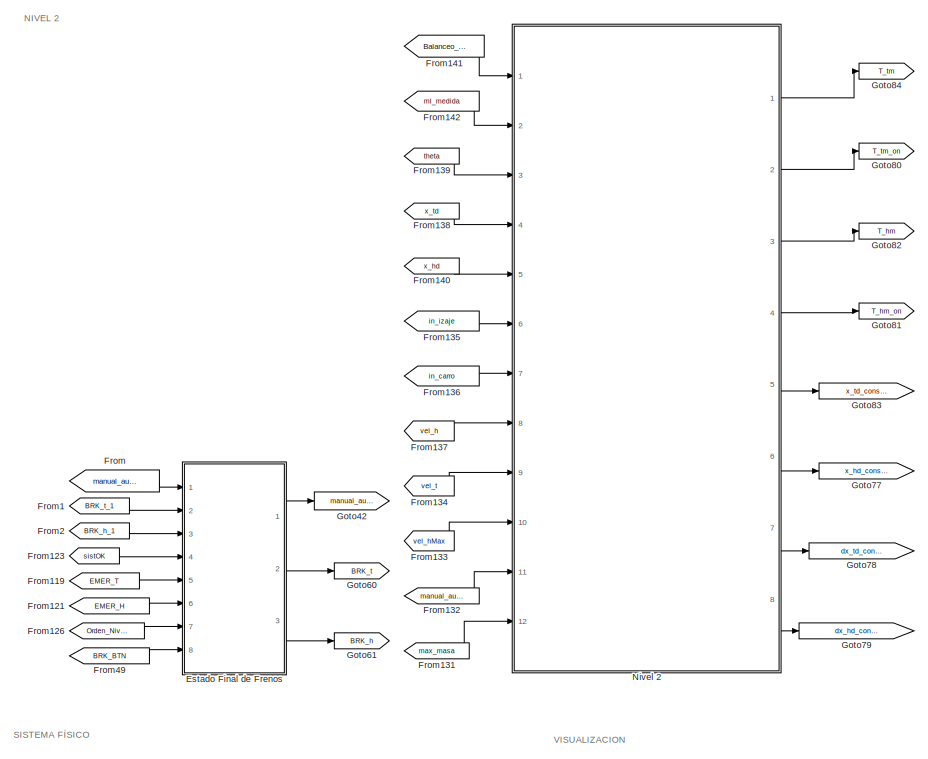
[diagram: root canvas - part 1/6, top center region]
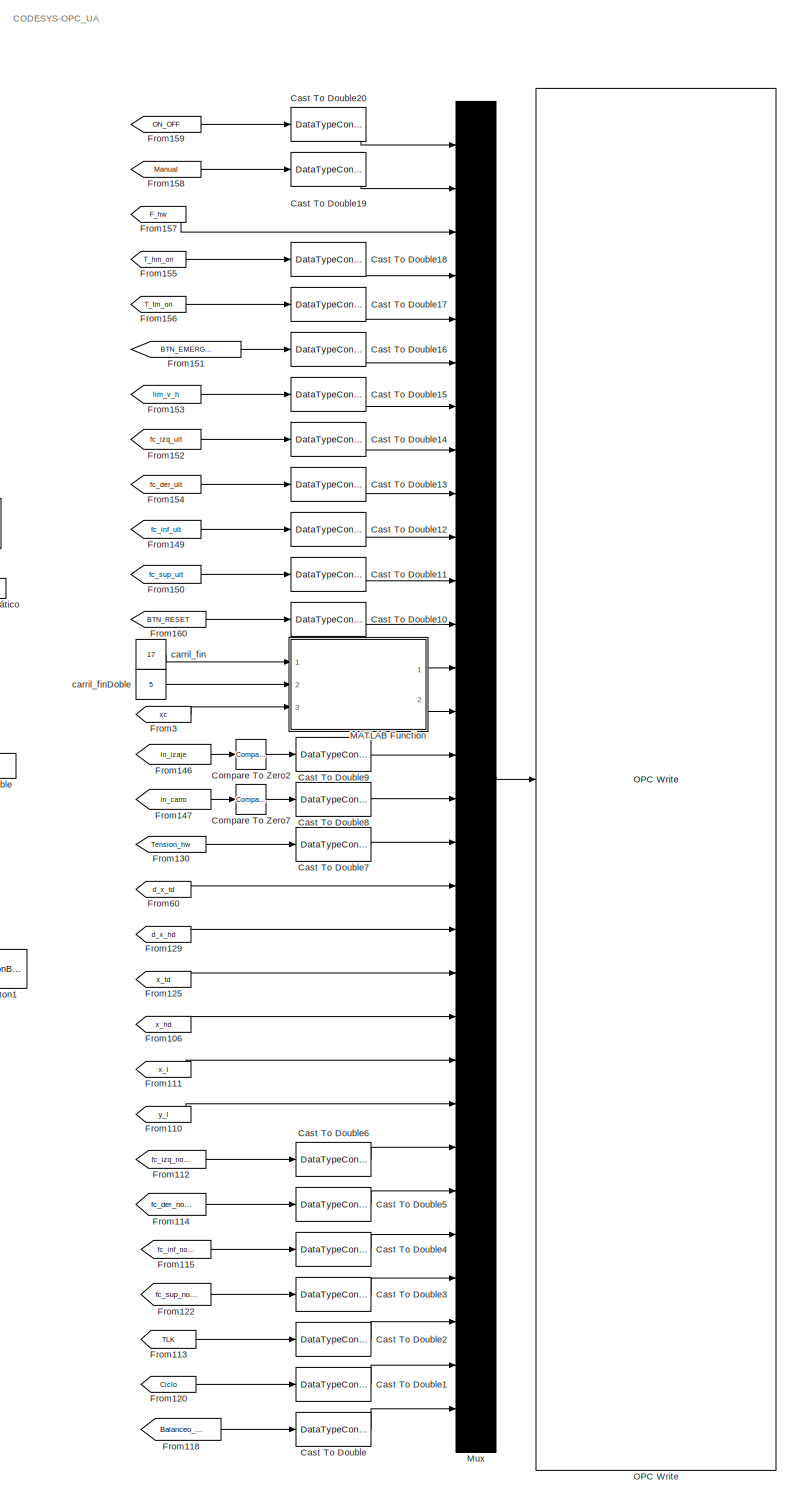
[diagram: root canvas - part 2/6, left side, full height]
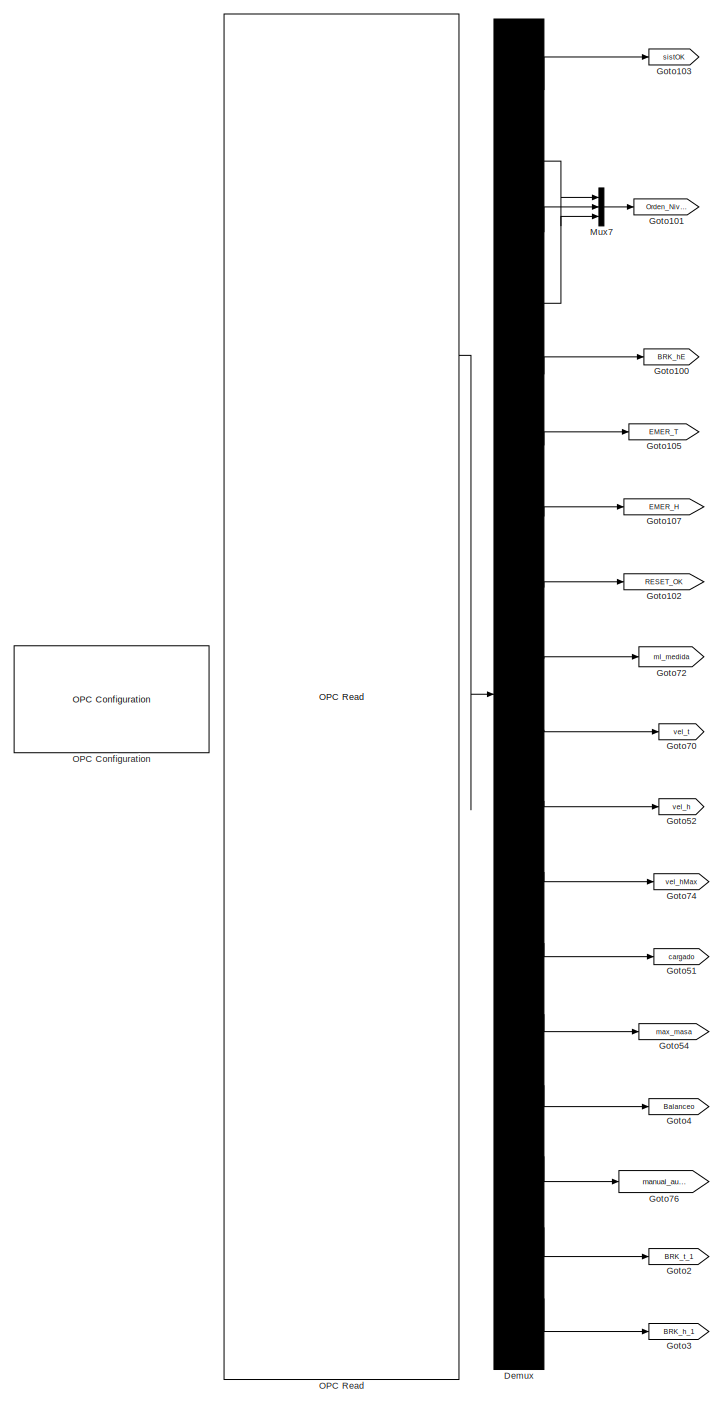
[diagram: root canvas - part 3/6, left side, full height]
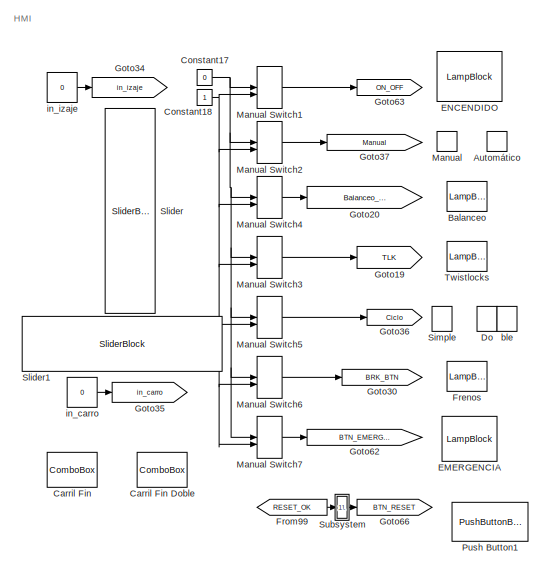
[diagram: root canvas - part 4/6, middle left region]
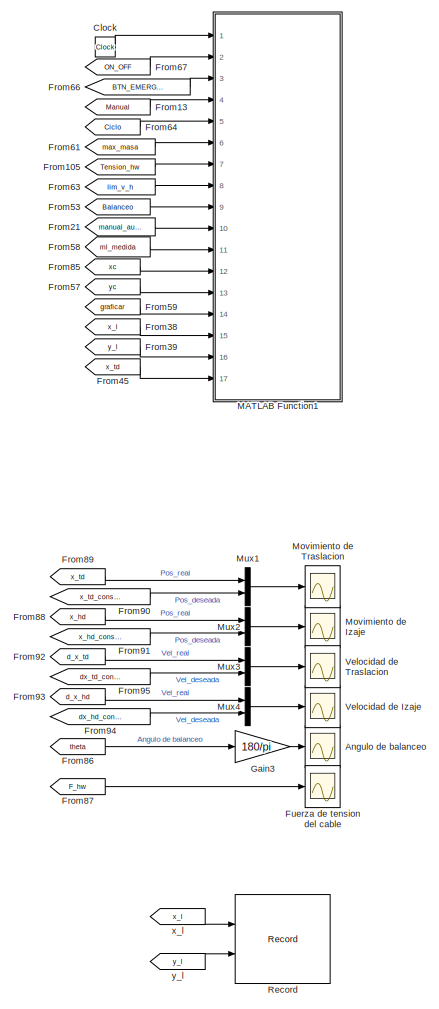
[diagram: root canvas - part 5/6, bottom right region]
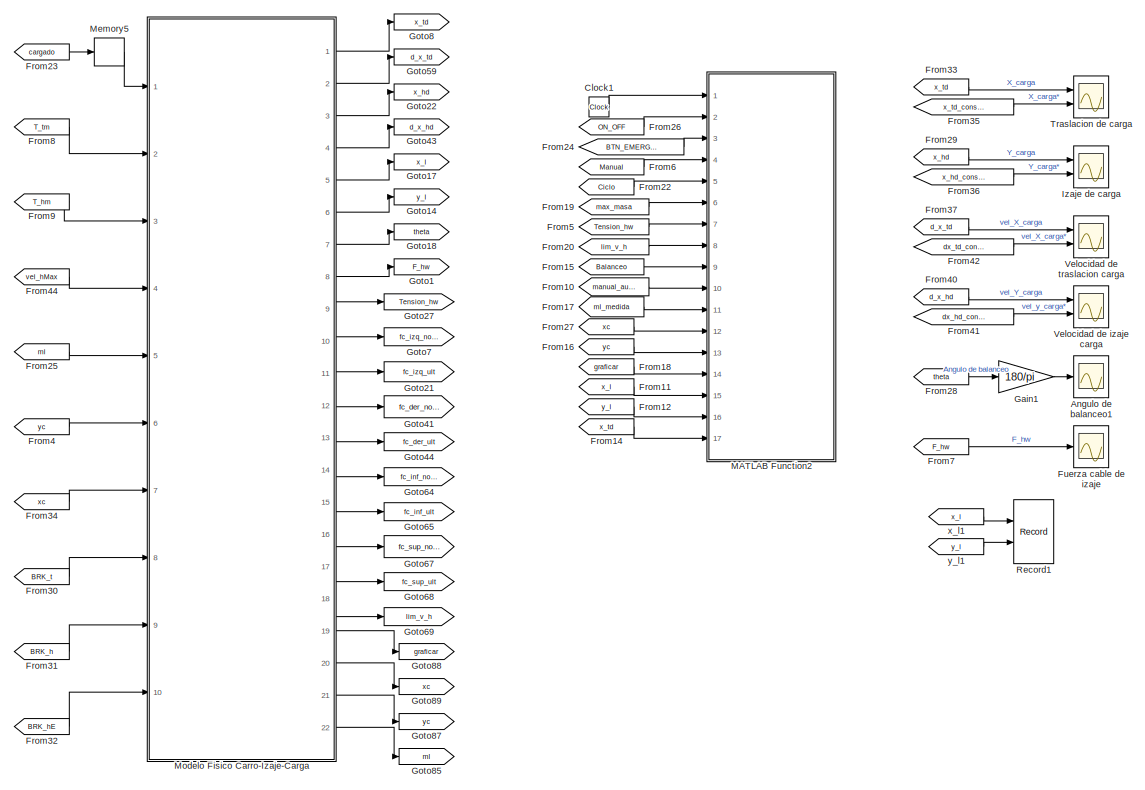
[diagram: root canvas - part 6/6, central region]
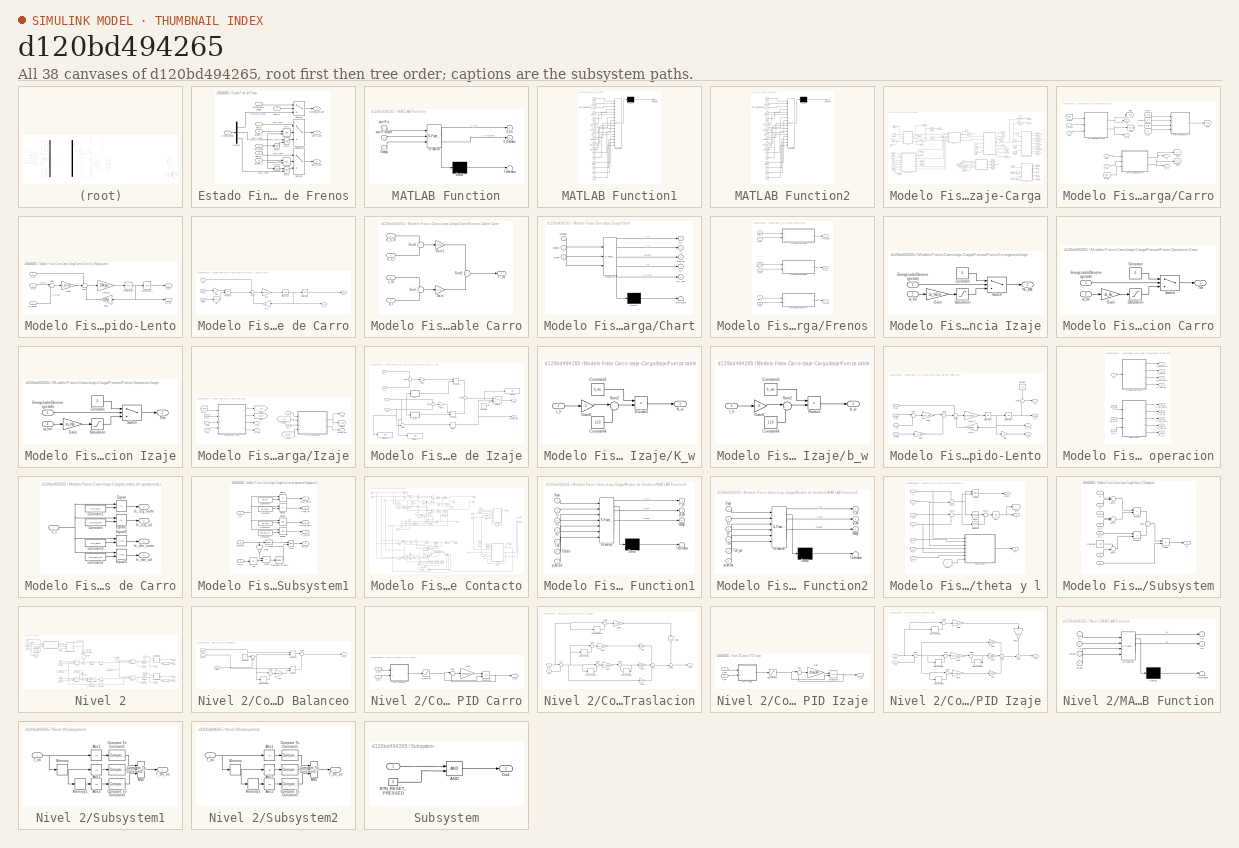
[diagram: thumbnail index - all 38 canvases of the model, root first then tree order]
MODEL slx_d120bd494265
KIND model
CONFIG AbsTol = auto
CONFIG EnableMultiTasking = off
CONFIG FixedStep = auto
CONFIG MaxStep = auto
CONFIG MinStep = 1e-4
CONFIG RelTol = auto
CONFIG SampleTimeConstraint = Unconstrained
CONFIG SolverName = ode23
CONFIG StartTime = 0.0
CONFIG StopTime = inf
BLOCK [LampBlock]   Do
  LabelPosition = Hide
BLOCK [Scope] Angulo de balanceo
  Commented = on
  Floating = off
  NameLocation = right
  NumInputPorts = 1
  Ports = [1]
  ScopeSpecificationString = Simulink.scopes.TimeScopeBlockCfg('CurrentConfiguration', extmgr.ConfigurationSet(extmgr.Configuration('Core','General UI',true,'FigureColor',[1 1 1]),extmgr.Configuration('Core','Source UI',true),extmgr.Configuration('Sources','WiredSimulink',true,'DataLoggingVariableName','ScopeData6'),extmgr.Configuration('Visuals','Time Domain',true,'SerializedDisplays',{struct('MinYLimReal','-4.46639','MaxYLi...<+1708ch>
BLOCK [Scope] Angulo de balanceo1
  Floating = off
  NumInputPorts = 1
  Ports = [1]
  ScopeSpecificationString = Simulink.scopes.TimeScopeBlockCfg('CurrentConfiguration', extmgr.ConfigurationSet(extmgr.Configuration('Core','General UI',true,'FigureColor',[1 1 1]),extmgr.Configuration('Core','Source UI',true),extmgr.Configuration('Sources','WiredSimulink',true,'DataLoggingVariableName','ScopeData1'),extmgr.Configuration('Visuals','Time Domain',true,'SerializedDisplays',{struct('MinYLimReal','-8.79821','MaxYLi...<+1807ch>
BLOCK [LampBlock] Automático
  LabelPosition = Hide
BLOCK [LampBlock] Balanceo
  LabelPosition = Hide
BLOCK [ComboBox] Carril Fin
  LabelPosition = Hide
  SelectedLabel = 17
BLOCK [ComboBox] Carril Fin Doble
  LabelPosition = Hide
  SelectedLabel = 5
BLOCK [DataTypeConversion] Cast To Double
  OutDataTypeStr = double
  RndMeth = Floor
  SaturateOnIntegerOverflow = off
BLOCK [DataTypeConversion] Cast To Double1
  OutDataTypeStr = double
  RndMeth = Floor
  SaturateOnIntegerOverflow = off
BLOCK [DataTypeConversion] Cast To Double10
  OutDataTypeStr = double
  RndMeth = Floor
  SaturateOnIntegerOverflow = off
BLOCK [DataTypeConversion] Cast To Double11
  OutDataTypeStr = double
  RndMeth = Floor
  SaturateOnIntegerOverflow = off
BLOCK [DataTypeConversion] Cast To Double12
  OutDataTypeStr = double
  RndMeth = Floor
  SaturateOnIntegerOverflow = off
BLOCK [DataTypeConversion] Cast To Double13
  OutDataTypeStr = double
  RndMeth = Floor
  SaturateOnIntegerOverflow = off
BLOCK [DataTypeConversion] Cast To Double14
  OutDataTypeStr = double
  RndMeth = Floor
  SaturateOnIntegerOverflow = off
BLOCK [DataTypeConversion] Cast To Double15
  OutDataTypeStr = double
  RndMeth = Floor
  SaturateOnIntegerOverflow = off
BLOCK [DataTypeConversion] Cast To Double16
  OutDataTypeStr = double
  RndMeth = Floor
  SaturateOnIntegerOverflow = off
BLOCK [DataTypeConversion] Cast To Double17
  OutDataTypeStr = double
  RndMeth = Floor
  SaturateOnIntegerOverflow = off
BLOCK [DataTypeConversion] Cast To Double18
  OutDataTypeStr = double
  RndMeth = Floor
  SaturateOnIntegerOverflow = off
BLOCK [DataTypeConversion] Cast To Double19
  OutDataTypeStr = double
  RndMeth = Floor
  SaturateOnIntegerOverflow = off
BLOCK [DataTypeConversion] Cast To Double2
  OutDataTypeStr = double
  RndMeth = Floor
  SaturateOnIntegerOverflow = off
BLOCK [DataTypeConversion] Cast To Double20
  OutDataTypeStr = double
  RndMeth = Floor
  SaturateOnIntegerOverflow = off
BLOCK [DataTypeConversion] Cast To Double3
  OutDataTypeStr = double
  RndMeth = Floor
  SaturateOnIntegerOverflow = off
BLOCK [DataTypeConversion] Cast To Double4
  OutDataTypeStr = double
  RndMeth = Floor
  SaturateOnIntegerOverflow = off
BLOCK [DataTypeConversion] Cast To Double5
  OutDataTypeStr = double
  RndMeth = Floor
  SaturateOnIntegerOverflow = off
BLOCK [DataTypeConversion] Cast To Double6
  OutDataTypeStr = double
  RndMeth = Floor
  SaturateOnIntegerOverflow = off
BLOCK [DataTypeConversion] Cast To Double7
  OutDataTypeStr = double
  RndMeth = Floor
  SaturateOnIntegerOverflow = off
BLOCK [DataTypeConversion] Cast To Double8
  OutDataTypeStr = double
  RndMeth = Floor
  SaturateOnIntegerOverflow = off
BLOCK [DataTypeConversion] Cast To Double9
  OutDataTypeStr = double
  RndMeth = Floor
  SaturateOnIntegerOverflow = off
BLOCK [Clock] Clock
  Commented = on
BLOCK [Clock] Clock1
BLOCK [Reference] Compare To Zero2  REF=simulink/Logic and Bit
Operations/Compare
To Zero
  Ports = [1, 1]
  SourceBlock = simulink/Logic and Bit\nOperations/Compare\nTo Zero
  SourceProductBaseCode = SL
  SourceType = Compare To Zero
BLOCK [Reference] Compare To Zero7  REF=simulink/Logic and Bit
Operations/Compare
To Zero
  Ports = [1, 1]
  SourceBlock = simulink/Logic and Bit\nOperations/Compare\nTo Zero
  SourceProductBaseCode = SL
  SourceType = Compare To Zero
BLOCK [Constant] Constant17
  Value = 0
BLOCK [Constant] Constant18
BLOCK [Demux] Demux
  Outputs = 18
  Ports = [1, 18]
BLOCK [LampBlock] EMERGENCIA
  LabelPosition = Hide
BLOCK [LampBlock] ENCENDIDO
  LabelPosition = Hide
BLOCK [SubSystem] Estado Final de Frenos
  Ports = [8, 3]
  RequestExecContextInheritance = off
BLOCK [Inport] Estado Final de Frenos/BRK_BTN
  Port = 8
BLOCK [Inport] Estado Final de Frenos/BRK_h
  Port = 3
BLOCK [Outport] Estado Final de Frenos/BRK_h_def
  Port = 3
BLOCK [Inport] Estado Final de Frenos/BRK_t
  Port = 2
BLOCK [Outport] Estado Final de Frenos/BRK_t_def
  Port = 2
BLOCK [Demux] Estado Final de Frenos/Demux
  Outputs = 3
  Ports = [1, 3]
BLOCK [Inport] Estado Final de Frenos/EMER_T
  Port = 5
BLOCK [Inport] Estado Final de Frenos/EMER_h
  Port = 6
BLOCK [Logic] Estado Final de Frenos/NOT
  AllPortsSameDT = off
  IconShape = distinctive
  Operator = NOT
  OutDataTypeStr = boolean
  Ports = [1, 1]
BLOCK [Logic] Estado Final de Frenos/NOT1
  AllPortsSameDT = off
  IconShape = distinctive
  Operator = NOT
  OutDataTypeStr = boolean
  Ports = [1, 1]
BLOCK [Logic] Estado Final de Frenos/OR
  AllPortsSameDT = off
  IconShape = distinctive
  Operator = XOR
  OutDataTypeStr = boolean
  Ports = [2, 1]
BLOCK [Logic] Estado Final de Frenos/OR1
  AllPortsSameDT = off
  IconShape = distinctive
  Operator = XOR
  OutDataTypeStr = boolean
  Ports = [2, 1]
BLOCK [Logic] Estado Final de Frenos/OR2
  AllPortsSameDT = off
  IconShape = distinctive
  OutDataTypeStr = boolean
  Ports = [2, 1]
BLOCK [Logic] Estado Final de Frenos/OR3
  AllPortsSameDT = off
  IconShape = distinctive
  OutDataTypeStr = boolean
  Ports = [2, 1]
BLOCK [Inport] Estado Final de Frenos/Orden_Nivel0
  Port = 7
BLOCK [Switch] Estado Final de Frenos/Switch2
  Criteria = u2 ~= 0
  InputSameDT = off
  SaturateOnIntegerOverflow = off
BLOCK [Switch] Estado Final de Frenos/Switch3
  Criteria = u2 ~= 0
  InputSameDT = off
  SaturateOnIntegerOverflow = off
BLOCK [Switch] Estado Final de Frenos/Switch4
  Criteria = u2 ~= 0
  InputSameDT = off
  SaturateOnIntegerOverflow = off
BLOCK [Inport] Estado Final de Frenos/manual_auto_Nivel1
BLOCK [Outport] Estado Final de Frenos/manual_auto_def
BLOCK [Inport] Estado Final de Frenos/sistOK
  Port = 4
BLOCK [LampBlock] Frenos
  LabelPosition = Hide
BLOCK [From] From
  GotoTag = manual_auto_1
BLOCK [From] From1
  GotoTag = BRK_t_1
BLOCK [From] From10
  GotoTag = manual_auto
BLOCK [From] From105
  Commented = on
  GotoTag = Tension_hw
BLOCK [From] From106
  GotoTag = x_hd
BLOCK [From] From11
  GotoTag = x_l
BLOCK [From] From110
  GotoTag = y_l
BLOCK [From] From111
  GotoTag = x_l
BLOCK [From] From112
  GotoTag = fc_izq_norm
BLOCK [From] From113
  GotoTag = TLK
BLOCK [From] From114
  GotoTag = fc_der_norm
BLOCK [From] From115
  GotoTag = fc_inf_norm
BLOCK [From] From118
  GotoTag = Balanceo_ctrl
BLOCK [From] From119
  GotoTag = EMER_T
BLOCK [From] From12
  GotoTag = y_l
BLOCK [From] From120
  GotoTag = Ciclo
BLOCK [From] From121
  GotoTag = EMER_H
BLOCK [From] From122
  GotoTag = fc_sup_norm
BLOCK [From] From123
  GotoTag = sistOK
  TagVisibility = global
BLOCK [From] From125
  GotoTag = x_td
BLOCK [From] From126
  GotoTag = Orden_Nivel0
  TagVisibility = global
BLOCK [From] From129
  GotoTag = d_x_hd
BLOCK [From] From13
  Commented = on
  GotoTag = Manual
BLOCK [From] From130
  GotoTag = Tension_hw
BLOCK [From] From131
  GotoTag = max_masa
BLOCK [From] From132
  GotoTag = manual_auto
BLOCK [From] From133
  GotoTag = vel_hMax
BLOCK [From] From134
  GotoTag = vel_t
BLOCK [From] From135
  GotoTag = in_izaje
BLOCK [From] From136
  GotoTag = in_carro
BLOCK [From] From137
  GotoTag = vel_h
BLOCK [From] From138
  GotoTag = x_td
BLOCK [From] From139
  GotoTag = theta
BLOCK [From] From14
  GotoTag = x_td
BLOCK [From] From140
  GotoTag = x_hd
BLOCK [From] From141
  GotoTag = Balanceo_ctrl
BLOCK [From] From142
  GotoTag = ml_medida
BLOCK [From] From146
  GotoTag = in_izaje
BLOCK [From] From147
  GotoTag = in_carro
BLOCK [From] From149
  GotoTag = fc_inf_ult
BLOCK [From] From15
  GotoTag = Balanceo
BLOCK [From] From150
  GotoTag = fc_sup_ult
BLOCK [From] From151
  GotoTag = BTN_EMERGENCIA
BLOCK [From] From152
  GotoTag = fc_izq_ult
BLOCK [From] From153
  GotoTag = lim_v_h
BLOCK [From] From154
  GotoTag = fc_der_ult
BLOCK [From] From155
  GotoTag = T_hm_on
BLOCK [From] From156
  GotoTag = T_tm_on
BLOCK [From] From157
  GotoTag = F_hw
BLOCK [From] From158
  GotoTag = Manual
BLOCK [From] From159
  GotoTag = ON_OFF
BLOCK [From] From16
  GotoTag = yc
BLOCK [From] From160
  GotoTag = BTN_RESET
BLOCK [From] From17
  GotoTag = ml_medida
BLOCK [From] From18
  GotoTag = graficar
BLOCK [From] From19
  GotoTag = max_masa
BLOCK [From] From2
  GotoTag = BRK_h_1
BLOCK [From] From20
  GotoTag = lim_v_h
BLOCK [From] From21
  Commented = on
  GotoTag = manual_auto
BLOCK [From] From22
  GotoTag = Ciclo
BLOCK [From] From23
  GotoTag = cargado
BLOCK [From] From24
  GotoTag = BTN_EMERGENCIA
BLOCK [From] From25
  GotoTag = ml
BLOCK [From] From26
  GotoTag = ON_OFF
BLOCK [From] From27
  GotoTag = xc
BLOCK [From] From28
  GotoTag = theta
BLOCK [From] From29
  GotoTag = x_hd
BLOCK [From] From3
  GotoTag = xc
BLOCK [From] From30
  GotoTag = BRK_t
BLOCK [From] From31
  GotoTag = BRK_h
BLOCK [From] From32
  GotoTag = BRK_hE
BLOCK [From] From33
  GotoTag = x_td
BLOCK [From] From34
  GotoTag = xc
BLOCK [From] From35
  GotoTag = x_td_consigna
BLOCK [From] From36
  GotoTag = x_hd_consigna
BLOCK [From] From37
  GotoTag = d_x_td
BLOCK [From] From38
  Commented = on
  GotoTag = x_l
BLOCK [From] From39
  Commented = on
  GotoTag = y_l
BLOCK [From] From4
  GotoTag = yc
BLOCK [From] From40
  GotoTag = d_x_hd
BLOCK [From] From41
  GotoTag = dx_hd_consigna
BLOCK [From] From42
  GotoTag = dx_td_consigna
BLOCK [From] From44
  GotoTag = vel_hMax
BLOCK [From] From45
  Commented = on
  GotoTag = x_td
BLOCK [From] From49
  GotoTag = BRK_BTN
BLOCK [From] From5
  GotoTag = Tension_hw
BLOCK [From] From53
  Commented = on
  GotoTag = Balanceo
BLOCK [From] From57
  Commented = on
  GotoTag = yc
BLOCK [From] From58
  Commented = on
  GotoTag = ml_medida
BLOCK [From] From59
  Commented = on
  GotoTag = graficar
BLOCK [From] From6
  GotoTag = Manual
BLOCK [From] From60
  GotoTag = d_x_td
BLOCK [From] From61
  Commented = on
  GotoTag = max_masa
BLOCK [From] From63
  Commented = on
  GotoTag = lim_v_h
BLOCK [From] From64
  Commented = on
  GotoTag = Ciclo
BLOCK [From] From66
  Commented = on
  GotoTag = BTN_EMERGENCIA
BLOCK [From] From67
  Commented = on
  GotoTag = ON_OFF
BLOCK [From] From7
  GotoTag = F_hw
BLOCK [From] From8
  GotoTag = T_tm
BLOCK [From] From85
  Commented = on
  GotoTag = xc
BLOCK [From] From86
  Commented = on
  GotoTag = theta
BLOCK [From] From87
  Commented = on
  GotoTag = F_hw
BLOCK [From] From88
  Commented = on
  GotoTag = x_hd
BLOCK [From] From89
  Commented = on
  GotoTag = x_td
BLOCK [From] From9
  GotoTag = T_hm
BLOCK [From] From90
  Commented = on
  GotoTag = x_td_consigna
BLOCK [From] From91
  Commented = on
  GotoTag = x_hd_consigna
BLOCK [From] From92
  Commented = on
  GotoTag = d_x_td
BLOCK [From] From93
  Commented = on
  GotoTag = d_x_hd
BLOCK [From] From94
  Commented = on
  GotoTag = dx_hd_consigna
BLOCK [From] From95
  Commented = on
  GotoTag = dx_td_consigna
BLOCK [From] From99
  GotoTag = RESET_OK
BLOCK [Scope] Fuerza cable de izaje
  Floating = off
  NumInputPorts = 1
  Ports = [1]
  ScopeSpecificationString = Simulink.scopes.TimeScopeBlockCfg('CurrentConfiguration', extmgr.ConfigurationSet(extmgr.Configuration('Core','General UI',true,'FigureColor',[1 1 1]),extmgr.Configuration('Core','Source UI',true),extmgr.Configuration('Sources','WiredSimulink',true,'DataLoggingVariableName','ScopeData2'),extmgr.Configuration('Visuals','Time Domain',true,'SerializedDisplays',{struct('MinYLimReal','-8.79821','MaxYLi...<+1807ch>
BLOCK [Scope] Fuerza de tension del cable
  Commented = on
  Floating = off
  NameLocation = right
  NumInputPorts = 1
  Ports = [1]
  ScopeSpecificationString = Simulink.scopes.TimeScopeBlockCfg('CurrentConfiguration', extmgr.ConfigurationSet(extmgr.Configuration('Core','General UI',true,'FigureColor',[1 1 1]),extmgr.Configuration('Core','Source UI',true),extmgr.Configuration('Sources','WiredSimulink',true,'DataLoggingVariableName','ScopeData7'),extmgr.Configuration('Visuals','Time Domain',true,'SerializedDisplays',{struct('MinYLimReal','-147892.68248','M...<+1759ch>
BLOCK [Gain] Gain1
  Gain = 180/pi
BLOCK [Gain] Gain3
  Commented = on
  Gain = 180/pi
BLOCK [Goto] Goto1
  GotoTag = F_hw
BLOCK [Goto] Goto100
  GotoTag = BRK_hE
BLOCK [Goto] Goto101
  GotoTag = Orden_Nivel0
  TagVisibility = global
BLOCK [Goto] Goto102
  GotoTag = RESET_OK
BLOCK [Goto] Goto103
  GotoTag = sistOK
  TagVisibility = global
BLOCK [Goto] Goto105
  GotoTag = EMER_T
BLOCK [Goto] Goto107
  GotoTag = EMER_H
BLOCK [Goto] Goto14
  GotoTag = y_l
BLOCK [Goto] Goto17
  GotoTag = x_l
BLOCK [Goto] Goto18
  GotoTag = theta
BLOCK [Goto] Goto19
  GotoTag = TLK
BLOCK [Goto] Goto2
  GotoTag = BRK_t_1
BLOCK [Goto] Goto20
  GotoTag = Balanceo_ctrl
BLOCK [Goto] Goto21
  GotoTag = fc_izq_ult
BLOCK [Goto] Goto22
  GotoTag = x_hd
BLOCK [Goto] Goto27
  GotoTag = Tension_hw
BLOCK [Goto] Goto3
  GotoTag = BRK_h_1
BLOCK [Goto] Goto30
  GotoTag = BRK_BTN
BLOCK [Goto] Goto34
  GotoTag = in_izaje
BLOCK [Goto] Goto35
  GotoTag = in_carro
BLOCK [Goto] Goto36
  GotoTag = Ciclo
BLOCK [Goto] Goto37
  GotoTag = Manual
BLOCK [Goto] Goto4
  GotoTag = Balanceo
BLOCK [Goto] Goto41
  GotoTag = fc_der_norm
BLOCK [Goto] Goto42
  GotoTag = manual_auto
BLOCK [Goto] Goto43
  GotoTag = d_x_hd
BLOCK [Goto] Goto44
  GotoTag = fc_der_ult
BLOCK [Goto] Goto51
  GotoTag = cargado
BLOCK [Goto] Goto52
  GotoTag = vel_h
BLOCK [Goto] Goto54
  GotoTag = max_masa
BLOCK [Goto] Goto59
  GotoTag = d_x_td
BLOCK [Goto] Goto60
  GotoTag = BRK_t
BLOCK [Goto] Goto61
  GotoTag = BRK_h
BLOCK [Goto] Goto62
  GotoTag = BTN_EMERGENCIA
BLOCK [Goto] Goto63
  GotoTag = ON_OFF
BLOCK [Goto] Goto64
  GotoTag = fc_inf_norm
BLOCK [Goto] Goto65
  GotoTag = fc_inf_ult
BLOCK [Goto] Goto66
  GotoTag = BTN_RESET
BLOCK [Goto] Goto67
  GotoTag = fc_sup_norm
BLOCK [Goto] Goto68
  GotoTag = fc_sup_ult
BLOCK [Goto] Goto69
  GotoTag = lim_v_h
BLOCK [Goto] Goto7
  GotoTag = fc_izq_norm
BLOCK [Goto] Goto70
  GotoTag = vel_t
BLOCK [Goto] Goto72
  GotoTag = ml_medida
BLOCK [Goto] Goto74
  GotoTag = vel_hMax
BLOCK [Goto] Goto76
  GotoTag = manual_auto_1
BLOCK [Goto] Goto77
  GotoTag = x_hd_consigna
BLOCK [Goto] Goto78
  GotoTag = dx_td_consigna
BLOCK [Goto] Goto79
  GotoTag = dx_hd_consigna
BLOCK [Goto] Goto8
  GotoTag = x_td
BLOCK [Goto] Goto80
  GotoTag = T_tm_on
BLOCK [Goto] Goto81
  GotoTag = T_hm_on
BLOCK [Goto] Goto82
  GotoTag = T_hm
BLOCK [Goto] Goto83
  GotoTag = x_td_consigna
BLOCK [Goto] Goto84
  GotoTag = T_tm
BLOCK [Goto] Goto85
  GotoTag = ml
BLOCK [Goto] Goto87
  GotoTag = yc
BLOCK [Goto] Goto88
  GotoTag = graficar
BLOCK [Goto] Goto89
  GotoTag = xc
BLOCK [Scope] Izaje de carga
  Floating = off
  NumInputPorts = 2
  Ports = [2]
  ScopeSpecificationString = Simulink.scopes.TimeScopeBlockCfg('CurrentConfiguration', extmgr.ConfigurationSet(extmgr.Configuration('Core','General UI',true,'FigureColor',[1 1 1]),extmgr.Configuration('Core','Source UI',true),extmgr.Configuration('Sources','WiredSimulink',true,'DataLoggingVariableName','ScopeData3'),extmgr.Configuration('Visuals','Time Domain',true,'SerializedDisplays',{struct('MinYLimReal','-2.74079','MaxYLi...<+1788ch>
BLOCK [SubSystem] MATLAB Function
  ErrorFcn = Stateflow.Translate.translate
  PermitHierarchicalResolution = ExplicitOnly
  Ports = [3, 2]
  RequestExecContextInheritance = off
  SFBlockType = MATLAB Function
  TreatAsAtomicUnit = on
BLOCK [Demux] MATLAB Function/ Demux 
  Outputs = 1
  Ports = [1, 1]
BLOCK [S-Function] MATLAB Function/ SFunction 
  EnableBusSupport = on
  FunctionName = sf_sfun
  PortCounts = [3 3]
  Ports = [3, 3]
  SFcnIsStateOwnerBlock = off
  SFunctionDeploymentMode = off
  Tag = Stateflow S-Function 1
BLOCK [Terminator] MATLAB Function/ Terminator 
BLOCK [Outport] MATLAB Function/X_fin
BLOCK [Outport] MATLAB Function/X_finDoble
  Port = 2
BLOCK [Inport] MATLAB Function/Xcarga
  Port = 3
BLOCK [Inport] MATLAB Function/carrilFin
BLOCK [Inport] MATLAB Function/carrilFinDoble
  Port = 2
BLOCK [SubSystem] MATLAB Function1
  Commented = on
  ErrorFcn = Stateflow.Translate.translate
  PermitHierarchicalResolution = ExplicitOnly
  Ports = [17]
  RequestExecContextInheritance = off
  SFBlockType = MATLAB Function
  TreatAsAtomicUnit = on
BLOCK [Demux] MATLAB Function1/ Demux 
  Outputs = 1
  Ports = [1, 1]
BLOCK [S-Function] MATLAB Function1/ SFunction 
  EnableBusSupport = on
  FunctionName = sf_sfun
  PortCounts = [17 1]
  Ports = [17, 1]
  SFcnIsStateOwnerBlock = off
  SFunctionDeploymentMode = off
  Tag = Stateflow S-Function 13
BLOCK [Terminator] MATLAB Function1/ Terminator 
BLOCK [Inport] MATLAB Function1/BTN_EMERGENCIA
  Port = 3
BLOCK [Inport] MATLAB Function1/Balanceo
  Port = 9
BLOCK [Inport] MATLAB Function1/Ciclo
  Port = 5
BLOCK [Inport] MATLAB Function1/Manual
  Port = 4
BLOCK [Inport] MATLAB Function1/ON_OFF
  Port = 2
BLOCK [Inport] MATLAB Function1/Tension_hw
  Port = 7
BLOCK [Inport] MATLAB Function1/clock
BLOCK [Inport] MATLAB Function1/graficar
  Port = 14
BLOCK [Inport] MATLAB Function1/lim_v_h
  Port = 8
BLOCK [Inport] MATLAB Function1/manual_auto
  Port = 10
BLOCK [Inport] MATLAB Function1/max_masa
  Port = 6
BLOCK [Inport] MATLAB Function1/ml_medida
  Port = 11
BLOCK [Inport] MATLAB Function1/x_l
  Port = 15
BLOCK [Inport] MATLAB Function1/x_td
  Port = 17
BLOCK [Inport] MATLAB Function1/xc
  Port = 12
BLOCK [Inport] MATLAB Function1/y_l
  Port = 16
BLOCK [Inport] MATLAB Function1/yc
  Port = 13
BLOCK [SubSystem] MATLAB Function2
  ErrorFcn = Stateflow.Translate.translate
  PermitHierarchicalResolution = ExplicitOnly
  Ports = [17]
  RequestExecContextInheritance = off
  SFBlockType = MATLAB Function
  TreatAsAtomicUnit = on
BLOCK [Demux] MATLAB Function2/ Demux 
  Outputs = 1
  Ports = [1, 1]
BLOCK [S-Function] MATLAB Function2/ SFunction 
  EnableBusSupport = on
  FunctionName = sf_sfun
  PortCounts = [17 1]
  Ports = [17, 1]
  SFcnIsStateOwnerBlock = off
  SFunctionDeploymentMode = off
  Tag = Stateflow S-Function 3
BLOCK [Terminator] MATLAB Function2/ Terminator 
BLOCK [Inport] MATLAB Function2/BTN_EMERGENCIA
  Port = 3
BLOCK [Inport] MATLAB Function2/Balanceo
  Port = 9
BLOCK [Inport] MATLAB Function2/Ciclo
  Port = 5
BLOCK [Inport] MATLAB Function2/Manual
  Port = 4
BLOCK [Inport] MATLAB Function2/ON_OFF
  Port = 2
BLOCK [Inport] MATLAB Function2/Tension_hw
  Port = 7
BLOCK [Inport] MATLAB Function2/clock
BLOCK [Inport] MATLAB Function2/graficar
  Port = 14
BLOCK [Inport] MATLAB Function2/lim_v_h
  Port = 8
BLOCK [Inport] MATLAB Function2/manual_auto
  Port = 10
BLOCK [Inport] MATLAB Function2/max_masa
  Port = 6
BLOCK [Inport] MATLAB Function2/ml_medida
  Port = 11
BLOCK [Inport] MATLAB Function2/x_l
  Port = 15
BLOCK [Inport] MATLAB Function2/x_td
  Port = 17
BLOCK [Inport] MATLAB Function2/xc
  Port = 12
BLOCK [Inport] MATLAB Function2/y_l
  Port = 16
BLOCK [Inport] MATLAB Function2/yc
  Port = 13
BLOCK [LampBlock] Manual
  LabelPosition = Hide
BLOCK [ManualSwitch] Manual Switch1
  CurrentSetting = 0
BLOCK [ManualSwitch] Manual Switch2
  CurrentSetting = 0
BLOCK [ManualSwitch] Manual Switch3
BLOCK [ManualSwitch] Manual Switch4
  CurrentSetting = 0
BLOCK [ManualSwitch] Manual Switch5
BLOCK [ManualSwitch] Manual Switch6
BLOCK [ManualSwitch] Manual Switch7
BLOCK [Memory] Memory5
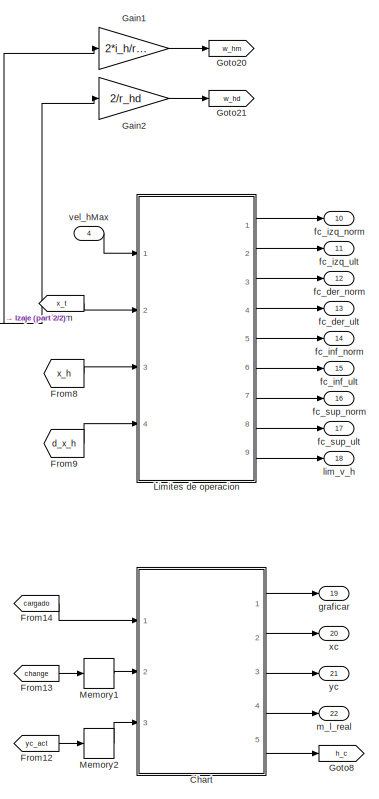
[diagram: Modelo Fisico Carro-Izaje-Carga - part 1/2, right side, full height]
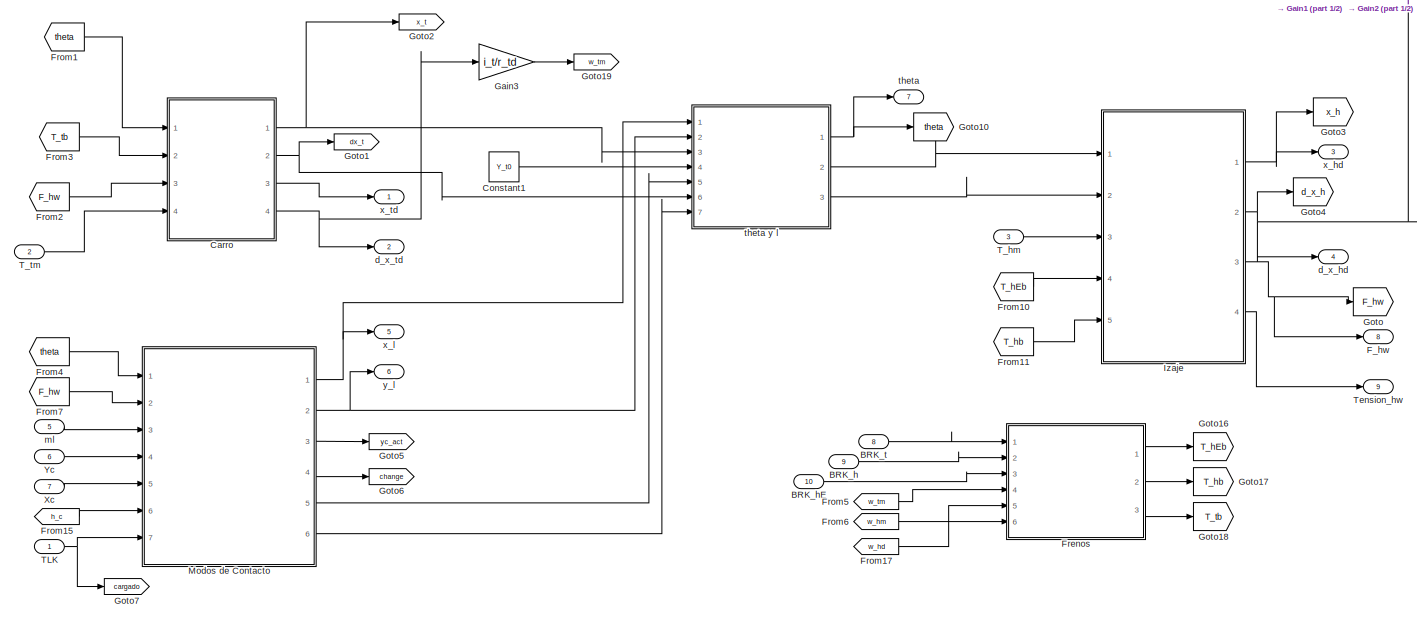
[diagram: Modelo Fisico Carro-Izaje-Carga - part 2/2, most of the canvas]
BLOCK [SubSystem] Modelo Fisico Carro-Izaje-Carga
  Ports = [10, 22]
  RequestExecContextInheritance = off
BLOCK [Inport] Modelo Fisico Carro-Izaje-Carga/BRK_h
  NameLocation = left
  Port = 9
BLOCK [Inport] Modelo Fisico Carro-Izaje-Carga/BRK_hE
  NameLocation = left
  Port = 10
BLOCK [Inport] Modelo Fisico Carro-Izaje-Carga/BRK_t
  NameLocation = left
  Port = 8
BLOCK [SubSystem] Modelo Fisico Carro-Izaje-Carga/Carro
  Ports = [4, 4]
  RequestExecContextInheritance = off
BLOCK [SubSystem] Modelo Fisico Carro-Izaje-Carga/Carro/Carro Eje Rápido-Lento
  Ports = [3, 2]
  RequestExecContextInheritance = off
BLOCK [Gain] Modelo Fisico Carro-Izaje-Carga/Carro/Carro Eje Rápido-Lento/1//Meq_t
  Gain = 1/M_eq_t
  NameLocation = top
BLOCK [Inport] Modelo Fisico Carro-Izaje-Carga/Carro/Carro Eje Rápido-Lento/F_tw
BLOCK [Gain] Modelo Fisico Carro-Izaje-Carga/Carro/Carro Eje Rápido-Lento/Gain3
  Gain = i_t/r_td
BLOCK [Integrator] Modelo Fisico Carro-Izaje-Carga/Carro/Carro Eje Rápido-Lento/Integrator2
  Ports = [1, 1]
BLOCK [Integrator] Modelo Fisico Carro-Izaje-Carga/Carro/Carro Eje Rápido-Lento/Integrator3
  InitialCondition = CI_t
  Ports = [1, 1]
BLOCK [Sum] Modelo Fisico Carro-Izaje-Carga/Carro/Carro Eje Rápido-Lento/Sum
  Inputs = |++
  Ports = [2, 1]
BLOCK [Sum] Modelo Fisico Carro-Izaje-Carga/Carro/Carro Eje Rápido-Lento/Sum1
  Inputs = -+-
  Ports = [3, 1]
BLOCK [Inport] Modelo Fisico Carro-Izaje-Carga/Carro/Carro Eje Rápido-Lento/T_tm
  Port = 3
BLOCK [Inport] Modelo Fisico Carro-Izaje-Carga/Carro/Carro Eje Rápido-Lento/Tt_brake
  Port = 2
BLOCK [Gain] Modelo Fisico Carro-Izaje-Carga/Carro/Carro Eje Rápido-Lento/beq_t
  Gain = b_eq_t
BLOCK [Outport] Modelo Fisico Carro-Izaje-Carga/Carro/Carro Eje Rápido-Lento/d_x_td
  Port = 2
BLOCK [Outport] Modelo Fisico Carro-Izaje-Carga/Carro/Carro Eje Rápido-Lento/x_td
BLOCK [SubSystem] Modelo Fisico Carro-Izaje-Carga/Carro/Carro y Cable de Carro
  Ports = [3, 2]
  RequestExecContextInheritance = off
BLOCK [Gain] Modelo Fisico Carro-Izaje-Carga/Carro/Carro y Cable de Carro/1//M_t
  Gain = 1/M_t
BLOCK [Inport] Modelo Fisico Carro-Izaje-Carga/Carro/Carro y Cable de Carro/F_hw
  Port = 2
BLOCK [Inport] Modelo Fisico Carro-Izaje-Carga/Carro/Carro y Cable de Carro/F_tw
  Port = 3
BLOCK [Gain] Modelo Fisico Carro-Izaje-Carga/Carro/Carro y Cable de Carro/Gain
  Gain = 2
BLOCK [Integrator] Modelo Fisico Carro-Izaje-Carga/Carro/Carro y Cable de Carro/Integrator
  InitialCondition = CI_t
  Ports = [1, 1]
BLOCK [Integrator] Modelo Fisico Carro-Izaje-Carga/Carro/Carro y Cable de Carro/Integrator2
  Ports = [1, 1]
BLOCK [Product] Modelo Fisico Carro-Izaje-Carga/Carro/Carro y Cable de Carro/Product
  Ports = [2, 1]
BLOCK [Trigonometry] Modelo Fisico Carro-Izaje-Carga/Carro/Carro y Cable de Carro/Sin
  Ports = [1, 1]
BLOCK [Sum] Modelo Fisico Carro-Izaje-Carga/Carro/Carro y Cable de Carro/Sum1
  Inputs = ++-
  Ports = [3, 1]
BLOCK [Gain] Modelo Fisico Carro-Izaje-Carga/Carro/Carro y Cable de Carro/b_t
  Gain = b_t
BLOCK [Outport] Modelo Fisico Carro-Izaje-Carga/Carro/Carro y Cable de Carro/d_x_t
  Port = 2
BLOCK [Inport] Modelo Fisico Carro-Izaje-Carga/Carro/Carro y Cable de Carro/theta
BLOCK [Outport] Modelo Fisico Carro-Izaje-Carga/Carro/Carro y Cable de Carro/x_t
BLOCK [Inport] Modelo Fisico Carro-Izaje-Carga/Carro/F_hw
  Port = 3
BLOCK [From] Modelo Fisico Carro-Izaje-Carga/Carro/From
  GotoTag = x_td
BLOCK [From] Modelo Fisico Carro-Izaje-Carga/Carro/From1
  GotoTag = x_t
BLOCK [From] Modelo Fisico Carro-Izaje-Carga/Carro/From2
  GotoTag = d_x_td
BLOCK [From] Modelo Fisico Carro-Izaje-Carga/Carro/From3
  GotoTag = d_x_t
BLOCK [From] Modelo Fisico Carro-Izaje-Carga/Carro/From4
  GotoTag = F_tw
BLOCK [From] Modelo Fisico Carro-Izaje-Carga/Carro/From5
  GotoTag = F_tw
BLOCK [SubSystem] Modelo Fisico Carro-Izaje-Carga/Carro/Fuerza Cable Carro
  Ports = [4, 1]
  RequestExecContextInheritance = off
BLOCK [Outport] Modelo Fisico Carro-Izaje-Carga/Carro/Fuerza Cable Carro/F_tw
BLOCK [Gain] Modelo Fisico Carro-Izaje-Carga/Carro/Fuerza Cable Carro/Gain
  Gain = k_tw
BLOCK [Gain] Modelo Fisico Carro-Izaje-Carga/Carro/Fuerza Cable Carro/Gain1
  Gain = b_tw
BLOCK [Sum] Modelo Fisico Carro-Izaje-Carga/Carro/Fuerza Cable Carro/Sum
  Inputs = +|-
  Ports = [2, 1]
BLOCK [Sum] Modelo Fisico Carro-Izaje-Carga/Carro/Fuerza Cable Carro/Sum1
  Inputs = +|-
  Ports = [2, 1]
BLOCK [Sum] Modelo Fisico Carro-Izaje-Carga/Carro/Fuerza Cable Carro/Sum2
  Inputs = +|+
  Ports = [2, 1]
BLOCK [Inport] Modelo Fisico Carro-Izaje-Carga/Carro/Fuerza Cable Carro/d_x_t
  Port = 2
BLOCK [Inport] Modelo Fisico Carro-Izaje-Carga/Carro/Fuerza Cable Carro/d_x_td
BLOCK [Inport] Modelo Fisico Carro-Izaje-Carga/Carro/Fuerza Cable Carro/x_t
  Port = 4
BLOCK [Inport] Modelo Fisico Carro-Izaje-Carga/Carro/Fuerza Cable Carro/x_td
  Port = 3
BLOCK [Goto] Modelo Fisico Carro-Izaje-Carga/Carro/Goto
  GotoTag = x_td
BLOCK [Goto] Modelo Fisico Carro-Izaje-Carga/Carro/Goto1
  GotoTag = x_t
BLOCK [Goto] Modelo Fisico Carro-Izaje-Carga/Carro/Goto2
  GotoTag = d_x_td
BLOCK [Goto] Modelo Fisico Carro-Izaje-Carga/Carro/Goto3
  GotoTag = d_x_t
BLOCK [Goto] Modelo Fisico Carro-Izaje-Carga/Carro/Goto4
  GotoTag = F_tw
BLOCK [Inport] Modelo Fisico Carro-Izaje-Carga/Carro/T_tm
  Port = 4
BLOCK [Inport] Modelo Fisico Carro-Izaje-Carga/Carro/Tt_brake
  Port = 2
BLOCK [Outport] Modelo Fisico Carro-Izaje-Carga/Carro/d_x_t
  Port = 2
BLOCK [Outport] Modelo Fisico Carro-Izaje-Carga/Carro/d_x_td
  Port = 4
BLOCK [Inport] Modelo Fisico Carro-Izaje-Carga/Carro/theta
BLOCK [Outport] Modelo Fisico Carro-Izaje-Carga/Carro/x_t
BLOCK [Outport] Modelo Fisico Carro-Izaje-Carga/Carro/x_td
  Port = 3
BLOCK [SubSystem] Modelo Fisico Carro-Izaje-Carga/Chart
  ErrorFcn = Stateflow.Translate.translate
  PermitHierarchicalResolution = ExplicitOnly
  PortSchema = {"entries":[{"content":{"sides":[{"content":{"connectorIds":["In1","In2","In3"]},"type":"ConnectorPlacement.EquallySpacedRectSide","uuid":"3e82a7c2-bf75-4f61-8ed8-4dc94ac63b2a"},{"content":{"connectorIds":["Out3","Out4","Out2","Out5","Out1"],"side":"RIGHT"},"type":"ConnectorPlacement.EquallySpacedRectSide","uuid":"3bda0d7b-f5b8-4b7e-98a5-641e146bfa09"},{"content":{"connectorIds":[],"side":"TOP"},"...<+280ch>
  Ports = [3, 5]
  RequestExecContextInheritance = off
  SFBlockType = Chart
  TreatAsAtomicUnit = on
BLOCK [Demux] Modelo Fisico Carro-Izaje-Carga/Chart/ Demux 
  Outputs = 1
  Ports = [1, 1]
BLOCK [S-Function] Modelo Fisico Carro-Izaje-Carga/Chart/ SFunction 
  EnableBusSupport = on
  FunctionName = sf_sfun
  Parameters = H_c,M_cMax,M_cMin,M_s,xc,yc
  PortCounts = [3 6]
  Ports = [3, 6]
  SFcnIsStateOwnerBlock = off
  SFunctionDeploymentMode = off
  Tag = Stateflow S-Function 11
BLOCK [Terminator] Modelo Fisico Carro-Izaje-Carga/Chart/ Terminator 
BLOCK [Inport] Modelo Fisico Carro-Izaje-Carga/Chart/cargado
BLOCK [Inport] Modelo Fisico Carro-Izaje-Carga/Chart/change
  Port = 2
BLOCK [Outport] Modelo Fisico Carro-Izaje-Carga/Chart/graficar
  Port = 3
BLOCK [Outport] Modelo Fisico Carro-Izaje-Carga/Chart/h_c
BLOCK [Outport] Modelo Fisico Carro-Izaje-Carga/Chart/m_l_real
  Port = 5
BLOCK [Outport] Modelo Fisico Carro-Izaje-Carga/Chart/x_c
  Port = 4
BLOCK [Outport] Modelo Fisico Carro-Izaje-Carga/Chart/y_c
  Port = 2
BLOCK [Inport] Modelo Fisico Carro-Izaje-Carga/Chart/yc_act
  Port = 3
BLOCK [Constant] Modelo Fisico Carro-Izaje-Carga/Constant1
  Value = Y_t0
BLOCK [Outport] Modelo Fisico Carro-Izaje-Carga/F_hw
  Port = 8
BLOCK [SubSystem] Modelo Fisico Carro-Izaje-Carga/Frenos
  Ports = [6, 3]
  RequestExecContextInheritance = off
BLOCK [Inport] Modelo Fisico Carro-Izaje-Carga/Frenos/BRK_h
  Port = 2
BLOCK [Inport] Modelo Fisico Carro-Izaje-Carga/Frenos/BRK_hE
  Port = 3
BLOCK [Inport] Modelo Fisico Carro-Izaje-Carga/Frenos/BRK_t
BLOCK [SubSystem] Modelo Fisico Carro-Izaje-Carga/Frenos/Freno Emergencia Izaje
  Ports = [2, 1]
  RequestExecContextInheritance = off
BLOCK [Constant] Modelo Fisico Carro-Izaje-Carga/Frenos/Freno Emergencia Izaje/Constant
  Value = 0
BLOCK [Inport] Modelo Fisico Carro-Izaje-Carga/Frenos/Freno Emergencia Izaje/Energizado//Desenergizado
  NameLocation = left
BLOCK [Gain] Modelo Fisico Carro-Izaje-Carga/Frenos/Freno Emergencia Izaje/Gain
  Gain = -b_hEb
BLOCK [Saturate] Modelo Fisico Carro-Izaje-Carga/Frenos/Freno Emergencia Izaje/Saturation
  LowerLimit = -T_hEbMax
  UpperLimit = T_hEbMax
BLOCK [Switch] Modelo Fisico Carro-Izaje-Carga/Frenos/Freno Emergencia Izaje/Switch
  Criteria = u2 ~= 0
  InputSameDT = off
  SaturateOnIntegerOverflow = off
BLOCK [Outport] Modelo Fisico Carro-Izaje-Carga/Frenos/Freno Emergencia Izaje/Th_EB
BLOCK [Inport] Modelo Fisico Carro-Izaje-Carga/Frenos/Freno Emergencia Izaje/w_hd
  NameLocation = left
  Port = 2
BLOCK [SubSystem] Modelo Fisico Carro-Izaje-Carga/Frenos/Freno Operacion Carro
  Ports = [2, 1]
  RequestExecContextInheritance = off
BLOCK [Constant] Modelo Fisico Carro-Izaje-Carga/Frenos/Freno Operacion Carro/Constant
  Value = 0
BLOCK [Inport] Modelo Fisico Carro-Izaje-Carga/Frenos/Freno Operacion Carro/Energizado//Desenergizado
  NameLocation = left
BLOCK [Gain] Modelo Fisico Carro-Izaje-Carga/Frenos/Freno Operacion Carro/Gain
  Gain = -b_tb
BLOCK [Saturate] Modelo Fisico Carro-Izaje-Carga/Frenos/Freno Operacion Carro/Saturation
  LowerLimit = -T_tbMax
  UpperLimit = T_tbMax
BLOCK [Switch] Modelo Fisico Carro-Izaje-Carga/Frenos/Freno Operacion Carro/Switch
  Criteria = u2 ~= 0
  InputSameDT = off
  SaturateOnIntegerOverflow = off
BLOCK [Outport] Modelo Fisico Carro-Izaje-Carga/Frenos/Freno Operacion Carro/Ttb
BLOCK [Inport] Modelo Fisico Carro-Izaje-Carga/Frenos/Freno Operacion Carro/w_tm
  NameLocation = left
  Port = 2
BLOCK [SubSystem] Modelo Fisico Carro-Izaje-Carga/Frenos/Freno Operacion Izaje
  Ports = [2, 1]
  RequestExecContextInheritance = off
BLOCK [Constant] Modelo Fisico Carro-Izaje-Carga/Frenos/Freno Operacion Izaje/Constant
  Value = 0
BLOCK [Inport] Modelo Fisico Carro-Izaje-Carga/Frenos/Freno Operacion Izaje/Energizado//Desenergizado
  NameLocation = left
BLOCK [Gain] Modelo Fisico Carro-Izaje-Carga/Frenos/Freno Operacion Izaje/Gain
  Gain = -b_hb
BLOCK [Saturate] Modelo Fisico Carro-Izaje-Carga/Frenos/Freno Operacion Izaje/Saturation
  LowerLimit = -T_hbMax
  UpperLimit = T_hbMax
BLOCK [Switch] Modelo Fisico Carro-Izaje-Carga/Frenos/Freno Operacion Izaje/Switch
  Criteria = u2 ~= 0
  InputSameDT = off
  SaturateOnIntegerOverflow = off
BLOCK [Outport] Modelo Fisico Carro-Izaje-Carga/Frenos/Freno Operacion Izaje/Thb
BLOCK [Inport] Modelo Fisico Carro-Izaje-Carga/Frenos/Freno Operacion Izaje/w_hm
  NameLocation = left
  Port = 2
BLOCK [Outport] Modelo Fisico Carro-Izaje-Carga/Frenos/Th_EB
BLOCK [Outport] Modelo Fisico Carro-Izaje-Carga/Frenos/Th_brake
  Port = 2
BLOCK [Outport] Modelo Fisico Carro-Izaje-Carga/Frenos/Tt_brake
  Port = 3
BLOCK [Inport] Modelo Fisico Carro-Izaje-Carga/Frenos/w_hd
  Port = 6
BLOCK [Inport] Modelo Fisico Carro-Izaje-Carga/Frenos/w_hm
  Port = 5
BLOCK [Inport] Modelo Fisico Carro-Izaje-Carga/Frenos/w_tm
  Port = 4
BLOCK [From] Modelo Fisico Carro-Izaje-Carga/From
  GotoTag = x_t
  TagVisibility = global
BLOCK [From] Modelo Fisico Carro-Izaje-Carga/From1
  GotoTag = theta
BLOCK [From] Modelo Fisico Carro-Izaje-Carga/From10
  GotoTag = T_hEb
BLOCK [From] Modelo Fisico Carro-Izaje-Carga/From11
  GotoTag = T_hb
BLOCK [From] Modelo Fisico Carro-Izaje-Carga/From12
  GotoTag = yc_act
  TagVisibility = global
BLOCK [From] Modelo Fisico Carro-Izaje-Carga/From13
  GotoTag = change
  TagVisibility = global
BLOCK [From] Modelo Fisico Carro-Izaje-Carga/From14
  GotoTag = cargado
  TagVisibility = global
BLOCK [From] Modelo Fisico Carro-Izaje-Carga/From15
  GotoTag = h_c
  TagVisibility = global
BLOCK [From] Modelo Fisico Carro-Izaje-Carga/From17
  GotoTag = w_hd
BLOCK [From] Modelo Fisico Carro-Izaje-Carga/From2
  GotoTag = F_hw
BLOCK [From] Modelo Fisico Carro-Izaje-Carga/From3
  GotoTag = T_tb
BLOCK [From] Modelo Fisico Carro-Izaje-Carga/From4
  GotoTag = theta
BLOCK [From] Modelo Fisico Carro-Izaje-Carga/From5
  GotoTag = w_tm
  TagVisibility = global
BLOCK [From] Modelo Fisico Carro-Izaje-Carga/From6
  GotoTag = w_hm
BLOCK [From] Modelo Fisico Carro-Izaje-Carga/From7
  GotoTag = F_hw
BLOCK [From] Modelo Fisico Carro-Izaje-Carga/From8
  GotoTag = x_h
BLOCK [From] Modelo Fisico Carro-Izaje-Carga/From9
  GotoTag = d_x_h
BLOCK [Gain] Modelo Fisico Carro-Izaje-Carga/Gain1
  Gain = 2*i_h/r_hd
BLOCK [Gain] Modelo Fisico Carro-Izaje-Carga/Gain2
  Gain = 2/r_hd
BLOCK [Gain] Modelo Fisico Carro-Izaje-Carga/Gain3
  Gain = i_t/r_td
BLOCK [Goto] Modelo Fisico Carro-Izaje-Carga/Goto
  GotoTag = F_hw
BLOCK [Goto] Modelo Fisico Carro-Izaje-Carga/Goto1
  GotoTag = dx_t
  TagVisibility = global
BLOCK [Goto] Modelo Fisico Carro-Izaje-Carga/Goto10
  GotoTag = theta
BLOCK [Goto] Modelo Fisico Carro-Izaje-Carga/Goto16
  GotoTag = T_hEb
BLOCK [Goto] Modelo Fisico Carro-Izaje-Carga/Goto17
  GotoTag = T_hb
BLOCK [Goto] Modelo Fisico Carro-Izaje-Carga/Goto18
  GotoTag = T_tb
BLOCK [Goto] Modelo Fisico Carro-Izaje-Carga/Goto19
  GotoTag = w_tm
  TagVisibility = global
BLOCK [Goto] Modelo Fisico Carro-Izaje-Carga/Goto2
  GotoTag = x_t
  TagVisibility = global
BLOCK [Goto] Modelo Fisico Carro-Izaje-Carga/Goto20
  GotoTag = w_hm
BLOCK [Goto] Modelo Fisico Carro-Izaje-Carga/Goto21
  GotoTag = w_hd
BLOCK [Goto] Modelo Fisico Carro-Izaje-Carga/Goto3
  GotoTag = x_h
BLOCK [Goto] Modelo Fisico Carro-Izaje-Carga/Goto4
  GotoTag = d_x_h
BLOCK [Goto] Modelo Fisico Carro-Izaje-Carga/Goto5
  GotoTag = yc_act
  TagVisibility = global
BLOCK [Goto] Modelo Fisico Carro-Izaje-Carga/Goto6
  GotoTag = change
  TagVisibility = global
BLOCK [Goto] Modelo Fisico Carro-Izaje-Carga/Goto7
  GotoTag = cargado
  TagVisibility = global
BLOCK [Goto] Modelo Fisico Carro-Izaje-Carga/Goto8
  GotoTag = h_c
  TagVisibility = global
BLOCK [SubSystem] Modelo Fisico Carro-Izaje-Carga/Izaje
  Ports = [5, 4]
  RequestExecContextInheritance = off
BLOCK [Outport] Modelo Fisico Carro-Izaje-Carga/Izaje/F_hw
  Port = 3
BLOCK [From] Modelo Fisico Carro-Izaje-Carga/Izaje/From
  GotoTag = F_hw
BLOCK [From] Modelo Fisico Carro-Izaje-Carga/Izaje/From1
  GotoTag = d_l_h
BLOCK [From] Modelo Fisico Carro-Izaje-Carga/Izaje/From2
  GotoTag = l_h
BLOCK [SubSystem] Modelo Fisico Carro-Izaje-Carga/Izaje/Fuerza cable de Izaje
  Ports = [4, 2]
  RequestExecContextInheritance = off
BLOCK [Constant] Modelo Fisico Carro-Izaje-Carga/Izaje/Fuerza cable de Izaje/Constant3
  SampleTime = -1
  Value = 0
BLOCK [Display] Modelo Fisico Carro-Izaje-Carga/Izaje/Fuerza cable de Izaje/Display
  Decimation = 1
  Ports = [1]
BLOCK [Display] Modelo Fisico Carro-Izaje-Carga/Izaje/Fuerza cable de Izaje/Display1
  Decimation = 1
  Ports = [1]
BLOCK [Display] Modelo Fisico Carro-Izaje-Carga/Izaje/Fuerza cable de Izaje/Display2
  Decimation = 1
  Ports = [1]
BLOCK [Outport] Modelo Fisico Carro-Izaje-Carga/Izaje/Fuerza cable de Izaje/F_hw
BLOCK [Gain] Modelo Fisico Carro-Izaje-Carga/Izaje/Fuerza cable de Izaje/Gain6
  Gain = 2
BLOCK [Gain] Modelo Fisico Carro-Izaje-Carga/Izaje/Fuerza cable de Izaje/Gain7
  Gain = 2
BLOCK [SubSystem] Modelo Fisico Carro-Izaje-Carga/Izaje/Fuerza cable de Izaje/K_w
  Ports = [1, 1]
  RequestExecContextInheritance = off
BLOCK [Constant] Modelo Fisico Carro-Izaje-Carga/Izaje/Fuerza cable de Izaje/K_w/Constant3
  Value = k_wu
BLOCK [Constant] Modelo Fisico Carro-Izaje-Carga/Izaje/Fuerza cable de Izaje/K_w/Constant4
  Value = 110
BLOCK [Product] Modelo Fisico Carro-Izaje-Carga/Izaje/Fuerza cable de Izaje/K_w/Divide2
  Inputs = */
  Ports = [2, 1]
BLOCK [Gain] Modelo Fisico Carro-Izaje-Carga/Izaje/Fuerza cable de Izaje/K_w/Gain6
  Gain = 2
BLOCK [Outport] Modelo Fisico Carro-Izaje-Carga/Izaje/Fuerza cable de Izaje/K_w/K_w
BLOCK [Sum] Modelo Fisico Carro-Izaje-Carga/Izaje/Fuerza cable de Izaje/K_w/Sum2
  Inputs = |++
  Ports = [2, 1]
BLOCK [Inport] Modelo Fisico Carro-Izaje-Carga/Izaje/Fuerza cable de Izaje/K_w/l_h
BLOCK [Product] Modelo Fisico Carro-Izaje-Carga/Izaje/Fuerza cable de Izaje/Product2
  Ports = [2, 1]
BLOCK [Product] Modelo Fisico Carro-Izaje-Carga/Izaje/Fuerza cable de Izaje/Product3
  Ports = [2, 1]
BLOCK [Relay] Modelo Fisico Carro-Izaje-Carga/Izaje/Fuerza cable de Izaje/Relay
  OffSwitchValue = -1e-9
  OnSwitchValue = 1e-4
BLOCK [Sum] Modelo Fisico Carro-Izaje-Carga/Izaje/Fuerza cable de Izaje/Sum
  Inputs = +-|
  Ports = [2, 1]
BLOCK [Sum] Modelo Fisico Carro-Izaje-Carga/Izaje/Fuerza cable de Izaje/Sum2
  Inputs = +|-
  Ports = [2, 1]
BLOCK [Sum] Modelo Fisico Carro-Izaje-Carga/Izaje/Fuerza cable de Izaje/Sum6
  Inputs = +|+
  Ports = [2, 1]
BLOCK [Sum] Modelo Fisico Carro-Izaje-Carga/Izaje/Fuerza cable de Izaje/Sum7
  Inputs = +|-
  Ports = [2, 1]
BLOCK [Switch] Modelo Fisico Carro-Izaje-Carga/Izaje/Fuerza cable de Izaje/Switch2
  Criteria = u2 ~= 0
  InputSameDT = off
  RndMeth = Nearest
  SaturateOnIntegerOverflow = off
  ZeroCross = off
BLOCK [Outport] Modelo Fisico Carro-Izaje-Carga/Izaje/Fuerza cable de Izaje/Tension_hw
  Port = 2
BLOCK [SubSystem] Modelo Fisico Carro-Izaje-Carga/Izaje/Fuerza cable de Izaje/b_w
  Ports = [1, 1]
  RequestExecContextInheritance = off
BLOCK [Constant] Modelo Fisico Carro-Izaje-Carga/Izaje/Fuerza cable de Izaje/b_w/Constant3
  Value = b_wu
BLOCK [Constant] Modelo Fisico Carro-Izaje-Carga/Izaje/Fuerza cable de Izaje/b_w/Constant4
  Value = 110
BLOCK [Gain] Modelo Fisico Carro-Izaje-Carga/Izaje/Fuerza cable de Izaje/b_w/Gain6
  Gain = 2
BLOCK [Product] Modelo Fisico Carro-Izaje-Carga/Izaje/Fuerza cable de Izaje/b_w/Product
  Ports = [2, 1]
BLOCK [Sum] Modelo Fisico Carro-Izaje-Carga/Izaje/Fuerza cable de Izaje/b_w/Sum2
  Inputs = |++
  Ports = [2, 1]
BLOCK [Outport] Modelo Fisico Carro-Izaje-Carga/Izaje/Fuerza cable de Izaje/b_w/b_w
BLOCK [Inport] Modelo Fisico Carro-Izaje-Carga/Izaje/Fuerza cable de Izaje/b_w/l_h
BLOCK [Inport] Modelo Fisico Carro-Izaje-Carga/Izaje/Fuerza cable de Izaje/d_l
  Port = 3
BLOCK [Inport] Modelo Fisico Carro-Izaje-Carga/Izaje/Fuerza cable de Izaje/d_l_h
  Port = 4
BLOCK [Inport] Modelo Fisico Carro-Izaje-Carga/Izaje/Fuerza cable de Izaje/l
BLOCK [Inport] Modelo Fisico Carro-Izaje-Carga/Izaje/Fuerza cable de Izaje/l_h
  Port = 2
BLOCK [Goto] Modelo Fisico Carro-Izaje-Carga/Izaje/Goto1
  GotoTag = d_l_h
BLOCK [Goto] Modelo Fisico Carro-Izaje-Carga/Izaje/Goto12
  GotoTag = F_hw
BLOCK [Goto] Modelo Fisico Carro-Izaje-Carga/Izaje/Goto2
  GotoTag = l_h
BLOCK [SubSystem] Modelo Fisico Carro-Izaje-Carga/Izaje/Izaje Eje Rapido-Lento
  Ports = [4, 4]
  RequestExecContextInheritance = off
BLOCK [Gain] Modelo Fisico Carro-Izaje-Carga/Izaje/Izaje Eje Rapido-Lento/1//M_eq_h
  Gain = 1/M_eq_h
BLOCK [Constant] Modelo Fisico Carro-Izaje-Carga/Izaje/Izaje Eje Rapido-Lento/Constant
  NameLocation = left
  Value = Y_t0
BLOCK [Inport] Modelo Fisico Carro-Izaje-Carga/Izaje/Izaje Eje Rapido-Lento/F_hw
BLOCK [Gain] Modelo Fisico Carro-Izaje-Carga/Izaje/Izaje Eje Rapido-Lento/Gain
  Gain = -1
BLOCK [Gain] Modelo Fisico Carro-Izaje-Carga/Izaje/Izaje Eje Rapido-Lento/Gain1
  Gain = 1/r_hd
BLOCK [Gain] Modelo Fisico Carro-Izaje-Carga/Izaje/Izaje Eje Rapido-Lento/Gain2
  Gain = i_h/r_hd
BLOCK [Integrator] Modelo Fisico Carro-Izaje-Carga/Izaje/Izaje Eje Rapido-Lento/Integrator2
  Ports = [1, 1]
BLOCK [Integrator] Modelo Fisico Carro-Izaje-Carga/Izaje/Izaje Eje Rapido-Lento/Integrator3
  InitialCondition = CI_h
  Ports = [1, 1]
BLOCK [Sum] Modelo Fisico Carro-Izaje-Carga/Izaje/Izaje Eje Rapido-Lento/Sum
  Inputs = |++
  Ports = [2, 1]
BLOCK [Sum] Modelo Fisico Carro-Izaje-Carga/Izaje/Izaje Eje Rapido-Lento/Sum1
  Inputs = -+-
  Ports = [3, 1]
BLOCK [Sum] Modelo Fisico Carro-Izaje-Carga/Izaje/Izaje Eje Rapido-Lento/Sum2
  Inputs = |++
  Ports = [2, 1]
BLOCK [Sum] Modelo Fisico Carro-Izaje-Carga/Izaje/Izaje Eje Rapido-Lento/Sum3
  Inputs = +|-
  Ports = [2, 1]
BLOCK [Inport] Modelo Fisico Carro-Izaje-Carga/Izaje/Izaje Eje Rapido-Lento/T_hEb
  Port = 3
BLOCK [Inport] Modelo Fisico Carro-Izaje-Carga/Izaje/Izaje Eje Rapido-Lento/T_hb
  Port = 4
BLOCK [Inport] Modelo Fisico Carro-Izaje-Carga/Izaje/Izaje Eje Rapido-Lento/T_hm
  Port = 2
BLOCK [Gain] Modelo Fisico Carro-Izaje-Carga/Izaje/Izaje Eje Rapido-Lento/b_eq_h
  Gain = b_eq_h
BLOCK [Outport] Modelo Fisico Carro-Izaje-Carga/Izaje/Izaje Eje Rapido-Lento/d_l_h
  Port = 2
BLOCK [Outport] Modelo Fisico Carro-Izaje-Carga/Izaje/Izaje Eje Rapido-Lento/d_x_hd
  Port = 4
BLOCK [Outport] Modelo Fisico Carro-Izaje-Carga/Izaje/Izaje Eje Rapido-Lento/l_h
BLOCK [Outport] Modelo Fisico Carro-Izaje-Carga/Izaje/Izaje Eje Rapido-Lento/x_hd
  Port = 3
BLOCK [Inport] Modelo Fisico Carro-Izaje-Carga/Izaje/T_hEB
  Port = 4
BLOCK [Inport] Modelo Fisico Carro-Izaje-Carga/Izaje/T_hb
  Port = 5
BLOCK [Inport] Modelo Fisico Carro-Izaje-Carga/Izaje/T_hm
  Port = 3
BLOCK [Outport] Modelo Fisico Carro-Izaje-Carga/Izaje/Tension_hw
  Port = 4
BLOCK [Inport] Modelo Fisico Carro-Izaje-Carga/Izaje/d_l
  Port = 2
BLOCK [Outport] Modelo Fisico Carro-Izaje-Carga/Izaje/d_x_hd
  Port = 2
BLOCK [Inport] Modelo Fisico Carro-Izaje-Carga/Izaje/l
BLOCK [Outport] Modelo Fisico Carro-Izaje-Carga/Izaje/x_hd
BLOCK [SubSystem] Modelo Fisico Carro-Izaje-Carga/Limites de operacion
  Ports = [4, 9]
  RequestExecContextInheritance = off
BLOCK [SubSystem] Modelo Fisico Carro-Izaje-Carga/Limites de operacion/Límites de Carro
  Ports = [1, 4]
  RequestExecContextInheritance = off
BLOCK [Constant] Modelo Fisico Carro-Izaje-Carga/Limites de operacion/Límites de Carro/Constant
  Value = lim_xIzq_ult
BLOCK [Constant] Modelo Fisico Carro-Izaje-Carga/Limites de operacion/Límites de Carro/Constant1
  Value = lim_xIzq
BLOCK [Constant] Modelo Fisico Carro-Izaje-Carga/Limites de operacion/Límites de Carro/Constant2
  Value = lim_xDer_ult
BLOCK [Constant] Modelo Fisico Carro-Izaje-Carga/Limites de operacion/Límites de Carro/Constant3
  Value = lim_xDer
BLOCK [RelationalOperator] Modelo Fisico Carro-Izaje-Carga/Limites de operacion/Límites de Carro/Equal
  InputSameDT = off
  Operator = <=
  OutDataTypeStr = boolean
  Ports = [2, 1]
  RndMeth = Simplest
BLOCK [RelationalOperator] Modelo Fisico Carro-Izaje-Carga/Limites de operacion/Límites de Carro/Equal1
  InputSameDT = off
  Operator = <=
  OutDataTypeStr = boolean
  Ports = [2, 1]
  RndMeth = Simplest
BLOCK [RelationalOperator] Modelo Fisico Carro-Izaje-Carga/Limites de operacion/Límites de Carro/Equal2
  InputSameDT = off
  OutDataTypeStr = boolean
  Ports = [2, 1]
  RndMeth = Simplest
BLOCK [RelationalOperator] Modelo Fisico Carro-Izaje-Carga/Limites de operacion/Límites de Carro/Equal3
  InputSameDT = off
  OutDataTypeStr = boolean
  Ports = [2, 1]
  RndMeth = Simplest
BLOCK [Outport] Modelo Fisico Carro-Izaje-Carga/Limites de operacion/Límites de Carro/fc_der_norm
  Port = 3
BLOCK [Outport] Modelo Fisico Carro-Izaje-Carga/Limites de operacion/Límites de Carro/fc_der_ult
  Port = 4
BLOCK [Outport] Modelo Fisico Carro-Izaje-Carga/Limites de operacion/Límites de Carro/fc_izq_norm
BLOCK [Outport] Modelo Fisico Carro-Izaje-Carga/Limites de operacion/Límites de Carro/fc_izq_ult
  Port = 2
BLOCK [Inport] Modelo Fisico Carro-Izaje-Carga/Limites de operacion/Límites de Carro/x_t
BLOCK [SubSystem] Modelo Fisico Carro-Izaje-Carga/Limites de operacion/Subsystem1
  Ports = [3, 5]
  RequestExecContextInheritance = off
BLOCK [Logic] Modelo Fisico Carro-Izaje-Carga/Limites de operacion/Subsystem1/AND
  AllPortsSameDT = off
  IconShape = distinctive
  OutDataTypeStr = boolean
  Ports = [2, 1]
BLOCK [Abs] Modelo Fisico Carro-Izaje-Carga/Limites de operacion/Subsystem1/Abs
  SaturateOnIntegerOverflow = off
BLOCK [Reference] Modelo Fisico Carro-Izaje-Carga/Limites de operacion/Subsystem1/Compare To Zero  REF=simulink/Logic and Bit
Operations/Compare
To Zero
  Ports = [1, 1]
  SourceBlock = simulink/Logic and Bit\nOperations/Compare\nTo Zero
  SourceProductBaseCode = SL
  SourceType = Compare To Zero
BLOCK [Reference] Modelo Fisico Carro-Izaje-Carga/Limites de operacion/Subsystem1/Compare To Zero1  REF=simulink/Logic and Bit
Operations/Compare
To Zero
  Ports = [1, 1]
  SourceBlock = simulink/Logic and Bit\nOperations/Compare\nTo Zero
  SourceProductBaseCode = SL
  SourceType = Compare To Zero
BLOCK [Constant] Modelo Fisico Carro-Izaje-Carga/Limites de operacion/Subsystem1/Constant
  Value = lim_yInf_ult
BLOCK [Constant] Modelo Fisico Carro-Izaje-Carga/Limites de operacion/Subsystem1/Constant2
  Value = lim_yInf
BLOCK [Constant] Modelo Fisico Carro-Izaje-Carga/Limites de operacion/Subsystem1/Constant4
  Value = lim_ySup_ult
BLOCK [Constant] Modelo Fisico Carro-Izaje-Carga/Limites de operacion/Subsystem1/Constant5
  Value = lim_ySup
BLOCK [RelationalOperator] Modelo Fisico Carro-Izaje-Carga/Limites de operacion/Subsystem1/Equal
  InputSameDT = off
  Operator = <=
  OutDataTypeStr = boolean
  Ports = [2, 1]
  RndMeth = Simplest
BLOCK [RelationalOperator] Modelo Fisico Carro-Izaje-Carga/Limites de operacion/Subsystem1/Equal1
  InputSameDT = off
  Operator = <=
  OutDataTypeStr = boolean
  Ports = [2, 1]
  RndMeth = Simplest
BLOCK [RelationalOperator] Modelo Fisico Carro-Izaje-Carga/Limites de operacion/Subsystem1/Equal2
  InputSameDT = off
  OutDataTypeStr = boolean
  Ports = [2, 1]
  RndMeth = Simplest
BLOCK [RelationalOperator] Modelo Fisico Carro-Izaje-Carga/Limites de operacion/Subsystem1/Equal3
  InputSameDT = off
  OutDataTypeStr = boolean
  Ports = [2, 1]
  RndMeth = Simplest
BLOCK [Gain] Modelo Fisico Carro-Izaje-Carga/Limites de operacion/Subsystem1/Gain
  Gain = 1.15
  NameLocation = left
BLOCK [Sum] Modelo Fisico Carro-Izaje-Carga/Limites de operacion/Subsystem1/Minus
  IconShape = rectangular
  Inputs = -+
  Ports = [2, 1]
BLOCK [Inport] Modelo Fisico Carro-Izaje-Carga/Limites de operacion/Subsystem1/d_x_h
  Port = 3
BLOCK [Outport] Modelo Fisico Carro-Izaje-Carga/Limites de operacion/Subsystem1/fc_inf_norm
BLOCK [Outport] Modelo Fisico Carro-Izaje-Carga/Limites de operacion/Subsystem1/fc_inf_ult
  Port = 2
BLOCK [Outport] Modelo Fisico Carro-Izaje-Carga/Limites de operacion/Subsystem1/fc_sup_norm
  Port = 3
BLOCK [Outport] Modelo Fisico Carro-Izaje-Carga/Limites de operacion/Subsystem1/fc_sup_ult
  Port = 4
BLOCK [Outport] Modelo Fisico Carro-Izaje-Carga/Limites de operacion/Subsystem1/lim_v_h
  Port = 5
BLOCK [Inport] Modelo Fisico Carro-Izaje-Carga/Limites de operacion/Subsystem1/vel_hMax
  Port = 2
BLOCK [Inport] Modelo Fisico Carro-Izaje-Carga/Limites de operacion/Subsystem1/x_h
BLOCK [Inport] Modelo Fisico Carro-Izaje-Carga/Limites de operacion/d_x_h
  Port = 4
BLOCK [Outport] Modelo Fisico Carro-Izaje-Carga/Limites de operacion/fc_der_norm
  Port = 3
BLOCK [Outport] Modelo Fisico Carro-Izaje-Carga/Limites de operacion/fc_der_ult
  Port = 4
BLOCK [Outport] Modelo Fisico Carro-Izaje-Carga/Limites de operacion/fc_inf_norm
  Port = 5
BLOCK [Outport] Modelo Fisico Carro-Izaje-Carga/Limites de operacion/fc_inf_ult
  Port = 6
BLOCK [Outport] Modelo Fisico Carro-Izaje-Carga/Limites de operacion/fc_izq_norm
BLOCK [Outport] Modelo Fisico Carro-Izaje-Carga/Limites de operacion/fc_izq_ult
  Port = 2
BLOCK [Outport] Modelo Fisico Carro-Izaje-Carga/Limites de operacion/fc_sup_norm
  Port = 7
BLOCK [Outport] Modelo Fisico Carro-Izaje-Carga/Limites de operacion/fc_sup_ult
  Port = 8
BLOCK [Outport] Modelo Fisico Carro-Izaje-Carga/Limites de operacion/lim_v_h
  Port = 9
BLOCK [Inport] Modelo Fisico Carro-Izaje-Carga/Limites de operacion/vel_hMax
BLOCK [Inport] Modelo Fisico Carro-Izaje-Carga/Limites de operacion/x_h
  Port = 3
BLOCK [Inport] Modelo Fisico Carro-Izaje-Carga/Limites de operacion/x_t
  Port = 2
BLOCK [Memory] Modelo Fisico Carro-Izaje-Carga/Memory1
BLOCK [Memory] Modelo Fisico Carro-Izaje-Carga/Memory2
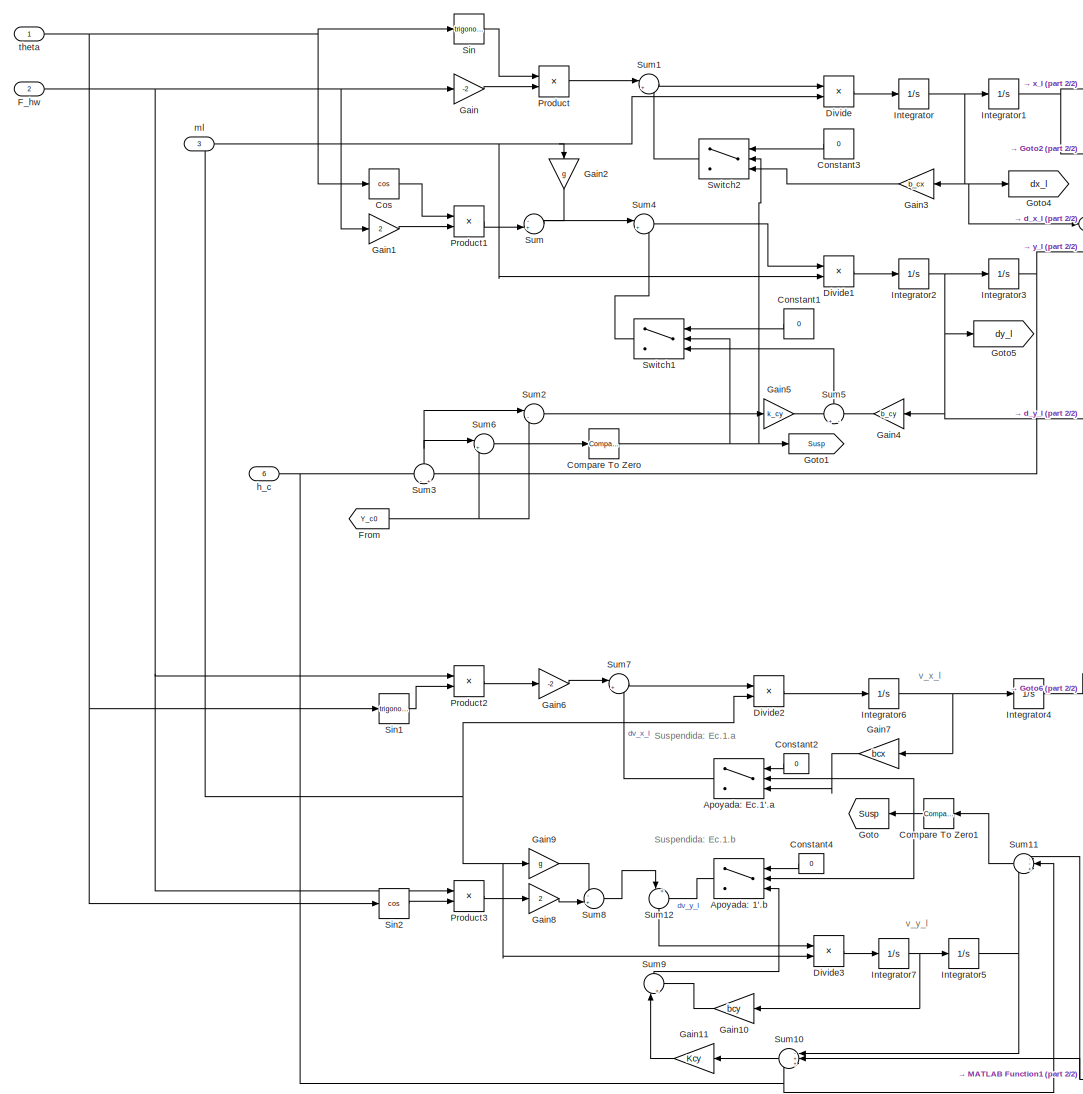
[diagram: Modelo Fisico Carro-Izaje-Carga/Modos de Contacto - part 1/2, left side, full height]
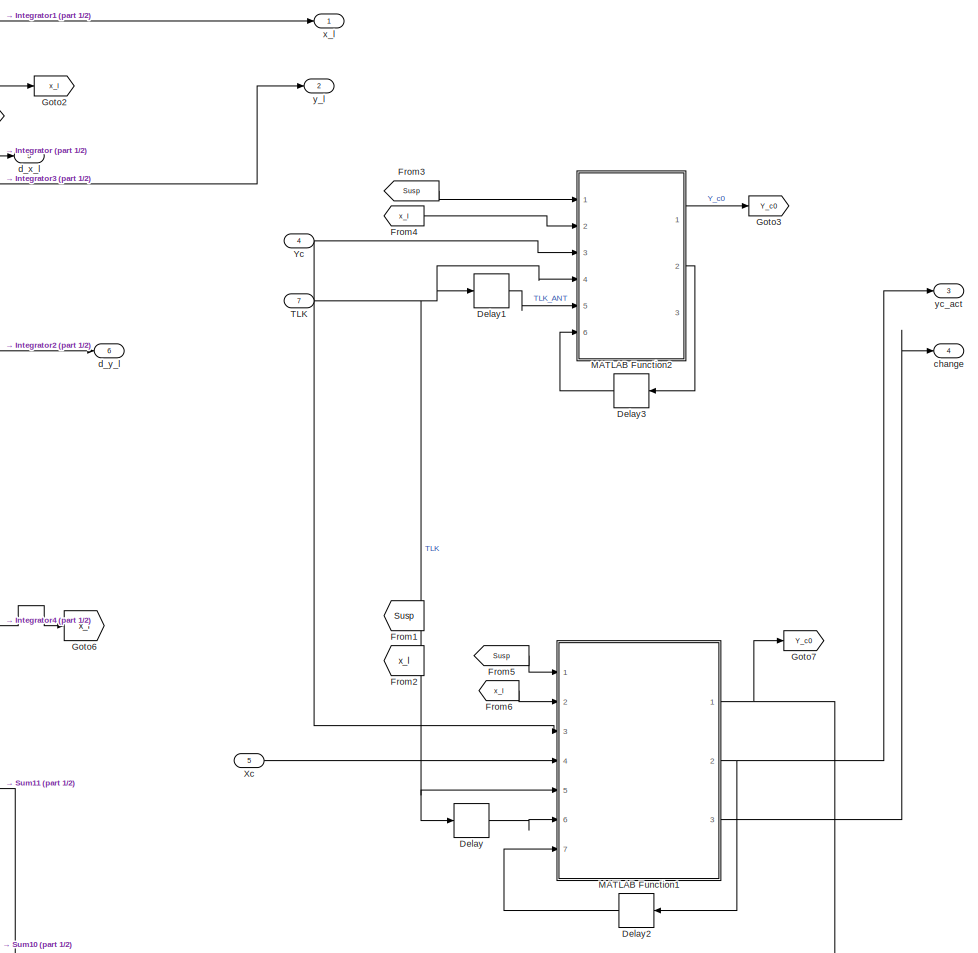
[diagram: Modelo Fisico Carro-Izaje-Carga/Modos de Contacto - part 2/2, right side, full height]
BLOCK [SubSystem] Modelo Fisico Carro-Izaje-Carga/Modos de Contacto
  Ports = [7, 6]
  RequestExecContextInheritance = off
BLOCK [Switch] Modelo Fisico Carro-Izaje-Carga/Modos de Contacto/Apoyada: 1'.b
  Commented = on
  Criteria = u2 ~= 0
  InputSameDT = off
  SaturateOnIntegerOverflow = off
BLOCK [Switch] Modelo Fisico Carro-Izaje-Carga/Modos de Contacto/Apoyada: Ec.1'.a
  Commented = on
  Criteria = u2 ~= 0
  InputSameDT = off
  SaturateOnIntegerOverflow = off
BLOCK [Reference] Modelo Fisico Carro-Izaje-Carga/Modos de Contacto/Compare To Zero  REF=simulink/Logic and Bit
Operations/Compare
To Zero
  Ports = [1, 1]
  SourceBlock = simulink/Logic and Bit\nOperations/Compare\nTo Zero
  SourceProductBaseCode = SL
  SourceType = Compare To Zero
BLOCK [Reference] Modelo Fisico Carro-Izaje-Carga/Modos de Contacto/Compare To Zero1  REF=simulink/Logic and Bit
Operations/Compare
To Zero
  Commented = on
  NameLocation = top
  Ports = [1, 1]
  SourceBlock = simulink/Logic and Bit\nOperations/Compare\nTo Zero
  SourceProductBaseCode = SL
  SourceType = Compare To Zero
BLOCK [Constant] Modelo Fisico Carro-Izaje-Carga/Modos de Contacto/Constant1
  NameLocation = top
  Value = 0
BLOCK [Constant] Modelo Fisico Carro-Izaje-Carga/Modos de Contacto/Constant2
  Commented = on
  NameLocation = top
  Value = 0
BLOCK [Constant] Modelo Fisico Carro-Izaje-Carga/Modos de Contacto/Constant3
  NameLocation = top
  Value = 0
BLOCK [Constant] Modelo Fisico Carro-Izaje-Carga/Modos de Contacto/Constant4
  Commented = on
  NameLocation = top
  Value = 0
BLOCK [Trigonometry] Modelo Fisico Carro-Izaje-Carga/Modos de Contacto/Cos
  Operator = cos
  Ports = [1, 1]
BLOCK [Delay] Modelo Fisico Carro-Izaje-Carga/Modos de Contacto/Delay
  DelayLength = 1
  InputPortMap = u0
  Ports = [1, 1]
BLOCK [Delay] Modelo Fisico Carro-Izaje-Carga/Modos de Contacto/Delay1
  Commented = on
  DelayLength = 1
  InputPortMap = u0
  Ports = [1, 1]
BLOCK [Delay] Modelo Fisico Carro-Izaje-Carga/Modos de Contacto/Delay2
  DelayLength = 1
  InputPortMap = u0
  NameLocation = top
  Ports = [1, 1]
BLOCK [Delay] Modelo Fisico Carro-Izaje-Carga/Modos de Contacto/Delay3
  Commented = on
  DelayLength = 1
  InputPortMap = u0
  NameLocation = top
  Ports = [1, 1]
BLOCK [Product] Modelo Fisico Carro-Izaje-Carga/Modos de Contacto/Divide
  Inputs = */
  Ports = [2, 1]
BLOCK [Product] Modelo Fisico Carro-Izaje-Carga/Modos de Contacto/Divide1
  Inputs = */
  Ports = [2, 1]
BLOCK [Product] Modelo Fisico Carro-Izaje-Carga/Modos de Contacto/Divide2
  Commented = on
  Inputs = */
  Ports = [2, 1]
BLOCK [Product] Modelo Fisico Carro-Izaje-Carga/Modos de Contacto/Divide3
  Commented = on
  Inputs = */
  Ports = [2, 1]
BLOCK [Inport] Modelo Fisico Carro-Izaje-Carga/Modos de Contacto/F_hw
  Port = 2
BLOCK [From] Modelo Fisico Carro-Izaje-Carga/Modos de Contacto/From
  GotoTag = Y_c0
BLOCK [From] Modelo Fisico Carro-Izaje-Carga/Modos de Contacto/From1
  Commented = on
  GotoTag = Susp
BLOCK [From] Modelo Fisico Carro-Izaje-Carga/Modos de Contacto/From2
  Commented = on
  GotoTag = x_l
BLOCK [From] Modelo Fisico Carro-Izaje-Carga/Modos de Contacto/From3
  Commented = on
  GotoTag = Susp
BLOCK [From] Modelo Fisico Carro-Izaje-Carga/Modos de Contacto/From4
  Commented = on
  GotoTag = x_l
BLOCK [From] Modelo Fisico Carro-Izaje-Carga/Modos de Contacto/From5
  GotoTag = Susp
BLOCK [From] Modelo Fisico Carro-Izaje-Carga/Modos de Contacto/From6
  GotoTag = x_l
BLOCK [Gain] Modelo Fisico Carro-Izaje-Carga/Modos de Contacto/Gain
  Gain = -2
BLOCK [Gain] Modelo Fisico Carro-Izaje-Carga/Modos de Contacto/Gain1
  Gain = 2
BLOCK [Gain] Modelo Fisico Carro-Izaje-Carga/Modos de Contacto/Gain10
  Commented = on
  Gain = bcy
  NameLocation = top
BLOCK [Gain] Modelo Fisico Carro-Izaje-Carga/Modos de Contacto/Gain11
  Commented = on
  Gain = Kcy
  NameLocation = top
BLOCK [Gain] Modelo Fisico Carro-Izaje-Carga/Modos de Contacto/Gain2
  Gain = g
  NameLocation = left
BLOCK [Gain] Modelo Fisico Carro-Izaje-Carga/Modos de Contacto/Gain3
  Gain = b_cx
  NameLocation = top
BLOCK [Gain] Modelo Fisico Carro-Izaje-Carga/Modos de Contacto/Gain4
  Gain = b_cy
  NameLocation = top
BLOCK [Gain] Modelo Fisico Carro-Izaje-Carga/Modos de Contacto/Gain5
  Gain = k_cy
BLOCK [Gain] Modelo Fisico Carro-Izaje-Carga/Modos de Contacto/Gain6
  Commented = on
  Gain = -2
BLOCK [Gain] Modelo Fisico Carro-Izaje-Carga/Modos de Contacto/Gain7
  Commented = on
  Gain = bcx
  NameLocation = top
BLOCK [Gain] Modelo Fisico Carro-Izaje-Carga/Modos de Contacto/Gain8
  Commented = on
  Gain = 2
BLOCK [Gain] Modelo Fisico Carro-Izaje-Carga/Modos de Contacto/Gain9
  Commented = on
  Gain = g
BLOCK [Goto] Modelo Fisico Carro-Izaje-Carga/Modos de Contacto/Goto
  Commented = on
  GotoTag = Susp
  NameLocation = top
BLOCK [Goto] Modelo Fisico Carro-Izaje-Carga/Modos de Contacto/Goto1
  GotoTag = Susp
BLOCK [Goto] Modelo Fisico Carro-Izaje-Carga/Modos de Contacto/Goto2
  GotoTag = x_l
BLOCK [Goto] Modelo Fisico Carro-Izaje-Carga/Modos de Contacto/Goto3
  Commented = on
  GotoTag = Y_c0
BLOCK [Goto] Modelo Fisico Carro-Izaje-Carga/Modos de Contacto/Goto4
  GotoTag = dx_l
  TagVisibility = global
BLOCK [Goto] Modelo Fisico Carro-Izaje-Carga/Modos de Contacto/Goto5
  GotoTag = dy_l
  TagVisibility = global
BLOCK [Goto] Modelo Fisico Carro-Izaje-Carga/Modos de Contacto/Goto6
  Commented = on
  GotoTag = x_l
BLOCK [Goto] Modelo Fisico Carro-Izaje-Carga/Modos de Contacto/Goto7
  GotoTag = Y_c0
BLOCK [Integrator] Modelo Fisico Carro-Izaje-Carga/Modos de Contacto/Integrator
  Ports = [1, 1]
BLOCK [Integrator] Modelo Fisico Carro-Izaje-Carga/Modos de Contacto/Integrator1
  InitialCondition = CI_t
  Ports = [1, 1]
BLOCK [Integrator] Modelo Fisico Carro-Izaje-Carga/Modos de Contacto/Integrator2
  Ports = [1, 1]
BLOCK [Integrator] Modelo Fisico Carro-Izaje-Carga/Modos de Contacto/Integrator3
  InitialCondition = CI_h
  Ports = [1, 1]
BLOCK [Integrator] Modelo Fisico Carro-Izaje-Carga/Modos de Contacto/Integrator4
  Commented = on
  InitialCondition = Cond_Ini_t
  Ports = [1, 1]
BLOCK [Integrator] Modelo Fisico Carro-Izaje-Carga/Modos de Contacto/Integrator5
  Commented = on
  InitialCondition = Cond_Ini_h
  Ports = [1, 1]
BLOCK [Integrator] Modelo Fisico Carro-Izaje-Carga/Modos de Contacto/Integrator6
  Commented = on
  Ports = [1, 1]
BLOCK [Integrator] Modelo Fisico Carro-Izaje-Carga/Modos de Contacto/Integrator7
  Commented = on
  Ports = [1, 1]
BLOCK [SubSystem] Modelo Fisico Carro-Izaje-Carga/Modos de Contacto/MATLAB Function1
  ErrorFcn = Stateflow.Translate.translate
  PermitHierarchicalResolution = ExplicitOnly
  Ports = [7, 3]
  RequestExecContextInheritance = off
  SFBlockType = MATLAB Function
  TreatAsAtomicUnit = on
BLOCK [Demux] Modelo Fisico Carro-Izaje-Carga/Modos de Contacto/MATLAB Function1/ Demux 
  Outputs = 1
  Ports = [1, 1]
BLOCK [S-Function] Modelo Fisico Carro-Izaje-Carga/Modos de Contacto/MATLAB Function1/ SFunction 
  EnableBusSupport = on
  FunctionName = sf_sfun
  PortCounts = [7 4]
  Ports = [7, 4]
  SFcnIsStateOwnerBlock = off
  SFunctionDeploymentMode = off
  Tag = Stateflow S-Function 7
BLOCK [Terminator] Modelo Fisico Carro-Izaje-Carga/Modos de Contacto/MATLAB Function1/ Terminator 
BLOCK [Inport] Modelo Fisico Carro-Izaje-Carga/Modos de Contacto/MATLAB Function1/Susp
BLOCK [Inport] Modelo Fisico Carro-Izaje-Carga/Modos de Contacto/MATLAB Function1/TLK
  Port = 5
BLOCK [Inport] Modelo Fisico Carro-Izaje-Carga/Modos de Contacto/MATLAB Function1/TLKold
  Port = 6
BLOCK [Inport] Modelo Fisico Carro-Izaje-Carga/Modos de Contacto/MATLAB Function1/Xc
  Port = 4
BLOCK [Outport] Modelo Fisico Carro-Izaje-Carga/Modos de Contacto/MATLAB Function1/Y_c0
BLOCK [Inport] Modelo Fisico Carro-Izaje-Carga/Modos de Contacto/MATLAB Function1/Yc
  Port = 3
BLOCK [Outport] Modelo Fisico Carro-Izaje-Carga/Modos de Contacto/MATLAB Function1/change
  Port = 3
BLOCK [Inport] Modelo Fisico Carro-Izaje-Carga/Modos de Contacto/MATLAB Function1/x_l
  Port = 2
BLOCK [Outport] Modelo Fisico Carro-Izaje-Carga/Modos de Contacto/MATLAB Function1/yc_act
  Port = 2
BLOCK [Inport] Modelo Fisico Carro-Izaje-Carga/Modos de Contacto/MATLAB Function1/yc_act_old
  Port = 7
BLOCK [SubSystem] Modelo Fisico Carro-Izaje-Carga/Modos de Contacto/MATLAB Function2
  Commented = on
  ErrorFcn = Stateflow.Translate.translate
  PermitHierarchicalResolution = ExplicitOnly
  Ports = [6, 3]
  RequestExecContextInheritance = off
  SFBlockType = MATLAB Function
  TreatAsAtomicUnit = on
BLOCK [Demux] Modelo Fisico Carro-Izaje-Carga/Modos de Contacto/MATLAB Function2/ Demux 
  Outputs = 1
  Ports = [1, 1]
BLOCK [S-Function] Modelo Fisico Carro-Izaje-Carga/Modos de Contacto/MATLAB Function2/ SFunction 
  EnableBusSupport = on
  FunctionName = sf_sfun
  PortCounts = [6 4]
  Ports = [6, 4]
  SFcnIsStateOwnerBlock = off
  SFunctionDeploymentMode = off
  Tag = Stateflow S-Function 2
BLOCK [Terminator] Modelo Fisico Carro-Izaje-Carga/Modos de Contacto/MATLAB Function2/ Terminator 
BLOCK [Inport] Modelo Fisico Carro-Izaje-Carga/Modos de Contacto/MATLAB Function2/Susp
BLOCK [Inport] Modelo Fisico Carro-Izaje-Carga/Modos de Contacto/MATLAB Function2/TLK
  Port = 4
BLOCK [Inport] Modelo Fisico Carro-Izaje-Carga/Modos de Contacto/MATLAB Function2/TLK_ant
  Port = 5
BLOCK [Outport] Modelo Fisico Carro-Izaje-Carga/Modos de Contacto/MATLAB Function2/Y_c0
BLOCK [Outport] Modelo Fisico Carro-Izaje-Carga/Modos de Contacto/MATLAB Function2/change
  Port = 3
BLOCK [Inport] Modelo Fisico Carro-Izaje-Carga/Modos de Contacto/MATLAB Function2/x_l
  Port = 2
BLOCK [Inport] Modelo Fisico Carro-Izaje-Carga/Modos de Contacto/MATLAB Function2/yc
  Port = 3
BLOCK [Outport] Modelo Fisico Carro-Izaje-Carga/Modos de Contacto/MATLAB Function2/yc_act
  Port = 2
BLOCK [Inport] Modelo Fisico Carro-Izaje-Carga/Modos de Contacto/MATLAB Function2/yc_act_ant
  Port = 6
BLOCK [Product] Modelo Fisico Carro-Izaje-Carga/Modos de Contacto/Product
  Ports = [2, 1]
BLOCK [Product] Modelo Fisico Carro-Izaje-Carga/Modos de Contacto/Product1
  Ports = [2, 1]
BLOCK [Product] Modelo Fisico Carro-Izaje-Carga/Modos de Contacto/Product2
  Commented = on
  Ports = [2, 1]
BLOCK [Product] Modelo Fisico Carro-Izaje-Carga/Modos de Contacto/Product3
  Commented = on
  Ports = [2, 1]
BLOCK [Trigonometry] Modelo Fisico Carro-Izaje-Carga/Modos de Contacto/Sin
  Ports = [1, 1]
BLOCK [Trigonometry] Modelo Fisico Carro-Izaje-Carga/Modos de Contacto/Sin1
  Commented = on
  Ports = [1, 1]
BLOCK [Trigonometry] Modelo Fisico Carro-Izaje-Carga/Modos de Contacto/Sin2
  Commented = on
  Operator = cos
  Ports = [1, 1]
BLOCK [Sum] Modelo Fisico Carro-Izaje-Carga/Modos de Contacto/Sum
  Inputs = -+|
  Ports = [2, 1]
BLOCK [Sum] Modelo Fisico Carro-Izaje-Carga/Modos de Contacto/Sum1
  Inputs = |+-
  Ports = [2, 1]
BLOCK [Sum] Modelo Fisico Carro-Izaje-Carga/Modos de Contacto/Sum10
  Commented = on
  Inputs = -++
  NameLocation = top
  Ports = [3, 1]
BLOCK [Sum] Modelo Fisico Carro-Izaje-Carga/Modos de Contacto/Sum11
  Commented = on
  Inputs = --+
  NameLocation = top
  Ports = [3, 1]
BLOCK [Sum] Modelo Fisico Carro-Izaje-Carga/Modos de Contacto/Sum12
  Commented = on
  Inputs = |++
  NameLocation = left
  Ports = [2, 1]
BLOCK [Sum] Modelo Fisico Carro-Izaje-Carga/Modos de Contacto/Sum2
  Inputs = |-+
  Ports = [2, 1]
BLOCK [Sum] Modelo Fisico Carro-Izaje-Carga/Modos de Contacto/Sum3
  Inputs = -|+
  NameLocation = right
  Ports = [2, 1]
BLOCK [Sum] Modelo Fisico Carro-Izaje-Carga/Modos de Contacto/Sum4
  Inputs = |++
  Ports = [2, 1]
BLOCK [Sum] Modelo Fisico Carro-Izaje-Carga/Modos de Contacto/Sum5
  Inputs = +|-
  NameLocation = right
  Ports = [2, 1]
BLOCK [Sum] Modelo Fisico Carro-Izaje-Carga/Modos de Contacto/Sum6
  Inputs = |+-
  Ports = [2, 1]
BLOCK [Sum] Modelo Fisico Carro-Izaje-Carga/Modos de Contacto/Sum7
  Commented = on
  Inputs = |+-
  Ports = [2, 1]
BLOCK [Sum] Modelo Fisico Carro-Izaje-Carga/Modos de Contacto/Sum8
  Commented = on
  Inputs = -+|
  Ports = [2, 1]
BLOCK [Sum] Modelo Fisico Carro-Izaje-Carga/Modos de Contacto/Sum9
  Commented = on
  Inputs = |+-
  NameLocation = right
  Ports = [2, 1]
BLOCK [Switch] Modelo Fisico Carro-Izaje-Carga/Modos de Contacto/Switch1
  Criteria = u2 ~= 0
  InputSameDT = off
  NameLocation = top
  SaturateOnIntegerOverflow = off
BLOCK [Switch] Modelo Fisico Carro-Izaje-Carga/Modos de Contacto/Switch2
  Criteria = u2 ~= 0
  InputSameDT = off
  NameLocation = top
  SaturateOnIntegerOverflow = off
BLOCK [Inport] Modelo Fisico Carro-Izaje-Carga/Modos de Contacto/TLK
  NameLocation = left
  Port = 7
BLOCK [Inport] Modelo Fisico Carro-Izaje-Carga/Modos de Contacto/Xc
  Port = 5
BLOCK [Inport] Modelo Fisico Carro-Izaje-Carga/Modos de Contacto/Yc
  NameLocation = left
  Port = 4
BLOCK [Outport] Modelo Fisico Carro-Izaje-Carga/Modos de Contacto/change
  Port = 4
BLOCK [Outport] Modelo Fisico Carro-Izaje-Carga/Modos de Contacto/d_x_l
  Port = 5
BLOCK [Outport] Modelo Fisico Carro-Izaje-Carga/Modos de Contacto/d_y_l
  Port = 6
BLOCK [Inport] Modelo Fisico Carro-Izaje-Carga/Modos de Contacto/h_c
  Port = 6
BLOCK [Inport] Modelo Fisico Carro-Izaje-Carga/Modos de Contacto/ml
  Port = 3
BLOCK [Inport] Modelo Fisico Carro-Izaje-Carga/Modos de Contacto/theta
BLOCK [Outport] Modelo Fisico Carro-Izaje-Carga/Modos de Contacto/x_l
BLOCK [Outport] Modelo Fisico Carro-Izaje-Carga/Modos de Contacto/y_l
  Port = 2
BLOCK [Outport] Modelo Fisico Carro-Izaje-Carga/Modos de Contacto/yc_act
  Port = 3
BLOCK [Inport] Modelo Fisico Carro-Izaje-Carga/TLK
BLOCK [Inport] Modelo Fisico Carro-Izaje-Carga/T_hm
  Port = 3
BLOCK [Inport] Modelo Fisico Carro-Izaje-Carga/T_tm
  Port = 2
BLOCK [Outport] Modelo Fisico Carro-Izaje-Carga/Tension_hw
  Port = 9
BLOCK [Inport] Modelo Fisico Carro-Izaje-Carga/Xc
  Port = 7
BLOCK [Inport] Modelo Fisico Carro-Izaje-Carga/Yc
  Port = 6
BLOCK [Outport] Modelo Fisico Carro-Izaje-Carga/d_x_hd
  Port = 4
BLOCK [Outport] Modelo Fisico Carro-Izaje-Carga/d_x_td
  Port = 2
BLOCK [Outport] Modelo Fisico Carro-Izaje-Carga/fc_der_norm
  Port = 12
BLOCK [Outport] Modelo Fisico Carro-Izaje-Carga/fc_der_ult
  Port = 13
BLOCK [Outport] Modelo Fisico Carro-Izaje-Carga/fc_inf_norm
  Port = 14
BLOCK [Outport] Modelo Fisico Carro-Izaje-Carga/fc_inf_ult
  Port = 15
BLOCK [Outport] Modelo Fisico Carro-Izaje-Carga/fc_izq_norm
  Port = 10
BLOCK [Outport] Modelo Fisico Carro-Izaje-Carga/fc_izq_ult
  Port = 11
BLOCK [Outport] Modelo Fisico Carro-Izaje-Carga/fc_sup_norm
  Port = 16
BLOCK [Outport] Modelo Fisico Carro-Izaje-Carga/fc_sup_ult
  Port = 17
BLOCK [Outport] Modelo Fisico Carro-Izaje-Carga/graficar
  Port = 19
BLOCK [Outport] Modelo Fisico Carro-Izaje-Carga/lim_v_h
  Port = 18
BLOCK [Outport] Modelo Fisico Carro-Izaje-Carga/m_l_real
  Port = 22
BLOCK [Inport] Modelo Fisico Carro-Izaje-Carga/ml
  Port = 5
BLOCK [Outport] Modelo Fisico Carro-Izaje-Carga/theta
  NameLocation = right
  Port = 7
BLOCK [SubSystem] Modelo Fisico Carro-Izaje-Carga/theta y l
  Ports = [7, 3]
  RequestExecContextInheritance = off
BLOCK [Trigonometry] Modelo Fisico Carro-Izaje-Carga/theta y l/Atan2
  Operator = atan2
  Ports = [2, 1]
BLOCK [From] Modelo Fisico Carro-Izaje-Carga/theta y l/From
  GotoTag = l
BLOCK [Goto] Modelo Fisico Carro-Izaje-Carga/theta y l/Goto
  GotoTag = l
BLOCK [Sqrt] Modelo Fisico Carro-Izaje-Carga/theta y l/Sqrt
BLOCK [Math] Modelo Fisico Carro-Izaje-Carga/theta y l/Square
  Operator = square
  Ports = [1, 1]
BLOCK [Math] Modelo Fisico Carro-Izaje-Carga/theta y l/Square1
  Operator = square
  Ports = [1, 1]
BLOCK [SubSystem] Modelo Fisico Carro-Izaje-Carga/theta y l/Subsystem
  Ports = [7, 1]
  RequestExecContextInheritance = off
BLOCK [Constant] Modelo Fisico Carro-Izaje-Carga/theta y l/Subsystem/Constant
  Value = Y_t0
BLOCK [Product] Modelo Fisico Carro-Izaje-Carga/theta y l/Subsystem/Divide
  Inputs = */
  Ports = [2, 1]
BLOCK [Product] Modelo Fisico Carro-Izaje-Carga/theta y l/Subsystem/Product
  Ports = [2, 1]
BLOCK [Product] Modelo Fisico Carro-Izaje-Carga/theta y l/Subsystem/Product1
  Ports = [2, 1]
BLOCK [Sum] Modelo Fisico Carro-Izaje-Carga/theta y l/Subsystem/Sum
  Inputs = +|-
  Ports = [2, 1]
BLOCK [Sum] Modelo Fisico Carro-Izaje-Carga/theta y l/Subsystem/Sum1
  Inputs = +|-
  Ports = [2, 1]
BLOCK [Sum] Modelo Fisico Carro-Izaje-Carga/theta y l/Subsystem/Sum2
  Inputs = +|-
  Ports = [2, 1]
BLOCK [Sum] Modelo Fisico Carro-Izaje-Carga/theta y l/Subsystem/Sum3
  Inputs = +|-
  Ports = [2, 1]
BLOCK [Outport] Modelo Fisico Carro-Izaje-Carga/theta y l/Subsystem/d_l
BLOCK [Inport] Modelo Fisico Carro-Izaje-Carga/theta y l/Subsystem/d_x_l
  Port = 2
BLOCK [Inport] Modelo Fisico Carro-Izaje-Carga/theta y l/Subsystem/d_x_t
  Port = 4
BLOCK [Inport] Modelo Fisico Carro-Izaje-Carga/theta y l/Subsystem/d_y_l
  Port = 6
BLOCK [Inport] Modelo Fisico Carro-Izaje-Carga/theta y l/Subsystem/l
  Port = 7
BLOCK [Inport] Modelo Fisico Carro-Izaje-Carga/theta y l/Subsystem/x_l
BLOCK [Inport] Modelo Fisico Carro-Izaje-Carga/theta y l/Subsystem/x_t
  Port = 3
BLOCK [Inport] Modelo Fisico Carro-Izaje-Carga/theta y l/Subsystem/y_l
  Port = 5
BLOCK [Sum] Modelo Fisico Carro-Izaje-Carga/theta y l/Sum1
  Inputs = +-|
  Ports = [2, 1]
BLOCK [Sum] Modelo Fisico Carro-Izaje-Carga/theta y l/Sum2
  Inputs = |+-
  Ports = [2, 1]
BLOCK [Sum] Modelo Fisico Carro-Izaje-Carga/theta y l/Sum3
  Inputs = |++
  Ports = [2, 1]
BLOCK [Inport] Modelo Fisico Carro-Izaje-Carga/theta y l/Y_t0
  Port = 4
BLOCK [Outport] Modelo Fisico Carro-Izaje-Carga/theta y l/d_l
  Port = 3
BLOCK [Inport] Modelo Fisico Carro-Izaje-Carga/theta y l/d_x_l
  Port = 5
BLOCK [Inport] Modelo Fisico Carro-Izaje-Carga/theta y l/d_x_t
  Port = 6
BLOCK [Inport] Modelo Fisico Carro-Izaje-Carga/theta y l/d_y_l
  Port = 7
BLOCK [Outport] Modelo Fisico Carro-Izaje-Carga/theta y l/l
  Port = 2
BLOCK [Outport] Modelo Fisico Carro-Izaje-Carga/theta y l/theta
BLOCK [Inport] Modelo Fisico Carro-Izaje-Carga/theta y l/x_l
BLOCK [Inport] Modelo Fisico Carro-Izaje-Carga/theta y l/x_t
  Port = 3
BLOCK [Inport] Modelo Fisico Carro-Izaje-Carga/theta y l/y_l
  Port = 2
BLOCK [Inport] Modelo Fisico Carro-Izaje-Carga/vel_hMax
  Port = 4
BLOCK [Outport] Modelo Fisico Carro-Izaje-Carga/x_hd
  Port = 3
BLOCK [Outport] Modelo Fisico Carro-Izaje-Carga/x_l
  NameLocation = right
  Port = 5
BLOCK [Outport] Modelo Fisico Carro-Izaje-Carga/x_td
BLOCK [Outport] Modelo Fisico Carro-Izaje-Carga/xc
  Port = 20
BLOCK [Outport] Modelo Fisico Carro-Izaje-Carga/y_l
  NameLocation = right
  Port = 6
BLOCK [Outport] Modelo Fisico Carro-Izaje-Carga/yc
  Port = 21
BLOCK [Scope] Movimiento de Izaje
  Commented = on
  Floating = off
  NameLocation = right
  NumInputPorts = 1
  Ports = [1]
  ScopeSpecificationString = Simulink.scopes.TimeScopeBlockCfg('CurrentConfiguration', extmgr.ConfigurationSet(extmgr.Configuration('Core','General UI',true,'FigureColor',[1 1 1]),extmgr.Configuration('Core','Source UI',true),extmgr.Configuration('Sources','WiredSimulink',true,'DataLoggingVariableName','ScopeData3'),extmgr.Configuration('Visuals','Time Domain',true,'SerializedDisplays',{struct('MinYLimReal','-2.55199','MaxYLi...<+2054ch>
BLOCK [Scope] Movimiento de Traslacion
  Commented = on
  Floating = off
  NameLocation = right
  NumInputPorts = 1
  Ports = [1]
  ScopeSpecificationString = Simulink.scopes.TimeScopeBlockCfg('CurrentConfiguration', extmgr.ConfigurationSet(extmgr.Configuration('Core','General UI',true,'FigureColor',[1 1 1]),extmgr.Configuration('Core','Source UI',true),extmgr.Configuration('Sources','WiredSimulink',true,'DataLoggingVariableName','ScopeData2'),extmgr.Configuration('Visuals','Time Domain',true,'SerializedDisplays',{struct('MinYLimReal','-30.48267','MaxYL...<+1699ch>
BLOCK [Mux] Mux
  DisplayOption = bar
  Inputs = 30
  Ports = [30, 1]
BLOCK [Mux] Mux1
  Commented = on
  DisplayOption = bar
  Inputs = 2
  Ports = [2, 1]
BLOCK [Mux] Mux2
  Commented = on
  DisplayOption = bar
  Inputs = 2
  Ports = [2, 1]
BLOCK [Mux] Mux3
  Commented = on
  DisplayOption = bar
  Inputs = 2
  Ports = [2, 1]
BLOCK [Mux] Mux4
  Commented = on
  DisplayOption = bar
  Inputs = 2
  Ports = [2, 1]
BLOCK [Mux] Mux7
  DisplayOption = bar
  Inputs = 3
  Ports = [3, 1]
BLOCK [SubSystem] Nivel 2
  Ports = [12, 8]
  RequestExecContextInheritance = off
BLOCK [Saturate] Nivel 2/0.1 de v_hMax_0
  LowerLimit = -0.1*v_hMax_0
  UpperLimit = 0
BLOCK [Inport] Nivel 2/Balanceo_ctrl
BLOCK [Constant] Nivel 2/Constant
  Value = 0
BLOCK [Constant] Nivel 2/Constant1
  NameLocation = top
  Value = 0
BLOCK [Constant] Nivel 2/Constant3
  Value = Kd_bal
BLOCK [Constant] Nivel 2/Constant4
  Value = Kp_bal
BLOCK [Constant] Nivel 2/Constant5
  Value = Y_t0
BLOCK [SubSystem] Nivel 2/Control PD Balanceo
  Ports = [3, 1]
  RequestExecContextInheritance = off
BLOCK [Constant] Nivel 2/Control PD Balanceo/Constant2
  Value = 0
BLOCK [Delay] Nivel 2/Control PD Balanceo/Delay One Step
  DelayLength = 1
  InputPortMap = u0
  Ports = [1, 1]
  SampleTime = 1e-3
BLOCK [Gain] Nivel 2/Control PD Balanceo/Gain1
  Gain = 1/1e-3
BLOCK [Inport] Nivel 2/Control PD Balanceo/Kd_bal
  Port = 2
BLOCK [Inport] Nivel 2/Control PD Balanceo/Kp_bal
BLOCK [Product] Nivel 2/Control PD Balanceo/Product
  Ports = [2, 1]
BLOCK [Product] Nivel 2/Control PD Balanceo/Product1
  Ports = [2, 1]
BLOCK [Sum] Nivel 2/Control PD Balanceo/Sum1
  Inputs = |+-
  Ports = [2, 1]
BLOCK [Sum] Nivel 2/Control PD Balanceo/Sum2
  Inputs = |+-
  Ports = [2, 1]
BLOCK [Sum] Nivel 2/Control PD Balanceo/Sum3
  Inputs = |++
  Ports = [2, 1]
BLOCK [Outport] Nivel 2/Control PD Balanceo/d_x_t*
BLOCK [Inport] Nivel 2/Control PD Balanceo/theta
  Port = 3
BLOCK [SubSystem] Nivel 2/Control PID Carro
  Ports = [2, 1]
  RequestExecContextInheritance = off
BLOCK [Gain] Nivel 2/Control PID Carro/Gain
  Gain = 1/tau_tm
BLOCK [Integrator] Nivel 2/Control PID Carro/Integrator
  InitialConditionSource = external
  Ports = [2, 1]
BLOCK [SubSystem] Nivel 2/Control PID Carro/PID Traslacion
  Ports = [2, 1]
  RequestExecContextInheritance = off
BLOCK [Delay] Nivel 2/Control PID Carro/PID Traslacion/Delay One Step
  DelayLength = 1
  InputPortMap = u0
  Ports = [1, 1]
  SampleTime = 1e-3
BLOCK [Delay] Nivel 2/Control PID Carro/PID Traslacion/Delay One Step1
  DelayLength = 1
  InputPortMap = u0
  Ports = [1, 1]
  SampleTime = 1e-3
BLOCK [Delay] Nivel 2/Control PID Carro/PID Traslacion/Delay One Step2
  DelayLength = 1
  InputPortMap = u0
  NameLocation = top
  Ports = [1, 1]
  SampleTime = 1e-3
BLOCK [Delay] Nivel 2/Control PID Carro/PID Traslacion/Delay One Step3
  DelayLength = 1
  InputPortMap = u0
  Ports = [1, 1]
  SampleTime = 1e-3
BLOCK [Gain] Nivel 2/Control PID Carro/PID Traslacion/Gain
  Gain = bat
BLOCK [Gain] Nivel 2/Control PID Carro/PID Traslacion/Gain1
  Gain = ksat
BLOCK [Gain] Nivel 2/Control PID Carro/PID Traslacion/Gain2
  Gain = ksiat
BLOCK [Gain] Nivel 2/Control PID Carro/PID Traslacion/Gain3
  Gain = b_eq_t
  NameLocation = left
BLOCK [Gain] Nivel 2/Control PID Carro/PID Traslacion/Gain4
  Gain = 1/1e-3
BLOCK [Gain] Nivel 2/Control PID Carro/PID Traslacion/Gain5
  Gain = 0.5*1e-3
BLOCK [Gain] Nivel 2/Control PID Carro/PID Traslacion/Gain6
  Gain = 1/1e-3
BLOCK [Sum] Nivel 2/Control PID Carro/PID Traslacion/Sum
  Inputs = |+-
  Ports = [2, 1]
BLOCK [Sum] Nivel 2/Control PID Carro/PID Traslacion/Sum1
  Inputs = +++
  Ports = [3, 1]
BLOCK [Sum] Nivel 2/Control PID Carro/PID Traslacion/Sum2
  Inputs = |+-
  Ports = [2, 1]
BLOCK [Sum] Nivel 2/Control PID Carro/PID Traslacion/Sum3
  Inputs = |++
  Ports = [2, 1]
BLOCK [Sum] Nivel 2/Control PID Carro/PID Traslacion/Sum4
  Inputs = ++|
  Ports = [2, 1]
BLOCK [Sum] Nivel 2/Control PID Carro/PID Traslacion/Sum5
  Inputs = |+-
  Ports = [2, 1]
BLOCK [Sum] Nivel 2/Control PID Carro/PID Traslacion/Sum6
  Inputs = |++
  Ports = [2, 1]
BLOCK [Outport] Nivel 2/Control PID Carro/PID Traslacion/T_tm*
BLOCK [Inport] Nivel 2/Control PID Carro/PID Traslacion/x_td
  Port = 2
BLOCK [Inport] Nivel 2/Control PID Carro/PID Traslacion/x_td*
BLOCK [Sum] Nivel 2/Control PID Carro/Sum
  Inputs = |+-
  Ports = [2, 1]
BLOCK [Outport] Nivel 2/Control PID Carro/T_tm
BLOCK [Saturate] Nivel 2/Control PID Carro/T_tmMax
  LowerLimit = -T_tmMax
  UpperLimit = T_tmMax
BLOCK [Inport] Nivel 2/Control PID Carro/x_td
BLOCK [Inport] Nivel 2/Control PID Carro/x_td*
  Port = 2
BLOCK [SubSystem] Nivel 2/Control PID Izaje
  Ports = [2, 1]
  RequestExecContextInheritance = off
BLOCK [Gain] Nivel 2/Control PID Izaje/Gain
  Gain = 1/tau_hm
BLOCK [Integrator] Nivel 2/Control PID Izaje/Integrator
  InitialConditionSource = external
  Ports = [2, 1]
BLOCK [SubSystem] Nivel 2/Control PID Izaje/PID Izaje
  Ports = [2, 1]
  RequestExecContextInheritance = off
BLOCK [Delay] Nivel 2/Control PID Izaje/PID Izaje/Delay One Step
  DelayLength = 1
  InputPortMap = u0
  Ports = [1, 1]
  SampleTime = 1e-3
BLOCK [Delay] Nivel 2/Control PID Izaje/PID Izaje/Delay One Step1
  DelayLength = 1
  InputPortMap = u0
  Ports = [1, 1]
  SampleTime = 1e-3
BLOCK [Delay] Nivel 2/Control PID Izaje/PID Izaje/Delay One Step2
  DelayLength = 1
  InputPortMap = u0
  NameLocation = top
  Ports = [1, 1]
  SampleTime = 1e-3
BLOCK [Delay] Nivel 2/Control PID Izaje/PID Izaje/Delay One Step3
  DelayLength = 1
  InputPortMap = u0
  Ports = [1, 1]
  SampleTime = 1e-3
BLOCK [Gain] Nivel 2/Control PID Izaje/PID Izaje/Gain
  Gain = bah
BLOCK [Gain] Nivel 2/Control PID Izaje/PID Izaje/Gain1
  Gain = ksah
BLOCK [Gain] Nivel 2/Control PID Izaje/PID Izaje/Gain2
  Gain = ksiah
BLOCK [Gain] Nivel 2/Control PID Izaje/PID Izaje/Gain3
  Gain = b_eq_h
  NameLocation = left
BLOCK [Gain] Nivel 2/Control PID Izaje/PID Izaje/Gain4
  Gain = 1/1e-3
BLOCK [Gain] Nivel 2/Control PID Izaje/PID Izaje/Gain5
  Gain = 0.5*1e-3
BLOCK [Gain] Nivel 2/Control PID Izaje/PID Izaje/Gain6
  Gain = 1/1e-3
BLOCK [Sum] Nivel 2/Control PID Izaje/PID Izaje/Sum
  Inputs = |+-
  Ports = [2, 1]
BLOCK [Sum] Nivel 2/Control PID Izaje/PID Izaje/Sum1
  Inputs = +++
  Ports = [3, 1]
BLOCK [Sum] Nivel 2/Control PID Izaje/PID Izaje/Sum2
  Inputs = ++|
  Ports = [2, 1]
BLOCK [Sum] Nivel 2/Control PID Izaje/PID Izaje/Sum3
  Inputs = |+-
  Ports = [2, 1]
BLOCK [Sum] Nivel 2/Control PID Izaje/PID Izaje/Sum4
  Inputs = |++
  Ports = [2, 1]
BLOCK [Sum] Nivel 2/Control PID Izaje/PID Izaje/Sum5
  Inputs = |+-
  Ports = [2, 1]
BLOCK [Sum] Nivel 2/Control PID Izaje/PID Izaje/Sum6
  Inputs = |++
  Ports = [2, 1]
BLOCK [Outport] Nivel 2/Control PID Izaje/PID Izaje/T_hm
BLOCK [Inport] Nivel 2/Control PID Izaje/PID Izaje/x_h
  Port = 2
BLOCK [Inport] Nivel 2/Control PID Izaje/PID Izaje/x_h*
BLOCK [Saturate] Nivel 2/Control PID Izaje/Saturation1
  LowerLimit = -T_hmMax
  UpperLimit = T_hmMax
BLOCK [Sum] Nivel 2/Control PID Izaje/Sum
  Inputs = |+-
  Ports = [2, 1]
BLOCK [Outport] Nivel 2/Control PID Izaje/T_hm
BLOCK [Inport] Nivel 2/Control PID Izaje/x_hd
BLOCK [Inport] Nivel 2/Control PID Izaje/x_hd*
  Port = 2
BLOCK [From] Nivel 2/From
  GotoTag = x_hd
BLOCK [Gain] Nivel 2/Gain
  Gain = -1
  NameLocation = left
BLOCK [Goto] Nivel 2/Goto
  GotoTag = x_hd
BLOCK [Integrator] Nivel 2/Integrator
  InitialCondition = CI_t
  Ports = [1, 1]
BLOCK [Integrator] Nivel 2/Integrator1
  InitialCondition = CI_h
  Ports = [1, 1]
BLOCK [SubSystem] Nivel 2/MATLAB Function
  ErrorFcn = Stateflow.Translate.translate
  PermitHierarchicalResolution = ExplicitOnly
  Ports = [4, 2]
  RequestExecContextInheritance = off
  SFBlockType = MATLAB Function
  TreatAsAtomicUnit = on
BLOCK [Demux] Nivel 2/MATLAB Function/ Demux 
  Outputs = 1
  Ports = [1, 1]
BLOCK [S-Function] Nivel 2/MATLAB Function/ SFunction 
  EnableBusSupport = on
  FunctionName = sf_sfun
  PortCounts = [4 3]
  Ports = [4, 3]
  SFcnIsStateOwnerBlock = off
  SFunctionDeploymentMode = off
  Tag = Stateflow S-Function 10
BLOCK [Terminator] Nivel 2/MATLAB Function/ Terminator 
BLOCK [Outport] Nivel 2/MATLAB Function/Kd
  Port = 2
BLOCK [Outport] Nivel 2/MATLAB Function/Kp
BLOCK [Inport] Nivel 2/MATLAB Function/kd_bal
  Port = 3
BLOCK [Inport] Nivel 2/MATLAB Function/kp_bal
  Port = 4
BLOCK [Inport] Nivel 2/MATLAB Function/l_h
  Port = 2
BLOCK [Inport] Nivel 2/MATLAB Function/m_l
BLOCK [Reference] Nivel 2/Saturation Dynamic  REF=simulink/Discontinuities/Saturation
Dynamic
  Ports = [3, 1]
  SourceBlock = simulink/Discontinuities/Saturation\nDynamic
  SourceProductBaseCode = SL
  SourceType = Saturation Dynamic
BLOCK [SubSystem] Nivel 2/Subsystem1
  Ports = [1, 1]
  RequestExecContextInheritance = off
BLOCK [Logic] Nivel 2/Subsystem1/AND
  AllPortsSameDT = off
  IconShape = distinctive
  Inputs = 3
  Operator = NAND
  OutDataTypeStr = boolean
  Ports = [3, 1]
BLOCK [Abs] Nivel 2/Subsystem1/Abs1
  SaturateOnIntegerOverflow = off
BLOCK [Abs] Nivel 2/Subsystem1/Abs2
  SaturateOnIntegerOverflow = off
BLOCK [Abs] Nivel 2/Subsystem1/Abs3
  SaturateOnIntegerOverflow = off
BLOCK [Reference] Nivel 2/Subsystem1/Compare To Constant1  REF=simulink/Logic and Bit
Operations/Compare
To Constant
  Ports = [1, 1]
  SourceBlock = simulink/Logic and Bit\nOperations/Compare\nTo Constant
  SourceProductBaseCode = SL
  SourceType = Compare To Constant
BLOCK [Reference] Nivel 2/Subsystem1/Compare To Constant2  REF=simulink/Logic and Bit
Operations/Compare
To Constant
  Ports = [1, 1]
  SourceBlock = simulink/Logic and Bit\nOperations/Compare\nTo Constant
  SourceProductBaseCode = SL
  SourceType = Compare To Constant
BLOCK [Reference] Nivel 2/Subsystem1/Compare To Constant3  REF=simulink/Logic and Bit
Operations/Compare
To Constant
  Ports = [1, 1]
  SourceBlock = simulink/Logic and Bit\nOperations/Compare\nTo Constant
  SourceProductBaseCode = SL
  SourceType = Compare To Constant
BLOCK [Memory] Nivel 2/Subsystem1/Memory
BLOCK [Memory] Nivel 2/Subsystem1/Memory1
BLOCK [Inport] Nivel 2/Subsystem1/T_tm
BLOCK [Outport] Nivel 2/Subsystem1/T_tm_on
BLOCK [SubSystem] Nivel 2/Subsystem2
  Ports = [1, 1]
  RequestExecContextInheritance = off
BLOCK [Logic] Nivel 2/Subsystem2/AND
  AllPortsSameDT = off
  IconShape = distinctive
  Inputs = 3
  Operator = NAND
  OutDataTypeStr = boolean
  Ports = [3, 1]
BLOCK [Abs] Nivel 2/Subsystem2/Abs1
  SaturateOnIntegerOverflow = off
BLOCK [Abs] Nivel 2/Subsystem2/Abs2
  SaturateOnIntegerOverflow = off
BLOCK [Abs] Nivel 2/Subsystem2/Abs3
  SaturateOnIntegerOverflow = off
BLOCK [Reference] Nivel 2/Subsystem2/Compare To Constant1  REF=simulink/Logic and Bit
Operations/Compare
To Constant
  Ports = [1, 1]
  SourceBlock = simulink/Logic and Bit\nOperations/Compare\nTo Constant
  SourceProductBaseCode = SL
  SourceType = Compare To Constant
BLOCK [Reference] Nivel 2/Subsystem2/Compare To Constant2  REF=simulink/Logic and Bit
Operations/Compare
To Constant
  Ports = [1, 1]
  SourceBlock = simulink/Logic and Bit\nOperations/Compare\nTo Constant
  SourceProductBaseCode = SL
  SourceType = Compare To Constant
BLOCK [Reference] Nivel 2/Subsystem2/Compare To Constant3  REF=simulink/Logic and Bit
Operations/Compare
To Constant
  Ports = [1, 1]
  SourceBlock = simulink/Logic and Bit\nOperations/Compare\nTo Constant
  SourceProductBaseCode = SL
  SourceType = Compare To Constant
BLOCK [Memory] Nivel 2/Subsystem2/Memory
BLOCK [Memory] Nivel 2/Subsystem2/Memory1
BLOCK [Inport] Nivel 2/Subsystem2/T_tm
BLOCK [Outport] Nivel 2/Subsystem2/T_tm_on
BLOCK [Sum] Nivel 2/Sum
  Inputs = -+|
  Ports = [2, 1]
BLOCK [Sum] Nivel 2/Sum4
  Inputs = |+-
  Ports = [2, 1]
BLOCK [Switch] Nivel 2/Switch
  Criteria = u2 ~= 0
  InputSameDT = off
  SaturateOnIntegerOverflow = off
BLOCK [Switch] Nivel 2/Switch1
  Criteria = u2 ~= 0
  InputSameDT = off
  SaturateOnIntegerOverflow = off
BLOCK [Switch] Nivel 2/Switch2
  Criteria = u2 ~= 0
  InputSameDT = off
  SaturateOnIntegerOverflow = off
BLOCK [Switch] Nivel 2/Switch3
  Criteria = u2 ~= 0
  InputSameDT = off
  SaturateOnIntegerOverflow = off
BLOCK [Switch] Nivel 2/Switch4
  Criteria = u2 ~= 0
  InputSameDT = off
  NameLocation = left
  SaturateOnIntegerOverflow = off
BLOCK [Outport] Nivel 2/T_hm
  Port = 3
BLOCK [Outport] Nivel 2/T_hm_on
  Port = 4
BLOCK [Outport] Nivel 2/T_tm
BLOCK [Outport] Nivel 2/T_tm_on
  Port = 2
BLOCK [RateLimiter] Nivel 2/a_hMax
  FallingSlewLimit = -a_hMax
  RisingSlewLimit = a_hMax
  SampleTimeMode = inherited
BLOCK [RateLimiter] Nivel 2/a_hMax 2
  FallingSlewLimit = -a_hMax
  RisingSlewLimit = a_hMax
  SampleTimeMode = inherited
BLOCK [RateLimiter] Nivel 2/a_tMax
  FallingSlewLimit = -a_tMax
  RisingSlewLimit = a_tMax
  SampleTimeMode = inherited
BLOCK [Outport] Nivel 2/d_x_hd*
  Port = 8
BLOCK [Outport] Nivel 2/d_x_td*
  Port = 7
BLOCK [Inport] Nivel 2/in_carro
  Port = 7
BLOCK [Inport] Nivel 2/in_izaje
  Port = 6
BLOCK [Inport] Nivel 2/manual_auto
  Port = 11
BLOCK [Inport] Nivel 2/max_masa
  Port = 12
BLOCK [Inport] Nivel 2/ml
  Port = 2
BLOCK [Inport] Nivel 2/theta
  Port = 3
BLOCK [Saturate] Nivel 2/v_tMax
  LowerLimit = -v_tMax
  UpperLimit = v_tMax
BLOCK [Inport] Nivel 2/vel_h
  Port = 8
BLOCK [Inport] Nivel 2/vel_hMax
  Port = 10
BLOCK [Inport] Nivel 2/vel_t
  Port = 9
BLOCK [Inport] Nivel 2/x_hd
  Port = 5
BLOCK [Outport] Nivel 2/x_hd*
  Port = 6
BLOCK [Inport] Nivel 2/x_td
  Port = 4
BLOCK [Outport] Nivel 2/x_td*
  Port = 5
BLOCK [Reference] OPC Configuration  REF=opclib/OPC Configuration
  Ports = []
  SourceBlock = opclib/OPC Configuration
  SourceProductBaseCode = OT
  SourceType = OPC Configuration
BLOCK [Reference] OPC Read  REF=opclib/OPC Read
  Ports = [0, 3]
  SourceBlock = opclib/OPC Read
  SourceProductBaseCode = OT
  SourceType = OPC Read
BLOCK [Reference] OPC Write  REF=opclib/OPC Write
  Ports = [1]
  SourceBlock = opclib/OPC Write
  SourceProductBaseCode = OT
  SourceType = OPC Write
BLOCK [PushButtonBlock] Push Button1
  ButtonText = RESET
BLOCK [Record] Record
  Commented = on
  FileSettingsInternal = {"entries":[{"content":{"excelSettings":{"content":{},"type":"Streamout.ExcelSettings"}},"type":"Streamout.FileSettingStorage","uuid":"83574828-c938-4f10-812a-cc88b85f0559"}],"packageUris":["http://schema.mathworks.com/mf0/streamout_blocks/R2020a"],"version":"1.0"}
  Layout = [1 1]
  Ports = [2]
  SignalsInternal = {"entries":[{"content":{"signals":[{"content":{"blockPath":["ProyectoGlobal_AyCD_Cantu_LagoTejo_OPCUA/Record"],"channel":[],"dimensions":[1],"domain":"proyectoglobal_aycd_cantu_lagotejo_opcua/record","lineColor":"#edb120","plots":[1],"port":1,"sid":[],"signalID":143384,"signalName":"x_l"},"type":"RecordBlkView.Signal","uuid":"7d16d182-9664-43c6-b73f-e6d938bfe76a"},{"content":{"blockPath":["Proyect...<+24282ch>
  VisualizationBindings = {"xyplotplugin":{"info":[{"series":[{"bindingParametersList":[{"parameter":"X-Axis","signalID":143384,"signalName":"x_l"},{"parameter":"Y-Axis","signalID":143387,"signalName":"y_l"}],"seriesID":213},{"bindingParametersList":[{"parameter":"X-Axis","signalID":143391,"signalName":"x_perfil(1,1)"},{"parameter":"Y-Axis","signalID":143458,"signalName":"y_perfil(1,1)"}],"seriesID":320},{"bindingParameter...<+368ch>
BLOCK [Record] Record1
  FileSettingsInternal = {"entries":[{"content":{"excelSettings":{"content":{},"type":"Streamout.ExcelSettings"}},"type":"Streamout.FileSettingStorage","uuid":"3e7b64e0-0ce2-41f3-8a99-b89d649c3767"}],"packageUris":["http://schema.mathworks.com/mf0/streamout_blocks/R2020a"],"version":"1.0"}
  Layout = [1 1]
  Ports = [2]
  SignalsInternal = {"entries":[{"content":{"signals":[{"content":{"blockPath":["ProyectoGlobal_AyCD_Cantu_LagoTejo_OPCUA/Record1"],"channel":[],"dimensions":[1],"domain":"proyectoglobal_aycd_cantu_lagotejo_opcua/record1","lineColor":"#edb120","plots":[1],"port":1,"sid":[],"signalID":143376,"signalName":"x_l1"},"type":"RecordBlkView.Signal","uuid":"afc6e062-fac5-424c-a01c-5c1b65c55174"},{"content":{"blockPath":["Proy...<+481ch>
  VisualizationBindings = {"xyplotplugin":{"info":[{"series":[{"bindingParametersList":[{"parameter":"X-Axis","signalID":143376,"signalName":"x_l1"},{"parameter":"Y-Axis","signalID":143379,"signalName":"y_l1"}],"seriesID":213}],"subplotID":1}]}}
BLOCK [LampBlock] Simple
  LabelPosition = Hide
BLOCK [SliderBlock] Slider
  NameLocation = left
  ScaleMax = 3
  ScaleMin = -3
  TickInterval = 1
BLOCK [SliderBlock] Slider1
  ScaleMax = +4
  ScaleMin = -4
  TickInterval = 1
BLOCK [SubSystem] Subsystem
  Ports = [1, 1]
  RequestExecContextInheritance = off
BLOCK [Inport] Subsystem/ 
BLOCK [Logic] Subsystem/AND
  AllPortsSameDT = off
  IconShape = distinctive
  OutDataTypeStr = boolean
  Ports = [2, 1]
BLOCK [Constant] Subsystem/BTN_RESET_PRESSED
  Value = 0
BLOCK [Outport] Subsystem/Out1
BLOCK [Scope] Traslacion de carga
  Floating = off
  NumInputPorts = 2
  Ports = [2]
  ScopeSpecificationString = Simulink.scopes.TimeScopeBlockCfg('CurrentConfiguration', extmgr.ConfigurationSet(extmgr.Configuration('Core','General UI',true,'FigureColor',[1 1 1]),extmgr.Configuration('Core','Source UI',true),extmgr.Configuration('Sources','WiredSimulink',true,'DataLoggingVariableName','ScopeData4'),extmgr.Configuration('Visuals','Time Domain',true,'SerializedDisplays',{struct('MinYLimReal','-24.16981','MaxYL...<+1897ch>
BLOCK [LampBlock] Twistlocks
  LabelPosition = Hide
BLOCK [Scope] Velocidad de Izaje
  Commented = on
  Floating = off
  NameLocation = right
  NumInputPorts = 1
  Ports = [1]
  ScopeSpecificationString = Simulink.scopes.TimeScopeBlockCfg('CurrentConfiguration', extmgr.ConfigurationSet(extmgr.Configuration('Core','General UI',true,'FigureColor',[1 1 1]),extmgr.Configuration('Core','Source UI',true),extmgr.Configuration('Sources','WiredSimulink',true,'DataLoggingVariableName','ScopeData4'),extmgr.Configuration('Visuals','Time Domain',true,'SerializedDisplays',{struct('MinYLimReal','-0.35548','MaxYLi...<+1691ch>
BLOCK [Scope] Velocidad de Traslacion
  Commented = on
  Floating = off
  NameLocation = right
  NumInputPorts = 1
  Ports = [1]
  ScopeSpecificationString = Simulink.scopes.TimeScopeBlockCfg('CurrentConfiguration', extmgr.ConfigurationSet(extmgr.Configuration('Core','General UI',true,'FigureColor',[1 1 1]),extmgr.Configuration('Core','Source UI',true),extmgr.Configuration('Sources','WiredSimulink',true,'DataLoggingVariableName','ScopeData5'),extmgr.Configuration('Visuals','Time Domain',true,'SerializedDisplays',{struct('MinYLimReal','-0.51555','MaxYLi...<+1690ch>
BLOCK [Scope] Velocidad de izaje carga
  Floating = off
  NumInputPorts = 2
  Ports = [2]
  ScopeSpecificationString = Simulink.scopes.TimeScopeBlockCfg('CurrentConfiguration', extmgr.ConfigurationSet(extmgr.Configuration('Core','General UI',true,'FigureColor',[1 1 1]),extmgr.Configuration('Core','Source UI',true),extmgr.Configuration('Sources','WiredSimulink',true,'DataLoggingVariableName','ScopeData5'),extmgr.Configuration('Visuals','Time Domain',true,'SerializedDisplays',{struct('MinYLimReal','-2.47528','MaxYLi...<+1898ch>
BLOCK [Scope] Velocidad de traslacion carga
  Floating = off
  NumInputPorts = 2
  Ports = [2]
  ScopeSpecificationString = Simulink.scopes.TimeScopeBlockCfg('CurrentConfiguration', extmgr.ConfigurationSet(extmgr.Configuration('Core','General UI',true,'FigureColor',[1 1 1]),extmgr.Configuration('Core','Source UI',true),extmgr.Configuration('Sources','WiredSimulink',true,'DataLoggingVariableName','ScopeData6'),extmgr.Configuration('Visuals','Time Domain',true,'SerializedDisplays',{struct('MinYLimReal','-5.42843','MaxYLi...<+1898ch>
BLOCK [LampBlock] ble   
  LabelPosition = Hide
BLOCK [Constant] carril_fin
  NameLocation = left
  Value = 17
BLOCK [Constant] carril_finDoble
  NameLocation = left
  Value = 5
BLOCK [Constant] in_carro
  Value = 0
BLOCK [Constant] in_izaje
  Value = 0
BLOCK [From] x_l
  Commented = on
  GotoTag = x_l
BLOCK [From] x_l1
  GotoTag = x_l
BLOCK [From] y_l
  Commented = on
  GotoTag = y_l
BLOCK [From] y_l1
  GotoTag = y_l
ANNOTATION (root): CODESYS-OPC_UA
ANNOTATION (root): HMI
ANNOTATION (root): NIVEL 2
ANNOTATION (root): SISTEMA FÍSICO
ANNOTATION (root): VISUALIZACION
ANNOTATION Modelo Fisico Carro-Izaje-Carga/Modos de Contacto: Suspendida: Ec.1.a
ANNOTATION Modelo Fisico Carro-Izaje-Carga/Modos de Contacto: Suspendida: Ec.1.b
ANNOTATION Modelo Fisico Carro-Izaje-Carga/Modos de Contacto: v_x_l
ANNOTATION Modelo Fisico Carro-Izaje-Carga/Modos de Contacto: v_y_l
LINE Cast To Double10:1 -> Mux:12
LINE Cast To Double11:1 -> Mux:11
LINE Cast To Double12:1 -> Mux:10
LINE Cast To Double13:1 -> Mux:9
LINE Cast To Double14:1 -> Mux:8
LINE Cast To Double15:1 -> Mux:7
LINE Cast To Double16:1 -> Mux:6
LINE Cast To Double17:1 -> Mux:5
LINE Cast To Double18:1 -> Mux:4
LINE Cast To Double19:1 -> Mux:2
LINE Cast To Double1:1 -> Mux:29
LINE Cast To Double20:1 -> Mux:1
LINE Cast To Double2:1 -> Mux:28
LINE Cast To Double3:1 -> Mux:27
LINE Cast To Double4:1 -> Mux:26
LINE Cast To Double5:1 -> Mux:25
LINE Cast To Double6:1 -> Mux:24
LINE Cast To Double7:1 -> Mux:17
LINE Cast To Double8:1 -> Mux:16
LINE Cast To Double9:1 -> Mux:15
LINE Cast To Double:1 -> Mux:30
LINE Clock1:1 -> MATLAB Function2:1
LINE Clock:1 -> MATLAB Function1:1
LINE Compare To Zero2:1 -> Cast To Double9:1
LINE Compare To Zero7:1 -> Cast To Double8:1
NET Constant17:1 -> Manual Switch1:1, Manual Switch2:1, Manual Switch3:1, Manual Switch4:1, Manual Switch5:1, Manual Switch6:1, Manual Switch7:1
NET Constant18:1 -> Manual Switch1:2, Manual Switch2:2, Manual Switch3:2, Manual Switch4:2, Manual Switch5:2, Manual Switch6:2, Manual Switch7:2
LINE Demux:1 -> Goto103:1
LINE Demux:10 -> Goto70:1
LINE Demux:11 -> Goto52:1
LINE Demux:12 -> Goto74:1
LINE Demux:13 -> Goto51:1
LINE Demux:14 -> Goto54:1
LINE Demux:15 -> Goto4:1
LINE Demux:16 -> Goto76:1
LINE Demux:17 -> Goto2:1
LINE Demux:18 -> Goto3:1
LINE Demux:2 -> Mux7:1
LINE Demux:3 -> Mux7:2
LINE Demux:4 -> Mux7:3
LINE Demux:5 -> Goto100:1
LINE Demux:6 -> Goto105:1
LINE Demux:7 -> Goto107:1
LINE Demux:8 -> Goto102:1
LINE Demux:9 -> Goto72:1
NET Estado Final de Frenos/BRK_BTN:1 -> Estado Final de Frenos/NOT1:1, Estado Final de Frenos/NOT:1, Estado Final de Frenos/OR1:2, Estado Final de Frenos/OR:2
LINE Estado Final de Frenos/BRK_h:1 -> Estado Final de Frenos/Switch2:1
LINE Estado Final de Frenos/BRK_t:1 -> Estado Final de Frenos/Switch3:1
LINE Estado Final de Frenos/Demux:1 -> Estado Final de Frenos/Switch4:3
LINE Estado Final de Frenos/Demux:2 -> Estado Final de Frenos/OR2:1
LINE Estado Final de Frenos/Demux:3 -> Estado Final de Frenos/OR3:2
LINE Estado Final de Frenos/EMER_T:1 -> Estado Final de Frenos/OR1:1
LINE Estado Final de Frenos/EMER_h:1 -> Estado Final de Frenos/OR:1
LINE Estado Final de Frenos/NOT1:1 -> Estado Final de Frenos/OR3:1
LINE Estado Final de Frenos/NOT:1 -> Estado Final de Frenos/OR2:2
LINE Estado Final de Frenos/OR1:1 -> Estado Final de Frenos/Switch3:2
LINE Estado Final de Frenos/OR2:1 -> Estado Final de Frenos/Switch3:3
LINE Estado Final de Frenos/OR3:1 -> Estado Final de Frenos/Switch2:3
LINE Estado Final de Frenos/OR:1 -> Estado Final de Frenos/Switch2:2
LINE Estado Final de Frenos/Orden_Nivel0:1 -> Estado Final de Frenos/Demux:1
LINE Estado Final de Frenos/Switch2:1 -> Estado Final de Frenos/BRK_h_def:1
LINE Estado Final de Frenos/Switch3:1 -> Estado Final de Frenos/BRK_t_def:1
LINE Estado Final de Frenos/Switch4:1 -> Estado Final de Frenos/manual_auto_def:1
LINE Estado Final de Frenos/manual_auto_Nivel1:1 -> Estado Final de Frenos/Switch4:1
LINE Estado Final de Frenos/sistOK:1 -> Estado Final de Frenos/Switch4:2
LINE Estado Final de Frenos:1 -> Goto42:1
LINE Estado Final de Frenos:2 -> Goto60:1
LINE Estado Final de Frenos:3 -> Goto61:1
LINE From105:1 -> MATLAB Function1:7
LINE From106:1 -> Mux:21
LINE From10:1 -> MATLAB Function2:10
LINE From110:1 -> Mux:23
LINE From111:1 -> Mux:22
LINE From112:1 -> Cast To Double6:1
LINE From113:1 -> Cast To Double2:1
LINE From114:1 -> Cast To Double5:1
LINE From115:1 -> Cast To Double4:1
LINE From118:1 -> Cast To Double:1
LINE From119:1 -> Estado Final de Frenos:5
LINE From11:1 -> MATLAB Function2:15
LINE From120:1 -> Cast To Double1:1
LINE From121:1 -> Estado Final de Frenos:6
LINE From122:1 -> Cast To Double3:1
LINE From123:1 -> Estado Final de Frenos:4
LINE From125:1 -> Mux:20
LINE From126:1 -> Estado Final de Frenos:7
LINE From129:1 -> Mux:19
LINE From12:1 -> MATLAB Function2:16
LINE From130:1 -> Cast To Double7:1
LINE From131:1 -> Nivel 2:12
LINE From132:1 -> Nivel 2:11
LINE From133:1 -> Nivel 2:10
LINE From134:1 -> Nivel 2:9
LINE From135:1 -> Nivel 2:6
LINE From136:1 -> Nivel 2:7
LINE From137:1 -> Nivel 2:8
LINE From138:1 -> Nivel 2:4
LINE From139:1 -> Nivel 2:3
LINE From13:1 -> MATLAB Function1:4
LINE From140:1 -> Nivel 2:5
LINE From141:1 -> Nivel 2:1
LINE From142:1 -> Nivel 2:2
LINE From146:1 -> Compare To Zero2:1
LINE From147:1 -> Compare To Zero7:1
LINE From149:1 -> Cast To Double12:1
LINE From14:1 -> MATLAB Function2:17
LINE From150:1 -> Cast To Double11:1
LINE From151:1 -> Cast To Double16:1
LINE From152:1 -> Cast To Double14:1
LINE From153:1 -> Cast To Double15:1
LINE From154:1 -> Cast To Double13:1
LINE From155:1 -> Cast To Double18:1
LINE From156:1 -> Cast To Double17:1
LINE From157:1 -> Mux:3
LINE From158:1 -> Cast To Double19:1
LINE From159:1 -> Cast To Double20:1
LINE From15:1 -> MATLAB Function2:9
LINE From160:1 -> Cast To Double10:1
LINE From16:1 -> MATLAB Function2:13
LINE From17:1 -> MATLAB Function2:11
LINE From18:1 -> MATLAB Function2:14
LINE From19:1 -> MATLAB Function2:6
LINE From1:1 -> Estado Final de Frenos:2
LINE From20:1 -> MATLAB Function2:8
LINE From21:1 -> MATLAB Function1:10
LINE From22:1 -> MATLAB Function2:5
LINE From23:1 -> Memory5:1
LINE From24:1 -> MATLAB Function2:3
LINE From25:1 -> Modelo Fisico Carro-Izaje-Carga:5
LINE From26:1 -> MATLAB Function2:2
LINE From27:1 -> MATLAB Function2:12
LINE From28:1 -> Gain1:1
LINE From29:1 -> Izaje de carga:1
LINE From2:1 -> Estado Final de Frenos:3
LINE From30:1 -> Modelo Fisico Carro-Izaje-Carga:8
LINE From31:1 -> Modelo Fisico Carro-Izaje-Carga:9
LINE From32:1 -> Modelo Fisico Carro-Izaje-Carga:10
LINE From33:1 -> Traslacion de carga:1
LINE From34:1 -> Modelo Fisico Carro-Izaje-Carga:7
LINE From35:1 -> Traslacion de carga:2
LINE From36:1 -> Izaje de carga:2
LINE From37:1 -> Velocidad de traslacion carga:1
LINE From38:1 -> MATLAB Function1:15
LINE From39:1 -> MATLAB Function1:16
LINE From3:1 -> MATLAB Function:3
LINE From40:1 -> Velocidad de izaje carga:1
LINE From41:1 -> Velocidad de izaje carga:2
LINE From42:1 -> Velocidad de traslacion carga:2
LINE From44:1 -> Modelo Fisico Carro-Izaje-Carga:4
LINE From45:1 -> MATLAB Function1:17
LINE From49:1 -> Estado Final de Frenos:8
LINE From4:1 -> Modelo Fisico Carro-Izaje-Carga:6
LINE From53:1 -> MATLAB Function1:9
LINE From57:1 -> MATLAB Function1:13
LINE From58:1 -> MATLAB Function1:11
LINE From59:1 -> MATLAB Function1:14
LINE From5:1 -> MATLAB Function2:7
LINE From60:1 -> Mux:18
LINE From61:1 -> MATLAB Function1:6
LINE From63:1 -> MATLAB Function1:8
LINE From64:1 -> MATLAB Function1:5
LINE From66:1 -> MATLAB Function1:3
LINE From67:1 -> MATLAB Function1:2
LINE From6:1 -> MATLAB Function2:4
LINE From7:1 -> Fuerza cable de izaje:1
LINE From85:1 -> MATLAB Function1:12
LINE From86:1 -> Gain3:1
LINE From87:1 -> Fuerza de tension del cable:1
LINE From88:1 -> Mux2:1
LINE From89:1 -> Mux1:1
LINE From8:1 -> Modelo Fisico Carro-Izaje-Carga:2
LINE From90:1 -> Mux1:2
LINE From91:1 -> Mux2:2
LINE From92:1 -> Mux3:1
LINE From93:1 -> Mux4:1
LINE From94:1 -> Mux4:2
LINE From95:1 -> Mux3:2
LINE From99:1 -> Subsystem:1
LINE From9:1 -> Modelo Fisico Carro-Izaje-Carga:3
LINE From:1 -> Estado Final de Frenos:1
LINE Gain1:1 -> Angulo de balanceo1:1
LINE Gain3:1 -> Angulo de balanceo:1
LINE MATLAB Function:1 -> Mux:13
LINE MATLAB Function:2 -> Mux:14
LINE Manual Switch1:1 -> Goto63:1
LINE Manual Switch2:1 -> Goto37:1
LINE Manual Switch3:1 -> Goto19:1
LINE Manual Switch4:1 -> Goto20:1
LINE Manual Switch5:1 -> Goto36:1
LINE Manual Switch6:1 -> Goto30:1
LINE Manual Switch7:1 -> Goto62:1
LINE Memory5:1 -> Modelo Fisico Carro-Izaje-Carga:1
LINE Modelo Fisico Carro-Izaje-Carga/BRK_h:1 -> Modelo Fisico Carro-Izaje-Carga/Frenos:2
LINE Modelo Fisico Carro-Izaje-Carga/BRK_hE:1 -> Modelo Fisico Carro-Izaje-Carga/Frenos:3
LINE Modelo Fisico Carro-Izaje-Carga/BRK_t:1 -> Modelo Fisico Carro-Izaje-Carga/Frenos:1
LINE Modelo Fisico Carro-Izaje-Carga/Carro/Carro Eje Rápido-Lento/1//Meq_t:1 -> Modelo Fisico Carro-Izaje-Carga/Carro/Carro Eje Rápido-Lento/Integrator2:1
LINE Modelo Fisico Carro-Izaje-Carga/Carro/Carro Eje Rápido-Lento/F_tw:1 -> Modelo Fisico Carro-Izaje-Carga/Carro/Carro Eje Rápido-Lento/Sum1:1
LINE Modelo Fisico Carro-Izaje-Carga/Carro/Carro Eje Rápido-Lento/Gain3:1 -> Modelo Fisico Carro-Izaje-Carga/Carro/Carro Eje Rápido-Lento/Sum1:2
NET Modelo Fisico Carro-Izaje-Carga/Carro/Carro Eje Rápido-Lento/Integrator2:1 -> Modelo Fisico Carro-Izaje-Carga/Carro/Carro Eje Rápido-Lento/Integrator3:1, Modelo Fisico Carro-Izaje-Carga/Carro/Carro Eje Rápido-Lento/beq_t:1, Modelo Fisico Carro-Izaje-Carga/Carro/Carro Eje Rápido-Lento/d_x_td:1
LINE Modelo Fisico Carro-Izaje-Carga/Carro/Carro Eje Rápido-Lento/Integrator3:1 -> Modelo Fisico Carro-Izaje-Carga/Carro/Carro Eje Rápido-Lento/x_td:1
LINE Modelo Fisico Carro-Izaje-Carga/Carro/Carro Eje Rápido-Lento/Sum1:1 -> Modelo Fisico Carro-Izaje-Carga/Carro/Carro Eje Rápido-Lento/1//Meq_t:1
LINE Modelo Fisico Carro-Izaje-Carga/Carro/Carro Eje Rápido-Lento/Sum:1 -> Modelo Fisico Carro-Izaje-Carga/Carro/Carro Eje Rápido-Lento/Gain3:1
LINE Modelo Fisico Carro-Izaje-Carga/Carro/Carro Eje Rápido-Lento/T_tm:1 -> Modelo Fisico Carro-Izaje-Carga/Carro/Carro Eje Rápido-Lento/Sum:1
LINE Modelo Fisico Carro-Izaje-Carga/Carro/Carro Eje Rápido-Lento/Tt_brake:1 -> Modelo Fisico Carro-Izaje-Carga/Carro/Carro Eje Rápido-Lento/Sum:2
LINE Modelo Fisico Carro-Izaje-Carga/Carro/Carro Eje Rápido-Lento/beq_t:1 -> Modelo Fisico Carro-Izaje-Carga/Carro/Carro Eje Rápido-Lento/Sum1:3
NET Modelo Fisico Carro-Izaje-Carga/Carro/Carro Eje Rápido-Lento:1 -> Modelo Fisico Carro-Izaje-Carga/Carro/Goto:1, Modelo Fisico Carro-Izaje-Carga/Carro/x_td:1
NET Modelo Fisico Carro-Izaje-Carga/Carro/Carro Eje Rápido-Lento:2 -> Modelo Fisico Carro-Izaje-Carga/Carro/Goto2:1, Modelo Fisico Carro-Izaje-Carga/Carro/d_x_td:1
LINE Modelo Fisico Carro-Izaje-Carga/Carro/Carro y Cable de Carro/1//M_t:1 -> Modelo Fisico Carro-Izaje-Carga/Carro/Carro y Cable de Carro/Integrator2:1
LINE Modelo Fisico Carro-Izaje-Carga/Carro/Carro y Cable de Carro/F_hw:1 -> Modelo Fisico Carro-Izaje-Carga/Carro/Carro y Cable de Carro/Gain:1
LINE Modelo Fisico Carro-Izaje-Carga/Carro/Carro y Cable de Carro/F_tw:1 -> Modelo Fisico Carro-Izaje-Carga/Carro/Carro y Cable de Carro/Sum1:1
LINE Modelo Fisico Carro-Izaje-Carga/Carro/Carro y Cable de Carro/Gain:1 -> Modelo Fisico Carro-Izaje-Carga/Carro/Carro y Cable de Carro/Product:1
NET Modelo Fisico Carro-Izaje-Carga/Carro/Carro y Cable de Carro/Integrator2:1 -> Modelo Fisico Carro-Izaje-Carga/Carro/Carro y Cable de Carro/Integrator:1, Modelo Fisico Carro-Izaje-Carga/Carro/Carro y Cable de Carro/b_t:1, Modelo Fisico Carro-Izaje-Carga/Carro/Carro y Cable de Carro/d_x_t:1
LINE Modelo Fisico Carro-Izaje-Carga/Carro/Carro y Cable de Carro/Integrator:1 -> Modelo Fisico Carro-Izaje-Carga/Carro/Carro y Cable de Carro/x_t:1
LINE Modelo Fisico Carro-Izaje-Carga/Carro/Carro y Cable de Carro/Product:1 -> Modelo Fisico Carro-Izaje-Carga/Carro/Carro y Cable de Carro/Sum1:2
LINE Modelo Fisico Carro-Izaje-Carga/Carro/Carro y Cable de Carro/Sin:1 -> Modelo Fisico Carro-Izaje-Carga/Carro/Carro y Cable de Carro/Product:2
LINE Modelo Fisico Carro-Izaje-Carga/Carro/Carro y Cable de Carro/Sum1:1 -> Modelo Fisico Carro-Izaje-Carga/Carro/Carro y Cable de Carro/1//M_t:1
LINE Modelo Fisico Carro-Izaje-Carga/Carro/Carro y Cable de Carro/b_t:1 -> Modelo Fisico Carro-Izaje-Carga/Carro/Carro y Cable de Carro/Sum1:3
LINE Modelo Fisico Carro-Izaje-Carga/Carro/Carro y Cable de Carro/theta:1 -> Modelo Fisico Carro-Izaje-Carga/Carro/Carro y Cable de Carro/Sin:1
NET Modelo Fisico Carro-Izaje-Carga/Carro/Carro y Cable de Carro:1 -> Modelo Fisico Carro-Izaje-Carga/Carro/Goto1:1, Modelo Fisico Carro-Izaje-Carga/Carro/x_t:1
NET Modelo Fisico Carro-Izaje-Carga/Carro/Carro y Cable de Carro:2 -> Modelo Fisico Carro-Izaje-Carga/Carro/Goto3:1, Modelo Fisico Carro-Izaje-Carga/Carro/d_x_t:1
LINE Modelo Fisico Carro-Izaje-Carga/Carro/F_hw:1 -> Modelo Fisico Carro-Izaje-Carga/Carro/Carro y Cable de Carro:2
LINE Modelo Fisico Carro-Izaje-Carga/Carro/From1:1 -> Modelo Fisico Carro-Izaje-Carga/Carro/Fuerza Cable Carro:4
LINE Modelo Fisico Carro-Izaje-Carga/Carro/From2:1 -> Modelo Fisico Carro-Izaje-Carga/Carro/Fuerza Cable Carro:1
LINE Modelo Fisico Carro-Izaje-Carga/Carro/From3:1 -> Modelo Fisico Carro-Izaje-Carga/Carro/Fuerza Cable Carro:2
LINE Modelo Fisico Carro-Izaje-Carga/Carro/From4:1 -> Modelo Fisico Carro-Izaje-Carga/Carro/Carro Eje Rápido-Lento:1
LINE Modelo Fisico Carro-Izaje-Carga/Carro/From5:1 -> Modelo Fisico Carro-Izaje-Carga/Carro/Carro y Cable de Carro:3
LINE Modelo Fisico Carro-Izaje-Carga/Carro/From:1 -> Modelo Fisico Carro-Izaje-Carga/Carro/Fuerza Cable Carro:3
LINE Modelo Fisico Carro-Izaje-Carga/Carro/Fuerza Cable Carro/Gain1:1 -> Modelo Fisico Carro-Izaje-Carga/Carro/Fuerza Cable Carro/Sum2:1
LINE Modelo Fisico Carro-Izaje-Carga/Carro/Fuerza Cable Carro/Gain:1 -> Modelo Fisico Carro-Izaje-Carga/Carro/Fuerza Cable Carro/Sum2:2
LINE Modelo Fisico Carro-Izaje-Carga/Carro/Fuerza Cable Carro/Sum1:1 -> Modelo Fisico Carro-Izaje-Carga/Carro/Fuerza Cable Carro/Gain1:1
LINE Modelo Fisico Carro-Izaje-Carga/Carro/Fuerza Cable Carro/Sum2:1 -> Modelo Fisico Carro-Izaje-Carga/Carro/Fuerza Cable Carro/F_tw:1
LINE Modelo Fisico Carro-Izaje-Carga/Carro/Fuerza Cable Carro/Sum:1 -> Modelo Fisico Carro-Izaje-Carga/Carro/Fuerza Cable Carro/Gain:1
LINE Modelo Fisico Carro-Izaje-Carga/Carro/Fuerza Cable Carro/d_x_t:1 -> Modelo Fisico Carro-Izaje-Carga/Carro/Fuerza Cable Carro/Sum1:2
LINE Modelo Fisico Carro-Izaje-Carga/Carro/Fuerza Cable Carro/d_x_td:1 -> Modelo Fisico Carro-Izaje-Carga/Carro/Fuerza Cable Carro/Sum1:1
LINE Modelo Fisico Carro-Izaje-Carga/Carro/Fuerza Cable Carro/x_t:1 -> Modelo Fisico Carro-Izaje-Carga/Carro/Fuerza Cable Carro/Sum:2
LINE Modelo Fisico Carro-Izaje-Carga/Carro/Fuerza Cable Carro/x_td:1 -> Modelo Fisico Carro-Izaje-Carga/Carro/Fuerza Cable Carro/Sum:1
LINE Modelo Fisico Carro-Izaje-Carga/Carro/Fuerza Cable Carro:1 -> Modelo Fisico Carro-Izaje-Carga/Carro/Goto4:1
LINE Modelo Fisico Carro-Izaje-Carga/Carro/T_tm:1 -> Modelo Fisico Carro-Izaje-Carga/Carro/Carro Eje Rápido-Lento:3
LINE Modelo Fisico Carro-Izaje-Carga/Carro/Tt_brake:1 -> Modelo Fisico Carro-Izaje-Carga/Carro/Carro Eje Rápido-Lento:2
LINE Modelo Fisico Carro-Izaje-Carga/Carro/theta:1 -> Modelo Fisico Carro-Izaje-Carga/Carro/Carro y Cable de Carro:1
NET Modelo Fisico Carro-Izaje-Carga/Carro:1 -> Modelo Fisico Carro-Izaje-Carga/Goto2:1, Modelo Fisico Carro-Izaje-Carga/theta y l:3
NET Modelo Fisico Carro-Izaje-Carga/Carro:2 -> Modelo Fisico Carro-Izaje-Carga/Goto1:1, Modelo Fisico Carro-Izaje-Carga/theta y l:6
LINE Modelo Fisico Carro-Izaje-Carga/Carro:3 -> Modelo Fisico Carro-Izaje-Carga/x_td:1
NET Modelo Fisico Carro-Izaje-Carga/Carro:4 -> Modelo Fisico Carro-Izaje-Carga/Gain3:1, Modelo Fisico Carro-Izaje-Carga/d_x_td:1
LINE Modelo Fisico Carro-Izaje-Carga/Chart:1 -> Modelo Fisico Carro-Izaje-Carga/Goto8:1
LINE Modelo Fisico Carro-Izaje-Carga/Chart:2 -> Modelo Fisico Carro-Izaje-Carga/yc:1
LINE Modelo Fisico Carro-Izaje-Carga/Chart:3 -> Modelo Fisico Carro-Izaje-Carga/graficar:1
LINE Modelo Fisico Carro-Izaje-Carga/Chart:4 -> Modelo Fisico Carro-Izaje-Carga/xc:1
LINE Modelo Fisico Carro-Izaje-Carga/Chart:5 -> Modelo Fisico Carro-Izaje-Carga/m_l_real:1
LINE Modelo Fisico Carro-Izaje-Carga/Constant1:1 -> Modelo Fisico Carro-Izaje-Carga/theta y l:4
LINE Modelo Fisico Carro-Izaje-Carga/Frenos/BRK_h:1 -> Modelo Fisico Carro-Izaje-Carga/Frenos/Freno Operacion Izaje:1
LINE Modelo Fisico Carro-Izaje-Carga/Frenos/BRK_hE:1 -> Modelo Fisico Carro-Izaje-Carga/Frenos/Freno Emergencia Izaje:1
LINE Modelo Fisico Carro-Izaje-Carga/Frenos/BRK_t:1 -> Modelo Fisico Carro-Izaje-Carga/Frenos/Freno Operacion Carro:1
LINE Modelo Fisico Carro-Izaje-Carga/Frenos/Freno Emergencia Izaje/Constant:1 -> Modelo Fisico Carro-Izaje-Carga/Frenos/Freno Emergencia Izaje/Switch:1
LINE Modelo Fisico Carro-Izaje-Carga/Frenos/Freno Emergencia Izaje/Energizado//Desenergizado:1 -> Modelo Fisico Carro-Izaje-Carga/Frenos/Freno Emergencia Izaje/Switch:2
LINE Modelo Fisico Carro-Izaje-Carga/Frenos/Freno Emergencia Izaje/Gain:1 -> Modelo Fisico Carro-Izaje-Carga/Frenos/Freno Emergencia Izaje/Saturation:1
LINE Modelo Fisico Carro-Izaje-Carga/Frenos/Freno Emergencia Izaje/Saturation:1 -> Modelo Fisico Carro-Izaje-Carga/Frenos/Freno Emergencia Izaje/Switch:3
LINE Modelo Fisico Carro-Izaje-Carga/Frenos/Freno Emergencia Izaje/Switch:1 -> Modelo Fisico Carro-Izaje-Carga/Frenos/Freno Emergencia Izaje/Th_EB:1
LINE Modelo Fisico Carro-Izaje-Carga/Frenos/Freno Emergencia Izaje/w_hd:1 -> Modelo Fisico Carro-Izaje-Carga/Frenos/Freno Emergencia Izaje/Gain:1
LINE Modelo Fisico Carro-Izaje-Carga/Frenos/Freno Emergencia Izaje:1 -> Modelo Fisico Carro-Izaje-Carga/Frenos/Th_EB:1
LINE Modelo Fisico Carro-Izaje-Carga/Frenos/Freno Operacion Carro/Constant:1 -> Modelo Fisico Carro-Izaje-Carga/Frenos/Freno Operacion Carro/Switch:1
LINE Modelo Fisico Carro-Izaje-Carga/Frenos/Freno Operacion Carro/Energizado//Desenergizado:1 -> Modelo Fisico Carro-Izaje-Carga/Frenos/Freno Operacion Carro/Switch:2
LINE Modelo Fisico Carro-Izaje-Carga/Frenos/Freno Operacion Carro/Gain:1 -> Modelo Fisico Carro-Izaje-Carga/Frenos/Freno Operacion Carro/Saturation:1
LINE Modelo Fisico Carro-Izaje-Carga/Frenos/Freno Operacion Carro/Saturation:1 -> Modelo Fisico Carro-Izaje-Carga/Frenos/Freno Operacion Carro/Switch:3
LINE Modelo Fisico Carro-Izaje-Carga/Frenos/Freno Operacion Carro/Switch:1 -> Modelo Fisico Carro-Izaje-Carga/Frenos/Freno Operacion Carro/Ttb:1
LINE Modelo Fisico Carro-Izaje-Carga/Frenos/Freno Operacion Carro/w_tm:1 -> Modelo Fisico Carro-Izaje-Carga/Frenos/Freno Operacion Carro/Gain:1
LINE Modelo Fisico Carro-Izaje-Carga/Frenos/Freno Operacion Carro:1 -> Modelo Fisico Carro-Izaje-Carga/Frenos/Tt_brake:1
LINE Modelo Fisico Carro-Izaje-Carga/Frenos/Freno Operacion Izaje/Constant:1 -> Modelo Fisico Carro-Izaje-Carga/Frenos/Freno Operacion Izaje/Switch:1
LINE Modelo Fisico Carro-Izaje-Carga/Frenos/Freno Operacion Izaje/Energizado//Desenergizado:1 -> Modelo Fisico Carro-Izaje-Carga/Frenos/Freno Operacion Izaje/Switch:2
LINE Modelo Fisico Carro-Izaje-Carga/Frenos/Freno Operacion Izaje/Gain:1 -> Modelo Fisico Carro-Izaje-Carga/Frenos/Freno Operacion Izaje/Saturation:1
LINE Modelo Fisico Carro-Izaje-Carga/Frenos/Freno Operacion Izaje/Saturation:1 -> Modelo Fisico Carro-Izaje-Carga/Frenos/Freno Operacion Izaje/Switch:3
LINE Modelo Fisico Carro-Izaje-Carga/Frenos/Freno Operacion Izaje/Switch:1 -> Modelo Fisico Carro-Izaje-Carga/Frenos/Freno Operacion Izaje/Thb:1
LINE Modelo Fisico Carro-Izaje-Carga/Frenos/Freno Operacion Izaje/w_hm:1 -> Modelo Fisico Carro-Izaje-Carga/Frenos/Freno Operacion Izaje/Gain:1
LINE Modelo Fisico Carro-Izaje-Carga/Frenos/Freno Operacion Izaje:1 -> Modelo Fisico Carro-Izaje-Carga/Frenos/Th_brake:1
LINE Modelo Fisico Carro-Izaje-Carga/Frenos/w_hd:1 -> Modelo Fisico Carro-Izaje-Carga/Frenos/Freno Emergencia Izaje:2
LINE Modelo Fisico Carro-Izaje-Carga/Frenos/w_hm:1 -> Modelo Fisico Carro-Izaje-Carga/Frenos/Freno Operacion Izaje:2
LINE Modelo Fisico Carro-Izaje-Carga/Frenos/w_tm:1 -> Modelo Fisico Carro-Izaje-Carga/Frenos/Freno Operacion Carro:2
LINE Modelo Fisico Carro-Izaje-Carga/Frenos:1 -> Modelo Fisico Carro-Izaje-Carga/Goto16:1
LINE Modelo Fisico Carro-Izaje-Carga/Frenos:2 -> Modelo Fisico Carro-Izaje-Carga/Goto17:1
LINE Modelo Fisico Carro-Izaje-Carga/Frenos:3 -> Modelo Fisico Carro-Izaje-Carga/Goto18:1
LINE Modelo Fisico Carro-Izaje-Carga/From10:1 -> Modelo Fisico Carro-Izaje-Carga/Izaje:4
LINE Modelo Fisico Carro-Izaje-Carga/From11:1 -> Modelo Fisico Carro-Izaje-Carga/Izaje:5
LINE Modelo Fisico Carro-Izaje-Carga/From12:1 -> Modelo Fisico Carro-Izaje-Carga/Memory2:1
LINE Modelo Fisico Carro-Izaje-Carga/From13:1 -> Modelo Fisico Carro-Izaje-Carga/Memory1:1
LINE Modelo Fisico Carro-Izaje-Carga/From14:1 -> Modelo Fisico Carro-Izaje-Carga/Chart:1
LINE Modelo Fisico Carro-Izaje-Carga/From15:1 -> Modelo Fisico Carro-Izaje-Carga/Modos de Contacto:6
LINE Modelo Fisico Carro-Izaje-Carga/From17:1 -> Modelo Fisico Carro-Izaje-Carga/Frenos:6
LINE Modelo Fisico Carro-Izaje-Carga/From1:1 -> Modelo Fisico Carro-Izaje-Carga/Carro:1
LINE Modelo Fisico Carro-Izaje-Carga/From2:1 -> Modelo Fisico Carro-Izaje-Carga/Carro:3
LINE Modelo Fisico Carro-Izaje-Carga/From3:1 -> Modelo Fisico Carro-Izaje-Carga/Carro:2
LINE Modelo Fisico Carro-Izaje-Carga/From4:1 -> Modelo Fisico Carro-Izaje-Carga/Modos de Contacto:1
LINE Modelo Fisico Carro-Izaje-Carga/From5:1 -> Modelo Fisico Carro-Izaje-Carga/Frenos:4
LINE Modelo Fisico Carro-Izaje-Carga/From6:1 -> Modelo Fisico Carro-Izaje-Carga/Frenos:5
LINE Modelo Fisico Carro-Izaje-Carga/From7:1 -> Modelo Fisico Carro-Izaje-Carga/Modos de Contacto:2
LINE Modelo Fisico Carro-Izaje-Carga/From8:1 -> Modelo Fisico Carro-Izaje-Carga/Limites de operacion:3
LINE Modelo Fisico Carro-Izaje-Carga/From9:1 -> Modelo Fisico Carro-Izaje-Carga/Limites de operacion:4
LINE Modelo Fisico Carro-Izaje-Carga/From:1 -> Modelo Fisico Carro-Izaje-Carga/Limites de operacion:2
LINE Modelo Fisico Carro-Izaje-Carga/Gain1:1 -> Modelo Fisico Carro-Izaje-Carga/Goto20:1
LINE Modelo Fisico Carro-Izaje-Carga/Gain2:1 -> Modelo Fisico Carro-Izaje-Carga/Goto21:1
LINE Modelo Fisico Carro-Izaje-Carga/Gain3:1 -> Modelo Fisico Carro-Izaje-Carga/Goto19:1
LINE Modelo Fisico Carro-Izaje-Carga/Izaje/From1:1 -> Modelo Fisico Carro-Izaje-Carga/Izaje/Fuerza cable de Izaje:4
LINE Modelo Fisico Carro-Izaje-Carga/Izaje/From2:1 -> Modelo Fisico Carro-Izaje-Carga/Izaje/Fuerza cable de Izaje:2
LINE Modelo Fisico Carro-Izaje-Carga/Izaje/From:1 -> Modelo Fisico Carro-Izaje-Carga/Izaje/Izaje Eje Rapido-Lento:1
LINE Modelo Fisico Carro-Izaje-Carga/Izaje/Fuerza cable de Izaje/Constant3:1 -> Modelo Fisico Carro-Izaje-Carga/Izaje/Fuerza cable de Izaje/Switch2:3
LINE Modelo Fisico Carro-Izaje-Carga/Izaje/Fuerza cable de Izaje/Gain6:1 -> Modelo Fisico Carro-Izaje-Carga/Izaje/Fuerza cable de Izaje/Product2:1
LINE Modelo Fisico Carro-Izaje-Carga/Izaje/Fuerza cable de Izaje/Gain7:1 -> Modelo Fisico Carro-Izaje-Carga/Izaje/Fuerza cable de Izaje/Product3:1
LINE Modelo Fisico Carro-Izaje-Carga/Izaje/Fuerza cable de Izaje/K_w/Constant3:1 -> Modelo Fisico Carro-Izaje-Carga/Izaje/Fuerza cable de Izaje/K_w/Divide2:1
LINE Modelo Fisico Carro-Izaje-Carga/Izaje/Fuerza cable de Izaje/K_w/Constant4:1 -> Modelo Fisico Carro-Izaje-Carga/Izaje/Fuerza cable de Izaje/K_w/Sum2:2
LINE Modelo Fisico Carro-Izaje-Carga/Izaje/Fuerza cable de Izaje/K_w/Divide2:1 -> Modelo Fisico Carro-Izaje-Carga/Izaje/Fuerza cable de Izaje/K_w/K_w:1
LINE Modelo Fisico Carro-Izaje-Carga/Izaje/Fuerza cable de Izaje/K_w/Gain6:1 -> Modelo Fisico Carro-Izaje-Carga/Izaje/Fuerza cable de Izaje/K_w/Sum2:1
LINE Modelo Fisico Carro-Izaje-Carga/Izaje/Fuerza cable de Izaje/K_w/Sum2:1 -> Modelo Fisico Carro-Izaje-Carga/Izaje/Fuerza cable de Izaje/K_w/Divide2:2
LINE Modelo Fisico Carro-Izaje-Carga/Izaje/Fuerza cable de Izaje/K_w/l_h:1 -> Modelo Fisico Carro-Izaje-Carga/Izaje/Fuerza cable de Izaje/K_w/Gain6:1
LINE Modelo Fisico Carro-Izaje-Carga/Izaje/Fuerza cable de Izaje/K_w:1 -> Modelo Fisico Carro-Izaje-Carga/Izaje/Fuerza cable de Izaje/Product2:2
LINE Modelo Fisico Carro-Izaje-Carga/Izaje/Fuerza cable de Izaje/Product2:1 -> Modelo Fisico Carro-Izaje-Carga/Izaje/Fuerza cable de Izaje/Sum6:2
LINE Modelo Fisico Carro-Izaje-Carga/Izaje/Fuerza cable de Izaje/Product3:1 -> Modelo Fisico Carro-Izaje-Carga/Izaje/Fuerza cable de Izaje/Sum6:1
NET Modelo Fisico Carro-Izaje-Carga/Izaje/Fuerza cable de Izaje/Relay:1 -> Modelo Fisico Carro-Izaje-Carga/Izaje/Fuerza cable de Izaje/Display:1, Modelo Fisico Carro-Izaje-Carga/Izaje/Fuerza cable de Izaje/Switch2:2, Modelo Fisico Carro-Izaje-Carga/Izaje/Fuerza cable de Izaje/Tension_hw:1
LINE Modelo Fisico Carro-Izaje-Carga/Izaje/Fuerza cable de Izaje/Sum2:1 -> Modelo Fisico Carro-Izaje-Carga/Izaje/Fuerza cable de Izaje/Gain6:1
LINE Modelo Fisico Carro-Izaje-Carga/Izaje/Fuerza cable de Izaje/Sum6:1 -> Modelo Fisico Carro-Izaje-Carga/Izaje/Fuerza cable de Izaje/Switch2:1
LINE Modelo Fisico Carro-Izaje-Carga/Izaje/Fuerza cable de Izaje/Sum7:1 -> Modelo Fisico Carro-Izaje-Carga/Izaje/Fuerza cable de Izaje/Gain7:1
LINE Modelo Fisico Carro-Izaje-Carga/Izaje/Fuerza cable de Izaje/Sum:1 -> Modelo Fisico Carro-Izaje-Carga/Izaje/Fuerza cable de Izaje/Relay:1
LINE Modelo Fisico Carro-Izaje-Carga/Izaje/Fuerza cable de Izaje/Switch2:1 -> Modelo Fisico Carro-Izaje-Carga/Izaje/Fuerza cable de Izaje/F_hw:1
LINE Modelo Fisico Carro-Izaje-Carga/Izaje/Fuerza cable de Izaje/b_w/Constant3:1 -> Modelo Fisico Carro-Izaje-Carga/Izaje/Fuerza cable de Izaje/b_w/Product:1
LINE Modelo Fisico Carro-Izaje-Carga/Izaje/Fuerza cable de Izaje/b_w/Constant4:1 -> Modelo Fisico Carro-Izaje-Carga/Izaje/Fuerza cable de Izaje/b_w/Sum2:2
LINE Modelo Fisico Carro-Izaje-Carga/Izaje/Fuerza cable de Izaje/b_w/Gain6:1 -> Modelo Fisico Carro-Izaje-Carga/Izaje/Fuerza cable de Izaje/b_w/Sum2:1
LINE Modelo Fisico Carro-Izaje-Carga/Izaje/Fuerza cable de Izaje/b_w/Product:1 -> Modelo Fisico Carro-Izaje-Carga/Izaje/Fuerza cable de Izaje/b_w/b_w:1
LINE Modelo Fisico Carro-Izaje-Carga/Izaje/Fuerza cable de Izaje/b_w/Sum2:1 -> Modelo Fisico Carro-Izaje-Carga/Izaje/Fuerza cable de Izaje/b_w/Product:2
LINE Modelo Fisico Carro-Izaje-Carga/Izaje/Fuerza cable de Izaje/b_w/l_h:1 -> Modelo Fisico Carro-Izaje-Carga/Izaje/Fuerza cable de Izaje/b_w/Gain6:1
LINE Modelo Fisico Carro-Izaje-Carga/Izaje/Fuerza cable de Izaje/b_w:1 -> Modelo Fisico Carro-Izaje-Carga/Izaje/Fuerza cable de Izaje/Product3:2
LINE Modelo Fisico Carro-Izaje-Carga/Izaje/Fuerza cable de Izaje/d_l:1 -> Modelo Fisico Carro-Izaje-Carga/Izaje/Fuerza cable de Izaje/Sum7:1
LINE Modelo Fisico Carro-Izaje-Carga/Izaje/Fuerza cable de Izaje/d_l_h:1 -> Modelo Fisico Carro-Izaje-Carga/Izaje/Fuerza cable de Izaje/Sum7:2
NET Modelo Fisico Carro-Izaje-Carga/Izaje/Fuerza cable de Izaje/l:1 -> Modelo Fisico Carro-Izaje-Carga/Izaje/Fuerza cable de Izaje/Display1:1, Modelo Fisico Carro-Izaje-Carga/Izaje/Fuerza cable de Izaje/Sum2:1, Modelo Fisico Carro-Izaje-Carga/Izaje/Fuerza cable de Izaje/Sum:1
NET Modelo Fisico Carro-Izaje-Carga/Izaje/Fuerza cable de Izaje/l_h:1 -> Modelo Fisico Carro-Izaje-Carga/Izaje/Fuerza cable de Izaje/Display2:1, Modelo Fisico Carro-Izaje-Carga/Izaje/Fuerza cable de Izaje/K_w:1, Modelo Fisico Carro-Izaje-Carga/Izaje/Fuerza cable de Izaje/Sum2:2, Modelo Fisico Carro-Izaje-Carga/Izaje/Fuerza cable de Izaje/Sum:2, Modelo Fisico Carro-Izaje-Carga/Izaje/Fuerza cable de Izaje/b_w:1
NET Modelo Fisico Carro-Izaje-Carga/Izaje/Fuerza cable de Izaje:1 -> Modelo Fisico Carro-Izaje-Carga/Izaje/F_hw:1, Modelo Fisico Carro-Izaje-Carga/Izaje/Goto12:1
LINE Modelo Fisico Carro-Izaje-Carga/Izaje/Fuerza cable de Izaje:2 -> Modelo Fisico Carro-Izaje-Carga/Izaje/Tension_hw:1
LINE Modelo Fisico Carro-Izaje-Carga/Izaje/Izaje Eje Rapido-Lento/1//M_eq_h:1 -> Modelo Fisico Carro-Izaje-Carga/Izaje/Izaje Eje Rapido-Lento/Integrator2:1
LINE Modelo Fisico Carro-Izaje-Carga/Izaje/Izaje Eje Rapido-Lento/Constant:1 -> Modelo Fisico Carro-Izaje-Carga/Izaje/Izaje Eje Rapido-Lento/Sum3:1
LINE Modelo Fisico Carro-Izaje-Carga/Izaje/Izaje Eje Rapido-Lento/F_hw:1 -> Modelo Fisico Carro-Izaje-Carga/Izaje/Izaje Eje Rapido-Lento/Sum1:1
LINE Modelo Fisico Carro-Izaje-Carga/Izaje/Izaje Eje Rapido-Lento/Gain1:1 -> Modelo Fisico Carro-Izaje-Carga/Izaje/Izaje Eje Rapido-Lento/Sum2:2
LINE Modelo Fisico Carro-Izaje-Carga/Izaje/Izaje Eje Rapido-Lento/Gain2:1 -> Modelo Fisico Carro-Izaje-Carga/Izaje/Izaje Eje Rapido-Lento/Sum2:1
LINE Modelo Fisico Carro-Izaje-Carga/Izaje/Izaje Eje Rapido-Lento/Gain:1 -> Modelo Fisico Carro-Izaje-Carga/Izaje/Izaje Eje Rapido-Lento/d_l_h:1
NET Modelo Fisico Carro-Izaje-Carga/Izaje/Izaje Eje Rapido-Lento/Integrator2:1 -> Modelo Fisico Carro-Izaje-Carga/Izaje/Izaje Eje Rapido-Lento/Gain:1, Modelo Fisico Carro-Izaje-Carga/Izaje/Izaje Eje Rapido-Lento/Integrator3:1, Modelo Fisico Carro-Izaje-Carga/Izaje/Izaje Eje Rapido-Lento/b_eq_h:1, Modelo Fisico Carro-Izaje-Carga/Izaje/Izaje Eje Rapido-Lento/d_x_hd:1
NET Modelo Fisico Carro-Izaje-Carga/Izaje/Izaje Eje Rapido-Lento/Integrator3:1 -> Modelo Fisico Carro-Izaje-Carga/Izaje/Izaje Eje Rapido-Lento/Sum3:2, Modelo Fisico Carro-Izaje-Carga/Izaje/Izaje Eje Rapido-Lento/x_hd:1
LINE Modelo Fisico Carro-Izaje-Carga/Izaje/Izaje Eje Rapido-Lento/Sum1:1 -> Modelo Fisico Carro-Izaje-Carga/Izaje/Izaje Eje Rapido-Lento/1//M_eq_h:1
LINE Modelo Fisico Carro-Izaje-Carga/Izaje/Izaje Eje Rapido-Lento/Sum2:1 -> Modelo Fisico Carro-Izaje-Carga/Izaje/Izaje Eje Rapido-Lento/Sum1:2
LINE Modelo Fisico Carro-Izaje-Carga/Izaje/Izaje Eje Rapido-Lento/Sum3:1 -> Modelo Fisico Carro-Izaje-Carga/Izaje/Izaje Eje Rapido-Lento/l_h:1
LINE Modelo Fisico Carro-Izaje-Carga/Izaje/Izaje Eje Rapido-Lento/Sum:1 -> Modelo Fisico Carro-Izaje-Carga/Izaje/Izaje Eje Rapido-Lento/Gain2:1
LINE Modelo Fisico Carro-Izaje-Carga/Izaje/Izaje Eje Rapido-Lento/T_hEb:1 -> Modelo Fisico Carro-Izaje-Carga/Izaje/Izaje Eje Rapido-Lento/Gain1:1
LINE Modelo Fisico Carro-Izaje-Carga/Izaje/Izaje Eje Rapido-Lento/T_hb:1 -> Modelo Fisico Carro-Izaje-Carga/Izaje/Izaje Eje Rapido-Lento/Sum:2
LINE Modelo Fisico Carro-Izaje-Carga/Izaje/Izaje Eje Rapido-Lento/T_hm:1 -> Modelo Fisico Carro-Izaje-Carga/Izaje/Izaje Eje Rapido-Lento/Sum:1
LINE Modelo Fisico Carro-Izaje-Carga/Izaje/Izaje Eje Rapido-Lento/b_eq_h:1 -> Modelo Fisico Carro-Izaje-Carga/Izaje/Izaje Eje Rapido-Lento/Sum1:3
LINE Modelo Fisico Carro-Izaje-Carga/Izaje/Izaje Eje Rapido-Lento:1 -> Modelo Fisico Carro-Izaje-Carga/Izaje/Goto2:1
LINE Modelo Fisico Carro-Izaje-Carga/Izaje/Izaje Eje Rapido-Lento:2 -> Modelo Fisico Carro-Izaje-Carga/Izaje/Goto1:1
LINE Modelo Fisico Carro-Izaje-Carga/Izaje/Izaje Eje Rapido-Lento:3 -> Modelo Fisico Carro-Izaje-Carga/Izaje/x_hd:1
LINE Modelo Fisico Carro-Izaje-Carga/Izaje/Izaje Eje Rapido-Lento:4 -> Modelo Fisico Carro-Izaje-Carga/Izaje/d_x_hd:1
LINE Modelo Fisico Carro-Izaje-Carga/Izaje/T_hEB:1 -> Modelo Fisico Carro-Izaje-Carga/Izaje/Izaje Eje Rapido-Lento:3
LINE Modelo Fisico Carro-Izaje-Carga/Izaje/T_hb:1 -> Modelo Fisico Carro-Izaje-Carga/Izaje/Izaje Eje Rapido-Lento:4
LINE Modelo Fisico Carro-Izaje-Carga/Izaje/T_hm:1 -> Modelo Fisico Carro-Izaje-Carga/Izaje/Izaje Eje Rapido-Lento:2
LINE Modelo Fisico Carro-Izaje-Carga/Izaje/d_l:1 -> Modelo Fisico Carro-Izaje-Carga/Izaje/Fuerza cable de Izaje:3
LINE Modelo Fisico Carro-Izaje-Carga/Izaje/l:1 -> Modelo Fisico Carro-Izaje-Carga/Izaje/Fuerza cable de Izaje:1
NET Modelo Fisico Carro-Izaje-Carga/Izaje:1 -> Modelo Fisico Carro-Izaje-Carga/Goto3:1, Modelo Fisico Carro-Izaje-Carga/x_hd:1
NET Modelo Fisico Carro-Izaje-Carga/Izaje:2 -> Modelo Fisico Carro-Izaje-Carga/Gain1:1, Modelo Fisico Carro-Izaje-Carga/Gain2:1, Modelo Fisico Carro-Izaje-Carga/Goto4:1, Modelo Fisico Carro-Izaje-Carga/d_x_hd:1
NET Modelo Fisico Carro-Izaje-Carga/Izaje:3 -> Modelo Fisico Carro-Izaje-Carga/F_hw:1, Modelo Fisico Carro-Izaje-Carga/Goto:1
LINE Modelo Fisico Carro-Izaje-Carga/Izaje:4 -> Modelo Fisico Carro-Izaje-Carga/Tension_hw:1
LINE Modelo Fisico Carro-Izaje-Carga/Limites de operacion/Límites de Carro/Constant1:1 -> Modelo Fisico Carro-Izaje-Carga/Limites de operacion/Límites de Carro/Equal:2
LINE Modelo Fisico Carro-Izaje-Carga/Limites de operacion/Límites de Carro/Constant2:1 -> Modelo Fisico Carro-Izaje-Carga/Limites de operacion/Límites de Carro/Equal3:2
LINE Modelo Fisico Carro-Izaje-Carga/Limites de operacion/Límites de Carro/Constant3:1 -> Modelo Fisico Carro-Izaje-Carga/Limites de operacion/Límites de Carro/Equal2:2
LINE Modelo Fisico Carro-Izaje-Carga/Limites de operacion/Límites de Carro/Constant:1 -> Modelo Fisico Carro-Izaje-Carga/Limites de operacion/Límites de Carro/Equal1:2
LINE Modelo Fisico Carro-Izaje-Carga/Limites de operacion/Límites de Carro/Equal1:1 -> Modelo Fisico Carro-Izaje-Carga/Limites de operacion/Límites de Carro/fc_izq_ult:1
LINE Modelo Fisico Carro-Izaje-Carga/Limites de operacion/Límites de Carro/Equal2:1 -> Modelo Fisico Carro-Izaje-Carga/Limites de operacion/Límites de Carro/fc_der_norm:1
LINE Modelo Fisico Carro-Izaje-Carga/Limites de operacion/Límites de Carro/Equal3:1 -> Modelo Fisico Carro-Izaje-Carga/Limites de operacion/Límites de Carro/fc_der_ult:1
LINE Modelo Fisico Carro-Izaje-Carga/Limites de operacion/Límites de Carro/Equal:1 -> Modelo Fisico Carro-Izaje-Carga/Limites de operacion/Límites de Carro/fc_izq_norm:1
NET Modelo Fisico Carro-Izaje-Carga/Limites de operacion/Límites de Carro/x_t:1 -> Modelo Fisico Carro-Izaje-Carga/Limites de operacion/Límites de Carro/Equal1:1, Modelo Fisico Carro-Izaje-Carga/Limites de operacion/Límites de Carro/Equal2:1, Modelo Fisico Carro-Izaje-Carga/Limites de operacion/Límites de Carro/Equal3:1, Modelo Fisico Carro-Izaje-Carga/Limites de operacion/Límites de Carro/Equal:1
LINE Modelo Fisico Carro-Izaje-Carga/Limites de operacion/Límites de Carro:1 -> Modelo Fisico Carro-Izaje-Carga/Limites de operacion/fc_izq_norm:1
LINE Modelo Fisico Carro-Izaje-Carga/Limites de operacion/Límites de Carro:2 -> Modelo Fisico Carro-Izaje-Carga/Limites de operacion/fc_izq_ult:1
LINE Modelo Fisico Carro-Izaje-Carga/Limites de operacion/Límites de Carro:3 -> Modelo Fisico Carro-Izaje-Carga/Limites de operacion/fc_der_norm:1
LINE Modelo Fisico Carro-Izaje-Carga/Limites de operacion/Límites de Carro:4 -> Modelo Fisico Carro-Izaje-Carga/Limites de operacion/fc_der_ult:1
LINE Modelo Fisico Carro-Izaje-Carga/Limites de operacion/Subsystem1/AND:1 -> Modelo Fisico Carro-Izaje-Carga/Limites de operacion/Subsystem1/lim_v_h:1
LINE Modelo Fisico Carro-Izaje-Carga/Limites de operacion/Subsystem1/Abs:1 -> Modelo Fisico Carro-Izaje-Carga/Limites de operacion/Subsystem1/Minus:2
LINE Modelo Fisico Carro-Izaje-Carga/Limites de operacion/Subsystem1/Compare To Zero1:1 -> Modelo Fisico Carro-Izaje-Carga/Limites de operacion/Subsystem1/AND:1
LINE Modelo Fisico Carro-Izaje-Carga/Limites de operacion/Subsystem1/Compare To Zero:1 -> Modelo Fisico Carro-Izaje-Carga/Limites de operacion/Subsystem1/AND:2
LINE Modelo Fisico Carro-Izaje-Carga/Limites de operacion/Subsystem1/Constant2:1 -> Modelo Fisico Carro-Izaje-Carga/Limites de operacion/Subsystem1/Equal:2
LINE Modelo Fisico Carro-Izaje-Carga/Limites de operacion/Subsystem1/Constant4:1 -> Modelo Fisico Carro-Izaje-Carga/Limites de operacion/Subsystem1/Equal3:2
LINE Modelo Fisico Carro-Izaje-Carga/Limites de operacion/Subsystem1/Constant5:1 -> Modelo Fisico Carro-Izaje-Carga/Limites de operacion/Subsystem1/Equal2:2
LINE Modelo Fisico Carro-Izaje-Carga/Limites de operacion/Subsystem1/Constant:1 -> Modelo Fisico Carro-Izaje-Carga/Limites de operacion/Subsystem1/Equal1:2
LINE Modelo Fisico Carro-Izaje-Carga/Limites de operacion/Subsystem1/Equal1:1 -> Modelo Fisico Carro-Izaje-Carga/Limites de operacion/Subsystem1/fc_inf_ult:1
LINE Modelo Fisico Carro-Izaje-Carga/Limites de operacion/Subsystem1/Equal2:1 -> Modelo Fisico Carro-Izaje-Carga/Limites de operacion/Subsystem1/fc_sup_norm:1
LINE Modelo Fisico Carro-Izaje-Carga/Limites de operacion/Subsystem1/Equal3:1 -> Modelo Fisico Carro-Izaje-Carga/Limites de operacion/Subsystem1/fc_sup_ult:1
LINE Modelo Fisico Carro-Izaje-Carga/Limites de operacion/Subsystem1/Equal:1 -> Modelo Fisico Carro-Izaje-Carga/Limites de operacion/Subsystem1/fc_inf_norm:1
LINE Modelo Fisico Carro-Izaje-Carga/Limites de operacion/Subsystem1/Gain:1 -> Modelo Fisico Carro-Izaje-Carga/Limites de operacion/Subsystem1/Minus:1
LINE Modelo Fisico Carro-Izaje-Carga/Limites de operacion/Subsystem1/Minus:1 -> Modelo Fisico Carro-Izaje-Carga/Limites de operacion/Subsystem1/Compare To Zero:1
LINE Modelo Fisico Carro-Izaje-Carga/Limites de operacion/Subsystem1/d_x_h:1 -> Modelo Fisico Carro-Izaje-Carga/Limites de operacion/Subsystem1/Abs:1
NET Modelo Fisico Carro-Izaje-Carga/Limites de operacion/Subsystem1/vel_hMax:1 -> Modelo Fisico Carro-Izaje-Carga/Limites de operacion/Subsystem1/Compare To Zero1:1, Modelo Fisico Carro-Izaje-Carga/Limites de operacion/Subsystem1/Gain:1
NET Modelo Fisico Carro-Izaje-Carga/Limites de operacion/Subsystem1/x_h:1 -> Modelo Fisico Carro-Izaje-Carga/Limites de operacion/Subsystem1/Equal1:1, Modelo Fisico Carro-Izaje-Carga/Limites de operacion/Subsystem1/Equal2:1, Modelo Fisico Carro-Izaje-Carga/Limites de operacion/Subsystem1/Equal3:1, Modelo Fisico Carro-Izaje-Carga/Limites de operacion/Subsystem1/Equal:1
LINE Modelo Fisico Carro-Izaje-Carga/Limites de operacion/Subsystem1:1 -> Modelo Fisico Carro-Izaje-Carga/Limites de operacion/fc_inf_norm:1
LINE Modelo Fisico Carro-Izaje-Carga/Limites de operacion/Subsystem1:2 -> Modelo Fisico Carro-Izaje-Carga/Limites de operacion/fc_inf_ult:1
LINE Modelo Fisico Carro-Izaje-Carga/Limites de operacion/Subsystem1:3 -> Modelo Fisico Carro-Izaje-Carga/Limites de operacion/fc_sup_norm:1
LINE Modelo Fisico Carro-Izaje-Carga/Limites de operacion/Subsystem1:4 -> Modelo Fisico Carro-Izaje-Carga/Limites de operacion/fc_sup_ult:1
LINE Modelo Fisico Carro-Izaje-Carga/Limites de operacion/Subsystem1:5 -> Modelo Fisico Carro-Izaje-Carga/Limites de operacion/lim_v_h:1
LINE Modelo Fisico Carro-Izaje-Carga/Limites de operacion/d_x_h:1 -> Modelo Fisico Carro-Izaje-Carga/Limites de operacion/Subsystem1:3
LINE Modelo Fisico Carro-Izaje-Carga/Limites de operacion/vel_hMax:1 -> Modelo Fisico Carro-Izaje-Carga/Limites de operacion/Subsystem1:2
LINE Modelo Fisico Carro-Izaje-Carga/Limites de operacion/x_h:1 -> Modelo Fisico Carro-Izaje-Carga/Limites de operacion/Subsystem1:1
LINE Modelo Fisico Carro-Izaje-Carga/Limites de operacion/x_t:1 -> Modelo Fisico Carro-Izaje-Carga/Limites de operacion/Límites de Carro:1
LINE Modelo Fisico Carro-Izaje-Carga/Limites de operacion:1 -> Modelo Fisico Carro-Izaje-Carga/fc_izq_norm:1
LINE Modelo Fisico Carro-Izaje-Carga/Limites de operacion:2 -> Modelo Fisico Carro-Izaje-Carga/fc_izq_ult:1
LINE Modelo Fisico Carro-Izaje-Carga/Limites de operacion:3 -> Modelo Fisico Carro-Izaje-Carga/fc_der_norm:1
LINE Modelo Fisico Carro-Izaje-Carga/Limites de operacion:4 -> Modelo Fisico Carro-Izaje-Carga/fc_der_ult:1
LINE Modelo Fisico Carro-Izaje-Carga/Limites de operacion:5 -> Modelo Fisico Carro-Izaje-Carga/fc_inf_norm:1
LINE Modelo Fisico Carro-Izaje-Carga/Limites de operacion:6 -> Modelo Fisico Carro-Izaje-Carga/fc_inf_ult:1
LINE Modelo Fisico Carro-Izaje-Carga/Limites de operacion:7 -> Modelo Fisico Carro-Izaje-Carga/fc_sup_norm:1
LINE Modelo Fisico Carro-Izaje-Carga/Limites de operacion:8 -> Modelo Fisico Carro-Izaje-Carga/fc_sup_ult:1
LINE Modelo Fisico Carro-Izaje-Carga/Limites de operacion:9 -> Modelo Fisico Carro-Izaje-Carga/lim_v_h:1
LINE Modelo Fisico Carro-Izaje-Carga/Memory1:1 -> Modelo Fisico Carro-Izaje-Carga/Chart:2
LINE Modelo Fisico Carro-Izaje-Carga/Memory2:1 -> Modelo Fisico Carro-Izaje-Carga/Chart:3
LINE Modelo Fisico Carro-Izaje-Carga/Modos de Contacto/Apoyada: 1'.b:1 -> Modelo Fisico Carro-Izaje-Carga/Modos de Contacto/Sum12:2
LINE Modelo Fisico Carro-Izaje-Carga/Modos de Contacto/Apoyada: Ec.1'.a:1 -> Modelo Fisico Carro-Izaje-Carga/Modos de Contacto/Sum7:2
NET Modelo Fisico Carro-Izaje-Carga/Modos de Contacto/Compare To Zero1:1 -> Modelo Fisico Carro-Izaje-Carga/Modos de Contacto/Apoyada: 1'.b:2, Modelo Fisico Carro-Izaje-Carga/Modos de Contacto/Apoyada: Ec.1'.a:2, Modelo Fisico Carro-Izaje-Carga/Modos de Contacto/Goto:1
NET Modelo Fisico Carro-Izaje-Carga/Modos de Contacto/Compare To Zero:1 -> Modelo Fisico Carro-Izaje-Carga/Modos de Contacto/Goto1:1, Modelo Fisico Carro-Izaje-Carga/Modos de Contacto/Switch1:2, Modelo Fisico Carro-Izaje-Carga/Modos de Contacto/Switch2:2
LINE Modelo Fisico Carro-Izaje-Carga/Modos de Contacto/Constant1:1 -> Modelo Fisico Carro-Izaje-Carga/Modos de Contacto/Switch1:1
LINE Modelo Fisico Carro-Izaje-Carga/Modos de Contacto/Constant2:1 -> Modelo Fisico Carro-Izaje-Carga/Modos de Contacto/Apoyada: Ec.1'.a:1
LINE Modelo Fisico Carro-Izaje-Carga/Modos de Contacto/Constant3:1 -> Modelo Fisico Carro-Izaje-Carga/Modos de Contacto/Switch2:1
LINE Modelo Fisico Carro-Izaje-Carga/Modos de Contacto/Constant4:1 -> Modelo Fisico Carro-Izaje-Carga/Modos de Contacto/Apoyada: 1'.b:1
LINE Modelo Fisico Carro-Izaje-Carga/Modos de Contacto/Cos:1 -> Modelo Fisico Carro-Izaje-Carga/Modos de Contacto/Product1:1
LINE Modelo Fisico Carro-Izaje-Carga/Modos de Contacto/Delay1:1 -> Modelo Fisico Carro-Izaje-Carga/Modos de Contacto/MATLAB Function2:5
LINE Modelo Fisico Carro-Izaje-Carga/Modos de Contacto/Delay2:1 -> Modelo Fisico Carro-Izaje-Carga/Modos de Contacto/MATLAB Function1:7
LINE Modelo Fisico Carro-Izaje-Carga/Modos de Contacto/Delay3:1 -> Modelo Fisico Carro-Izaje-Carga/Modos de Contacto/MATLAB Function2:6
LINE Modelo Fisico Carro-Izaje-Carga/Modos de Contacto/Delay:1 -> Modelo Fisico Carro-Izaje-Carga/Modos de Contacto/MATLAB Function1:6
LINE Modelo Fisico Carro-Izaje-Carga/Modos de Contacto/Divide1:1 -> Modelo Fisico Carro-Izaje-Carga/Modos de Contacto/Integrator2:1
LINE Modelo Fisico Carro-Izaje-Carga/Modos de Contacto/Divide2:1 -> Modelo Fisico Carro-Izaje-Carga/Modos de Contacto/Integrator6:1
LINE Modelo Fisico Carro-Izaje-Carga/Modos de Contacto/Divide3:1 -> Modelo Fisico Carro-Izaje-Carga/Modos de Contacto/Integrator7:1
LINE Modelo Fisico Carro-Izaje-Carga/Modos de Contacto/Divide:1 -> Modelo Fisico Carro-Izaje-Carga/Modos de Contacto/Integrator:1
NET Modelo Fisico Carro-Izaje-Carga/Modos de Contacto/F_hw:1 -> Modelo Fisico Carro-Izaje-Carga/Modos de Contacto/Gain1:1, Modelo Fisico Carro-Izaje-Carga/Modos de Contacto/Gain:1, Modelo Fisico Carro-Izaje-Carga/Modos de Contacto/Product2:1, Modelo Fisico Carro-Izaje-Carga/Modos de Contacto/Product3:1
LINE Modelo Fisico Carro-Izaje-Carga/Modos de Contacto/From3:1 -> Modelo Fisico Carro-Izaje-Carga/Modos de Contacto/MATLAB Function2:1
LINE Modelo Fisico Carro-Izaje-Carga/Modos de Contacto/From4:1 -> Modelo Fisico Carro-Izaje-Carga/Modos de Contacto/MATLAB Function2:2
LINE Modelo Fisico Carro-Izaje-Carga/Modos de Contacto/From5:1 -> Modelo Fisico Carro-Izaje-Carga/Modos de Contacto/MATLAB Function1:1
LINE Modelo Fisico Carro-Izaje-Carga/Modos de Contacto/From6:1 -> Modelo Fisico Carro-Izaje-Carga/Modos de Contacto/MATLAB Function1:2
NET Modelo Fisico Carro-Izaje-Carga/Modos de Contacto/From:1 -> Modelo Fisico Carro-Izaje-Carga/Modos de Contacto/Sum2:2, Modelo Fisico Carro-Izaje-Carga/Modos de Contacto/Sum6:2
LINE Modelo Fisico Carro-Izaje-Carga/Modos de Contacto/Gain10:1 -> Modelo Fisico Carro-Izaje-Carga/Modos de Contacto/Sum9:2
LINE Modelo Fisico Carro-Izaje-Carga/Modos de Contacto/Gain11:1 -> Modelo Fisico Carro-Izaje-Carga/Modos de Contacto/Sum9:1
LINE Modelo Fisico Carro-Izaje-Carga/Modos de Contacto/Gain1:1 -> Modelo Fisico Carro-Izaje-Carga/Modos de Contacto/Product1:2
LINE Modelo Fisico Carro-Izaje-Carga/Modos de Contacto/Gain2:1 -> Modelo Fisico Carro-Izaje-Carga/Modos de Contacto/Sum:1
LINE Modelo Fisico Carro-Izaje-Carga/Modos de Contacto/Gain3:1 -> Modelo Fisico Carro-Izaje-Carga/Modos de Contacto/Switch2:3
LINE Modelo Fisico Carro-Izaje-Carga/Modos de Contacto/Gain4:1 -> Modelo Fisico Carro-Izaje-Carga/Modos de Contacto/Sum5:2
LINE Modelo Fisico Carro-Izaje-Carga/Modos de Contacto/Gain5:1 -> Modelo Fisico Carro-Izaje-Carga/Modos de Contacto/Sum5:1
LINE Modelo Fisico Carro-Izaje-Carga/Modos de Contacto/Gain6:1 -> Modelo Fisico Carro-Izaje-Carga/Modos de Contacto/Sum7:1
LINE Modelo Fisico Carro-Izaje-Carga/Modos de Contacto/Gain7:1 -> Modelo Fisico Carro-Izaje-Carga/Modos de Contacto/Apoyada: Ec.1'.a:3
LINE Modelo Fisico Carro-Izaje-Carga/Modos de Contacto/Gain8:1 -> Modelo Fisico Carro-Izaje-Carga/Modos de Contacto/Sum8:2
LINE Modelo Fisico Carro-Izaje-Carga/Modos de Contacto/Gain9:1 -> Modelo Fisico Carro-Izaje-Carga/Modos de Contacto/Sum8:1
LINE Modelo Fisico Carro-Izaje-Carga/Modos de Contacto/Gain:1 -> Modelo Fisico Carro-Izaje-Carga/Modos de Contacto/Product:2
NET Modelo Fisico Carro-Izaje-Carga/Modos de Contacto/Integrator1:1 -> Modelo Fisico Carro-Izaje-Carga/Modos de Contacto/Goto2:1, Modelo Fisico Carro-Izaje-Carga/Modos de Contacto/x_l:1
NET Modelo Fisico Carro-Izaje-Carga/Modos de Contacto/Integrator2:1 -> Modelo Fisico Carro-Izaje-Carga/Modos de Contacto/Gain4:1, Modelo Fisico Carro-Izaje-Carga/Modos de Contacto/Goto5:1, Modelo Fisico Carro-Izaje-Carga/Modos de Contacto/Integrator3:1, Modelo Fisico Carro-Izaje-Carga/Modos de Contacto/d_y_l:1
NET Modelo Fisico Carro-Izaje-Carga/Modos de Contacto/Integrator3:1 -> Modelo Fisico Carro-Izaje-Carga/Modos de Contacto/Sum3:2, Modelo Fisico Carro-Izaje-Carga/Modos de Contacto/y_l:1
LINE Modelo Fisico Carro-Izaje-Carga/Modos de Contacto/Integrator4:1 -> Modelo Fisico Carro-Izaje-Carga/Modos de Contacto/Goto6:1
NET Modelo Fisico Carro-Izaje-Carga/Modos de Contacto/Integrator5:1 -> Modelo Fisico Carro-Izaje-Carga/Modos de Contacto/Sum10:1, Modelo Fisico Carro-Izaje-Carga/Modos de Contacto/Sum11:3
NET Modelo Fisico Carro-Izaje-Carga/Modos de Contacto/Integrator6:1 -> Modelo Fisico Carro-Izaje-Carga/Modos de Contacto/Gain7:1, Modelo Fisico Carro-Izaje-Carga/Modos de Contacto/Integrator4:1
NET Modelo Fisico Carro-Izaje-Carga/Modos de Contacto/Integrator7:1 -> Modelo Fisico Carro-Izaje-Carga/Modos de Contacto/Gain10:1, Modelo Fisico Carro-Izaje-Carga/Modos de Contacto/Integrator5:1
NET Modelo Fisico Carro-Izaje-Carga/Modos de Contacto/Integrator:1 -> Modelo Fisico Carro-Izaje-Carga/Modos de Contacto/Gain3:1, Modelo Fisico Carro-Izaje-Carga/Modos de Contacto/Goto4:1, Modelo Fisico Carro-Izaje-Carga/Modos de Contacto/Integrator1:1, Modelo Fisico Carro-Izaje-Carga/Modos de Contacto/d_x_l:1
NET Modelo Fisico Carro-Izaje-Carga/Modos de Contacto/MATLAB Function1:1 -> Modelo Fisico Carro-Izaje-Carga/Modos de Contacto/Goto7:1, Modelo Fisico Carro-Izaje-Carga/Modos de Contacto/Sum10:2, Modelo Fisico Carro-Izaje-Carga/Modos de Contacto/Sum11:1
NET Modelo Fisico Carro-Izaje-Carga/Modos de Contacto/MATLAB Function1:2 -> Modelo Fisico Carro-Izaje-Carga/Modos de Contacto/Delay2:1, Modelo Fisico Carro-Izaje-Carga/Modos de Contacto/yc_act:1
LINE Modelo Fisico Carro-Izaje-Carga/Modos de Contacto/MATLAB Function1:3 -> Modelo Fisico Carro-Izaje-Carga/Modos de Contacto/change:1
LINE Modelo Fisico Carro-Izaje-Carga/Modos de Contacto/MATLAB Function2:1 -> Modelo Fisico Carro-Izaje-Carga/Modos de Contacto/Goto3:1
LINE Modelo Fisico Carro-Izaje-Carga/Modos de Contacto/MATLAB Function2:2 -> Modelo Fisico Carro-Izaje-Carga/Modos de Contacto/Delay3:1
LINE Modelo Fisico Carro-Izaje-Carga/Modos de Contacto/Product1:1 -> Modelo Fisico Carro-Izaje-Carga/Modos de Contacto/Sum:2
LINE Modelo Fisico Carro-Izaje-Carga/Modos de Contacto/Product2:1 -> Modelo Fisico Carro-Izaje-Carga/Modos de Contacto/Gain6:1
LINE Modelo Fisico Carro-Izaje-Carga/Modos de Contacto/Product3:1 -> Modelo Fisico Carro-Izaje-Carga/Modos de Contacto/Gain8:1
LINE Modelo Fisico Carro-Izaje-Carga/Modos de Contacto/Product:1 -> Modelo Fisico Carro-Izaje-Carga/Modos de Contacto/Sum1:1
LINE Modelo Fisico Carro-Izaje-Carga/Modos de Contacto/Sin1:1 -> Modelo Fisico Carro-Izaje-Carga/Modos de Contacto/Product2:2
LINE Modelo Fisico Carro-Izaje-Carga/Modos de Contacto/Sin2:1 -> Modelo Fisico Carro-Izaje-Carga/Modos de Contacto/Product3:2
LINE Modelo Fisico Carro-Izaje-Carga/Modos de Contacto/Sin:1 -> Modelo Fisico Carro-Izaje-Carga/Modos de Contacto/Product:1
LINE Modelo Fisico Carro-Izaje-Carga/Modos de Contacto/Sum10:1 -> Modelo Fisico Carro-Izaje-Carga/Modos de Contacto/Gain11:1
LINE Modelo Fisico Carro-Izaje-Carga/Modos de Contacto/Sum11:1 -> Modelo Fisico Carro-Izaje-Carga/Modos de Contacto/Compare To Zero1:1
LINE Modelo Fisico Carro-Izaje-Carga/Modos de Contacto/Sum12:1 -> Modelo Fisico Carro-Izaje-Carga/Modos de Contacto/Divide3:1
LINE Modelo Fisico Carro-Izaje-Carga/Modos de Contacto/Sum1:1 -> Modelo Fisico Carro-Izaje-Carga/Modos de Contacto/Divide:1
LINE Modelo Fisico Carro-Izaje-Carga/Modos de Contacto/Sum2:1 -> Modelo Fisico Carro-Izaje-Carga/Modos de Contacto/Gain5:1
NET Modelo Fisico Carro-Izaje-Carga/Modos de Contacto/Sum3:1 -> Modelo Fisico Carro-Izaje-Carga/Modos de Contacto/Sum2:1, Modelo Fisico Carro-Izaje-Carga/Modos de Contacto/Sum6:1
LINE Modelo Fisico Carro-Izaje-Carga/Modos de Contacto/Sum4:1 -> Modelo Fisico Carro-Izaje-Carga/Modos de Contacto/Divide1:1
LINE Modelo Fisico Carro-Izaje-Carga/Modos de Contacto/Sum5:1 -> Modelo Fisico Carro-Izaje-Carga/Modos de Contacto/Switch1:3
LINE Modelo Fisico Carro-Izaje-Carga/Modos de Contacto/Sum6:1 -> Modelo Fisico Carro-Izaje-Carga/Modos de Contacto/Compare To Zero:1
LINE Modelo Fisico Carro-Izaje-Carga/Modos de Contacto/Sum7:1 -> Modelo Fisico Carro-Izaje-Carga/Modos de Contacto/Divide2:1
LINE Modelo Fisico Carro-Izaje-Carga/Modos de Contacto/Sum8:1 -> Modelo Fisico Carro-Izaje-Carga/Modos de Contacto/Sum12:1
LINE Modelo Fisico Carro-Izaje-Carga/Modos de Contacto/Sum9:1 -> Modelo Fisico Carro-Izaje-Carga/Modos de Contacto/Apoyada: 1'.b:3
LINE Modelo Fisico Carro-Izaje-Carga/Modos de Contacto/Sum:1 -> Modelo Fisico Carro-Izaje-Carga/Modos de Contacto/Sum4:1
LINE Modelo Fisico Carro-Izaje-Carga/Modos de Contacto/Switch1:1 -> Modelo Fisico Carro-Izaje-Carga/Modos de Contacto/Sum4:2
LINE Modelo Fisico Carro-Izaje-Carga/Modos de Contacto/Switch2:1 -> Modelo Fisico Carro-Izaje-Carga/Modos de Contacto/Sum1:2
NET Modelo Fisico Carro-Izaje-Carga/Modos de Contacto/TLK:1 -> Modelo Fisico Carro-Izaje-Carga/Modos de Contacto/Delay1:1, Modelo Fisico Carro-Izaje-Carga/Modos de Contacto/Delay:1, Modelo Fisico Carro-Izaje-Carga/Modos de Contacto/MATLAB Function1:5, Modelo Fisico Carro-Izaje-Carga/Modos de Contacto/MATLAB Function2:4
LINE Modelo Fisico Carro-Izaje-Carga/Modos de Contacto/Xc:1 -> Modelo Fisico Carro-Izaje-Carga/Modos de Contacto/MATLAB Function1:4
NET Modelo Fisico Carro-Izaje-Carga/Modos de Contacto/Yc:1 -> Modelo Fisico Carro-Izaje-Carga/Modos de Contacto/MATLAB Function1:3, Modelo Fisico Carro-Izaje-Carga/Modos de Contacto/MATLAB Function2:3
NET Modelo Fisico Carro-Izaje-Carga/Modos de Contacto/h_c:1 -> Modelo Fisico Carro-Izaje-Carga/Modos de Contacto/Sum10:3, Modelo Fisico Carro-Izaje-Carga/Modos de Contacto/Sum11:2, Modelo Fisico Carro-Izaje-Carga/Modos de Contacto/Sum3:1
NET Modelo Fisico Carro-Izaje-Carga/Modos de Contacto/ml:1 -> Modelo Fisico Carro-Izaje-Carga/Modos de Contacto/Divide1:2, Modelo Fisico Carro-Izaje-Carga/Modos de Contacto/Divide2:2, Modelo Fisico Carro-Izaje-Carga/Modos de Contacto/Divide3:2, Modelo Fisico Carro-Izaje-Carga/Modos de Contacto/Divide:2, Modelo Fisico Carro-Izaje-Carga/Modos de Contacto/Gain2:1, Modelo Fisico Carro-Izaje-Carga/Modos de Contacto/Gain9:1
NET Modelo Fisico Carro-Izaje-Carga/Modos de Contacto/theta:1 -> Modelo Fisico Carro-Izaje-Carga/Modos de Contacto/Cos:1, Modelo Fisico Carro-Izaje-Carga/Modos de Contacto/Sin1:1, Modelo Fisico Carro-Izaje-Carga/Modos de Contacto/Sin2:1, Modelo Fisico Carro-Izaje-Carga/Modos de Contacto/Sin:1
NET Modelo Fisico Carro-Izaje-Carga/Modos de Contacto:1 -> Modelo Fisico Carro-Izaje-Carga/theta y l:1, Modelo Fisico Carro-Izaje-Carga/x_l:1
NET Modelo Fisico Carro-Izaje-Carga/Modos de Contacto:2 -> Modelo Fisico Carro-Izaje-Carga/theta y l:2, Modelo Fisico Carro-Izaje-Carga/y_l:1
LINE Modelo Fisico Carro-Izaje-Carga/Modos de Contacto:3 -> Modelo Fisico Carro-Izaje-Carga/Goto5:1
LINE Modelo Fisico Carro-Izaje-Carga/Modos de Contacto:4 -> Modelo Fisico Carro-Izaje-Carga/Goto6:1
LINE Modelo Fisico Carro-Izaje-Carga/Modos de Contacto:5 -> Modelo Fisico Carro-Izaje-Carga/theta y l:5
LINE Modelo Fisico Carro-Izaje-Carga/Modos de Contacto:6 -> Modelo Fisico Carro-Izaje-Carga/theta y l:7
NET Modelo Fisico Carro-Izaje-Carga/TLK:1 -> Modelo Fisico Carro-Izaje-Carga/Goto7:1, Modelo Fisico Carro-Izaje-Carga/Modos de Contacto:7
LINE Modelo Fisico Carro-Izaje-Carga/T_hm:1 -> Modelo Fisico Carro-Izaje-Carga/Izaje:3
LINE Modelo Fisico Carro-Izaje-Carga/T_tm:1 -> Modelo Fisico Carro-Izaje-Carga/Carro:4
LINE Modelo Fisico Carro-Izaje-Carga/Xc:1 -> Modelo Fisico Carro-Izaje-Carga/Modos de Contacto:5
LINE Modelo Fisico Carro-Izaje-Carga/Yc:1 -> Modelo Fisico Carro-Izaje-Carga/Modos de Contacto:4
LINE Modelo Fisico Carro-Izaje-Carga/ml:1 -> Modelo Fisico Carro-Izaje-Carga/Modos de Contacto:3
LINE Modelo Fisico Carro-Izaje-Carga/theta y l/Atan2:1 -> Modelo Fisico Carro-Izaje-Carga/theta y l/theta:1
LINE Modelo Fisico Carro-Izaje-Carga/theta y l/From:1 -> Modelo Fisico Carro-Izaje-Carga/theta y l/Subsystem:7
NET Modelo Fisico Carro-Izaje-Carga/theta y l/Sqrt:1 -> Modelo Fisico Carro-Izaje-Carga/theta y l/Goto:1, Modelo Fisico Carro-Izaje-Carga/theta y l/l:1
LINE Modelo Fisico Carro-Izaje-Carga/theta y l/Square1:1 -> Modelo Fisico Carro-Izaje-Carga/theta y l/Sum3:2
LINE Modelo Fisico Carro-Izaje-Carga/theta y l/Square:1 -> Modelo Fisico Carro-Izaje-Carga/theta y l/Sum3:1
LINE Modelo Fisico Carro-Izaje-Carga/theta y l/Subsystem/Constant:1 -> Modelo Fisico Carro-Izaje-Carga/theta y l/Subsystem/Sum3:1
LINE Modelo Fisico Carro-Izaje-Carga/theta y l/Subsystem/Divide:1 -> Modelo Fisico Carro-Izaje-Carga/theta y l/Subsystem/d_l:1
LINE Modelo Fisico Carro-Izaje-Carga/theta y l/Subsystem/Product1:1 -> Modelo Fisico Carro-Izaje-Carga/theta y l/Subsystem/Sum:2
LINE Modelo Fisico Carro-Izaje-Carga/theta y l/Subsystem/Product:1 -> Modelo Fisico Carro-Izaje-Carga/theta y l/Subsystem/Sum:1
LINE Modelo Fisico Carro-Izaje-Carga/theta y l/Subsystem/Sum1:1 -> Modelo Fisico Carro-Izaje-Carga/theta y l/Subsystem/Product:1
LINE Modelo Fisico Carro-Izaje-Carga/theta y l/Subsystem/Sum2:1 -> Modelo Fisico Carro-Izaje-Carga/theta y l/Subsystem/Product:2
LINE Modelo Fisico Carro-Izaje-Carga/theta y l/Subsystem/Sum3:1 -> Modelo Fisico Carro-Izaje-Carga/theta y l/Subsystem/Product1:2
LINE Modelo Fisico Carro-Izaje-Carga/theta y l/Subsystem/Sum:1 -> Modelo Fisico Carro-Izaje-Carga/theta y l/Subsystem/Divide:1
LINE Modelo Fisico Carro-Izaje-Carga/theta y l/Subsystem/d_x_l:1 -> Modelo Fisico Carro-Izaje-Carga/theta y l/Subsystem/Sum2:1
LINE Modelo Fisico Carro-Izaje-Carga/theta y l/Subsystem/d_x_t:1 -> Modelo Fisico Carro-Izaje-Carga/theta y l/Subsystem/Sum2:2
LINE Modelo Fisico Carro-Izaje-Carga/theta y l/Subsystem/d_y_l:1 -> Modelo Fisico Carro-Izaje-Carga/theta y l/Subsystem/Product1:1
LINE Modelo Fisico Carro-Izaje-Carga/theta y l/Subsystem/l:1 -> Modelo Fisico Carro-Izaje-Carga/theta y l/Subsystem/Divide:2
LINE Modelo Fisico Carro-Izaje-Carga/theta y l/Subsystem/x_l:1 -> Modelo Fisico Carro-Izaje-Carga/theta y l/Subsystem/Sum1:1
LINE Modelo Fisico Carro-Izaje-Carga/theta y l/Subsystem/x_t:1 -> Modelo Fisico Carro-Izaje-Carga/theta y l/Subsystem/Sum1:2
LINE Modelo Fisico Carro-Izaje-Carga/theta y l/Subsystem/y_l:1 -> Modelo Fisico Carro-Izaje-Carga/theta y l/Subsystem/Sum3:2
LINE Modelo Fisico Carro-Izaje-Carga/theta y l/Subsystem:1 -> Modelo Fisico Carro-Izaje-Carga/theta y l/d_l:1
NET Modelo Fisico Carro-Izaje-Carga/theta y l/Sum1:1 -> Modelo Fisico Carro-Izaje-Carga/theta y l/Atan2:1, Modelo Fisico Carro-Izaje-Carga/theta y l/Square:1
NET Modelo Fisico Carro-Izaje-Carga/theta y l/Sum2:1 -> Modelo Fisico Carro-Izaje-Carga/theta y l/Atan2:2, Modelo Fisico Carro-Izaje-Carga/theta y l/Square1:1
LINE Modelo Fisico Carro-Izaje-Carga/theta y l/Sum3:1 -> Modelo Fisico Carro-Izaje-Carga/theta y l/Sqrt:1
LINE Modelo Fisico Carro-Izaje-Carga/theta y l/Y_t0:1 -> Modelo Fisico Carro-Izaje-Carga/theta y l/Sum2:1
LINE Modelo Fisico Carro-Izaje-Carga/theta y l/d_x_l:1 -> Modelo Fisico Carro-Izaje-Carga/theta y l/Subsystem:2
LINE Modelo Fisico Carro-Izaje-Carga/theta y l/d_x_t:1 -> Modelo Fisico Carro-Izaje-Carga/theta y l/Subsystem:4
LINE Modelo Fisico Carro-Izaje-Carga/theta y l/d_y_l:1 -> Modelo Fisico Carro-Izaje-Carga/theta y l/Subsystem:6
NET Modelo Fisico Carro-Izaje-Carga/theta y l/x_l:1 -> Modelo Fisico Carro-Izaje-Carga/theta y l/Subsystem:1, Modelo Fisico Carro-Izaje-Carga/theta y l/Sum1:1
NET Modelo Fisico Carro-Izaje-Carga/theta y l/x_t:1 -> Modelo Fisico Carro-Izaje-Carga/theta y l/Subsystem:3, Modelo Fisico Carro-Izaje-Carga/theta y l/Sum1:2
NET Modelo Fisico Carro-Izaje-Carga/theta y l/y_l:1 -> Modelo Fisico Carro-Izaje-Carga/theta y l/Subsystem:5, Modelo Fisico Carro-Izaje-Carga/theta y l/Sum2:2
NET Modelo Fisico Carro-Izaje-Carga/theta y l:1 -> Modelo Fisico Carro-Izaje-Carga/Goto10:1, Modelo Fisico Carro-Izaje-Carga/theta:1
LINE Modelo Fisico Carro-Izaje-Carga/theta y l:2 -> Modelo Fisico Carro-Izaje-Carga/Izaje:1
LINE Modelo Fisico Carro-Izaje-Carga/theta y l:3 -> Modelo Fisico Carro-Izaje-Carga/Izaje:2
LINE Modelo Fisico Carro-Izaje-Carga/vel_hMax:1 -> Modelo Fisico Carro-Izaje-Carga/Limites de operacion:1
LINE Modelo Fisico Carro-Izaje-Carga:1 -> Goto8:1
LINE Modelo Fisico Carro-Izaje-Carga:10 -> Goto7:1
LINE Modelo Fisico Carro-Izaje-Carga:11 -> Goto21:1
LINE Modelo Fisico Carro-Izaje-Carga:12 -> Goto41:1
LINE Modelo Fisico Carro-Izaje-Carga:13 -> Goto44:1
LINE Modelo Fisico Carro-Izaje-Carga:14 -> Goto64:1
LINE Modelo Fisico Carro-Izaje-Carga:15 -> Goto65:1
LINE Modelo Fisico Carro-Izaje-Carga:16 -> Goto67:1
LINE Modelo Fisico Carro-Izaje-Carga:17 -> Goto68:1
LINE Modelo Fisico Carro-Izaje-Carga:18 -> Goto69:1
LINE Modelo Fisico Carro-Izaje-Carga:19 -> Goto88:1
LINE Modelo Fisico Carro-Izaje-Carga:2 -> Goto59:1
LINE Modelo Fisico Carro-Izaje-Carga:20 -> Goto89:1
LINE Modelo Fisico Carro-Izaje-Carga:21 -> Goto87:1
LINE Modelo Fisico Carro-Izaje-Carga:22 -> Goto85:1
LINE Modelo Fisico Carro-Izaje-Carga:3 -> Goto22:1
LINE Modelo Fisico Carro-Izaje-Carga:4 -> Goto43:1
LINE Modelo Fisico Carro-Izaje-Carga:5 -> Goto17:1
LINE Modelo Fisico Carro-Izaje-Carga:6 -> Goto14:1
LINE Modelo Fisico Carro-Izaje-Carga:7 -> Goto18:1
LINE Modelo Fisico Carro-Izaje-Carga:8 -> Goto1:1
LINE Modelo Fisico Carro-Izaje-Carga:9 -> Goto27:1
LINE Mux1:1 -> Movimiento de Traslacion:1
LINE Mux2:1 -> Movimiento de Izaje:1
LINE Mux3:1 -> Velocidad de Traslacion:1
LINE Mux4:1 -> Velocidad de Izaje:1
LINE Mux7:1 -> Goto101:1
LINE Mux:1 -> OPC Write:1
LINE Nivel 2/0.1 de v_hMax_0:1 -> Nivel 2/a_hMax 2:1
LINE Nivel 2/Balanceo_ctrl:1 -> Nivel 2/Switch4:2
LINE Nivel 2/Constant1:1 -> Nivel 2/Switch4:3
LINE Nivel 2/Constant3:1 -> Nivel 2/MATLAB Function:3
LINE Nivel 2/Constant4:1 -> Nivel 2/MATLAB Function:4
LINE Nivel 2/Constant5:1 -> Nivel 2/Sum4:1
LINE Nivel 2/Constant:1 -> Nivel 2/Switch3:1
LINE Nivel 2/Control PD Balanceo/Constant2:1 -> Nivel 2/Control PD Balanceo/Sum1:1
LINE Nivel 2/Control PD Balanceo/Delay One Step:1 -> Nivel 2/Control PD Balanceo/Sum2:2
LINE Nivel 2/Control PD Balanceo/Gain1:1 -> Nivel 2/Control PD Balanceo/Product:2
LINE Nivel 2/Control PD Balanceo/Kd_bal:1 -> Nivel 2/Control PD Balanceo/Product:1
LINE Nivel 2/Control PD Balanceo/Kp_bal:1 -> Nivel 2/Control PD Balanceo/Product1:1
LINE Nivel 2/Control PD Balanceo/Product1:1 -> Nivel 2/Control PD Balanceo/Sum3:1
LINE Nivel 2/Control PD Balanceo/Product:1 -> Nivel 2/Control PD Balanceo/Sum3:2
NET Nivel 2/Control PD Balanceo/Sum1:1 -> Nivel 2/Control PD Balanceo/Delay One Step:1, Nivel 2/Control PD Balanceo/Product1:2, Nivel 2/Control PD Balanceo/Sum2:1
LINE Nivel 2/Control PD Balanceo/Sum2:1 -> Nivel 2/Control PD Balanceo/Gain1:1
LINE Nivel 2/Control PD Balanceo/Sum3:1 -> Nivel 2/Control PD Balanceo/d_x_t*:1
LINE Nivel 2/Control PD Balanceo/theta:1 -> Nivel 2/Control PD Balanceo/Sum1:2
LINE Nivel 2/Control PD Balanceo:1 -> Nivel 2/Switch4:1
LINE Nivel 2/Control PID Carro/Gain:1 -> Nivel 2/Control PID Carro/Integrator:1
NET Nivel 2/Control PID Carro/Integrator:1 -> Nivel 2/Control PID Carro/Sum:2, Nivel 2/Control PID Carro/T_tm:1
LINE Nivel 2/Control PID Carro/PID Traslacion/Delay One Step1:1 -> Nivel 2/Control PID Carro/PID Traslacion/Sum3:2
LINE Nivel 2/Control PID Carro/PID Traslacion/Delay One Step2:1 -> Nivel 2/Control PID Carro/PID Traslacion/Sum6:2
LINE Nivel 2/Control PID Carro/PID Traslacion/Delay One Step3:1 -> Nivel 2/Control PID Carro/PID Traslacion/Sum5:2
LINE Nivel 2/Control PID Carro/PID Traslacion/Delay One Step:1 -> Nivel 2/Control PID Carro/PID Traslacion/Sum2:2
LINE Nivel 2/Control PID Carro/PID Traslacion/Gain1:1 -> Nivel 2/Control PID Carro/PID Traslacion/Sum1:3
LINE Nivel 2/Control PID Carro/PID Traslacion/Gain2:1 -> Nivel 2/Control PID Carro/PID Traslacion/Sum1:2
LINE Nivel 2/Control PID Carro/PID Traslacion/Gain3:1 -> Nivel 2/Control PID Carro/PID Traslacion/Sum4:1
LINE Nivel 2/Control PID Carro/PID Traslacion/Gain4:1 -> Nivel 2/Control PID Carro/PID Traslacion/Gain:1
LINE Nivel 2/Control PID Carro/PID Traslacion/Gain5:1 -> Nivel 2/Control PID Carro/PID Traslacion/Sum6:1
LINE Nivel 2/Control PID Carro/PID Traslacion/Gain6:1 -> Nivel 2/Control PID Carro/PID Traslacion/Gain3:1
LINE Nivel 2/Control PID Carro/PID Traslacion/Gain:1 -> Nivel 2/Control PID Carro/PID Traslacion/Sum1:1
LINE Nivel 2/Control PID Carro/PID Traslacion/Sum1:1 -> Nivel 2/Control PID Carro/PID Traslacion/Sum4:2
LINE Nivel 2/Control PID Carro/PID Traslacion/Sum2:1 -> Nivel 2/Control PID Carro/PID Traslacion/Gain4:1
LINE Nivel 2/Control PID Carro/PID Traslacion/Sum3:1 -> Nivel 2/Control PID Carro/PID Traslacion/Gain5:1
LINE Nivel 2/Control PID Carro/PID Traslacion/Sum4:1 -> Nivel 2/Control PID Carro/PID Traslacion/T_tm*:1
LINE Nivel 2/Control PID Carro/PID Traslacion/Sum5:1 -> Nivel 2/Control PID Carro/PID Traslacion/Gain6:1
NET Nivel 2/Control PID Carro/PID Traslacion/Sum6:1 -> Nivel 2/Control PID Carro/PID Traslacion/Delay One Step2:1, Nivel 2/Control PID Carro/PID Traslacion/Gain2:1
NET Nivel 2/Control PID Carro/PID Traslacion/Sum:1 -> Nivel 2/Control PID Carro/PID Traslacion/Delay One Step1:1, Nivel 2/Control PID Carro/PID Traslacion/Delay One Step:1, Nivel 2/Control PID Carro/PID Traslacion/Gain1:1, Nivel 2/Control PID Carro/PID Traslacion/Sum2:1, Nivel 2/Control PID Carro/PID Traslacion/Sum3:1
NET Nivel 2/Control PID Carro/PID Traslacion/x_td*:1 -> Nivel 2/Control PID Carro/PID Traslacion/Delay One Step3:1, Nivel 2/Control PID Carro/PID Traslacion/Sum5:1, Nivel 2/Control PID Carro/PID Traslacion/Sum:1
LINE Nivel 2/Control PID Carro/PID Traslacion/x_td:1 -> Nivel 2/Control PID Carro/PID Traslacion/Sum:2
LINE Nivel 2/Control PID Carro/PID Traslacion:1 -> Nivel 2/Control PID Carro/T_tmMax:1
LINE Nivel 2/Control PID Carro/Sum:1 -> Nivel 2/Control PID Carro/Gain:1
NET Nivel 2/Control PID Carro/T_tmMax:1 -> Nivel 2/Control PID Carro/Integrator:2, Nivel 2/Control PID Carro/Sum:1
LINE Nivel 2/Control PID Carro/x_td*:1 -> Nivel 2/Control PID Carro/PID Traslacion:1
LINE Nivel 2/Control PID Carro/x_td:1 -> Nivel 2/Control PID Carro/PID Traslacion:2
NET Nivel 2/Control PID Carro:1 -> Nivel 2/Subsystem2:1, Nivel 2/T_tm:1
LINE Nivel 2/Control PID Izaje/Gain:1 -> Nivel 2/Control PID Izaje/Integrator:1
NET Nivel 2/Control PID Izaje/Integrator:1 -> Nivel 2/Control PID Izaje/Sum:2, Nivel 2/Control PID Izaje/T_hm:1
LINE Nivel 2/Control PID Izaje/PID Izaje/Delay One Step1:1 -> Nivel 2/Control PID Izaje/PID Izaje/Sum4:2
LINE Nivel 2/Control PID Izaje/PID Izaje/Delay One Step2:1 -> Nivel 2/Control PID Izaje/PID Izaje/Sum6:2
LINE Nivel 2/Control PID Izaje/PID Izaje/Delay One Step3:1 -> Nivel 2/Control PID Izaje/PID Izaje/Sum5:2
LINE Nivel 2/Control PID Izaje/PID Izaje/Delay One Step:1 -> Nivel 2/Control PID Izaje/PID Izaje/Sum3:2
LINE Nivel 2/Control PID Izaje/PID Izaje/Gain1:1 -> Nivel 2/Control PID Izaje/PID Izaje/Sum1:1
LINE Nivel 2/Control PID Izaje/PID Izaje/Gain2:1 -> Nivel 2/Control PID Izaje/PID Izaje/Sum1:2
LINE Nivel 2/Control PID Izaje/PID Izaje/Gain3:1 -> Nivel 2/Control PID Izaje/PID Izaje/Sum2:1
LINE Nivel 2/Control PID Izaje/PID Izaje/Gain4:1 -> Nivel 2/Control PID Izaje/PID Izaje/Gain:1
LINE Nivel 2/Control PID Izaje/PID Izaje/Gain5:1 -> Nivel 2/Control PID Izaje/PID Izaje/Sum6:1
LINE Nivel 2/Control PID Izaje/PID Izaje/Gain6:1 -> Nivel 2/Control PID Izaje/PID Izaje/Gain3:1
LINE Nivel 2/Control PID Izaje/PID Izaje/Gain:1 -> Nivel 2/Control PID Izaje/PID Izaje/Sum1:3
LINE Nivel 2/Control PID Izaje/PID Izaje/Sum1:1 -> Nivel 2/Control PID Izaje/PID Izaje/Sum2:2
LINE Nivel 2/Control PID Izaje/PID Izaje/Sum2:1 -> Nivel 2/Control PID Izaje/PID Izaje/T_hm:1
LINE Nivel 2/Control PID Izaje/PID Izaje/Sum3:1 -> Nivel 2/Control PID Izaje/PID Izaje/Gain4:1
LINE Nivel 2/Control PID Izaje/PID Izaje/Sum4:1 -> Nivel 2/Control PID Izaje/PID Izaje/Gain5:1
LINE Nivel 2/Control PID Izaje/PID Izaje/Sum5:1 -> Nivel 2/Control PID Izaje/PID Izaje/Gain6:1
NET Nivel 2/Control PID Izaje/PID Izaje/Sum6:1 -> Nivel 2/Control PID Izaje/PID Izaje/Delay One Step2:1, Nivel 2/Control PID Izaje/PID Izaje/Gain2:1
NET Nivel 2/Control PID Izaje/PID Izaje/Sum:1 -> Nivel 2/Control PID Izaje/PID Izaje/Delay One Step1:1, Nivel 2/Control PID Izaje/PID Izaje/Delay One Step:1, Nivel 2/Control PID Izaje/PID Izaje/Gain1:1, Nivel 2/Control PID Izaje/PID Izaje/Sum3:1, Nivel 2/Control PID Izaje/PID Izaje/Sum4:1
NET Nivel 2/Control PID Izaje/PID Izaje/x_h*:1 -> Nivel 2/Control PID Izaje/PID Izaje/Delay One Step3:1, Nivel 2/Control PID Izaje/PID Izaje/Sum5:1, Nivel 2/Control PID Izaje/PID Izaje/Sum:1
LINE Nivel 2/Control PID Izaje/PID Izaje/x_h:1 -> Nivel 2/Control PID Izaje/PID Izaje/Sum:2
LINE Nivel 2/Control PID Izaje/PID Izaje:1 -> Nivel 2/Control PID Izaje/Saturation1:1
NET Nivel 2/Control PID Izaje/Saturation1:1 -> Nivel 2/Control PID Izaje/Integrator:2, Nivel 2/Control PID Izaje/Sum:1
LINE Nivel 2/Control PID Izaje/Sum:1 -> Nivel 2/Control PID Izaje/Gain:1
LINE Nivel 2/Control PID Izaje/x_hd*:1 -> Nivel 2/Control PID Izaje/PID Izaje:1
LINE Nivel 2/Control PID Izaje/x_hd:1 -> Nivel 2/Control PID Izaje/PID Izaje:2
NET Nivel 2/Control PID Izaje:1 -> Nivel 2/Subsystem1:1, Nivel 2/T_hm:1
LINE Nivel 2/From:1 -> Nivel 2/Control PID Izaje:1
LINE Nivel 2/Gain:1 -> Nivel 2/Saturation Dynamic:3
NET Nivel 2/Integrator1:1 -> Nivel 2/Control PID Izaje:2, Nivel 2/x_hd*:1
NET Nivel 2/Integrator:1 -> Nivel 2/Control PID Carro:2, Nivel 2/x_td*:1
LINE Nivel 2/MATLAB Function:1 -> Nivel 2/Control PD Balanceo:1
LINE Nivel 2/MATLAB Function:2 -> Nivel 2/Control PD Balanceo:2
LINE Nivel 2/Saturation Dynamic:1 -> Nivel 2/a_hMax:1
LINE Nivel 2/Subsystem1/AND:1 -> Nivel 2/Subsystem1/T_tm_on:1
LINE Nivel 2/Subsystem1/Abs1:1 -> Nivel 2/Subsystem1/Compare To Constant1:1
LINE Nivel 2/Subsystem1/Abs2:1 -> Nivel 2/Subsystem1/Compare To Constant2:1
LINE Nivel 2/Subsystem1/Abs3:1 -> Nivel 2/Subsystem1/Compare To Constant3:1
LINE Nivel 2/Subsystem1/Compare To Constant1:1 -> Nivel 2/Subsystem1/AND:1
LINE Nivel 2/Subsystem1/Compare To Constant2:1 -> Nivel 2/Subsystem1/AND:2
LINE Nivel 2/Subsystem1/Compare To Constant3:1 -> Nivel 2/Subsystem1/AND:3
LINE Nivel 2/Subsystem1/Memory1:1 -> Nivel 2/Subsystem1/Abs3:1
NET Nivel 2/Subsystem1/Memory:1 -> Nivel 2/Subsystem1/Abs2:1, Nivel 2/Subsystem1/Memory1:1
NET Nivel 2/Subsystem1/T_tm:1 -> Nivel 2/Subsystem1/Abs1:1, Nivel 2/Subsystem1/Memory:1
LINE Nivel 2/Subsystem1:1 -> Nivel 2/T_hm_on:1
LINE Nivel 2/Subsystem2/AND:1 -> Nivel 2/Subsystem2/T_tm_on:1
LINE Nivel 2/Subsystem2/Abs1:1 -> Nivel 2/Subsystem2/Compare To Constant1:1
LINE Nivel 2/Subsystem2/Abs2:1 -> Nivel 2/Subsystem2/Compare To Constant2:1
LINE Nivel 2/Subsystem2/Abs3:1 -> Nivel 2/Subsystem2/Compare To Constant3:1
LINE Nivel 2/Subsystem2/Compare To Constant1:1 -> Nivel 2/Subsystem2/AND:1
LINE Nivel 2/Subsystem2/Compare To Constant2:1 -> Nivel 2/Subsystem2/AND:2
LINE Nivel 2/Subsystem2/Compare To Constant3:1 -> Nivel 2/Subsystem2/AND:3
LINE Nivel 2/Subsystem2/Memory1:1 -> Nivel 2/Subsystem2/Abs3:1
NET Nivel 2/Subsystem2/Memory:1 -> Nivel 2/Subsystem2/Abs2:1, Nivel 2/Subsystem2/Memory1:1
NET Nivel 2/Subsystem2/T_tm:1 -> Nivel 2/Subsystem2/Abs1:1, Nivel 2/Subsystem2/Memory:1
LINE Nivel 2/Subsystem2:1 -> Nivel 2/T_tm_on:1
LINE Nivel 2/Sum4:1 -> Nivel 2/MATLAB Function:2
LINE Nivel 2/Sum:1 -> Nivel 2/v_tMax:1
LINE Nivel 2/Switch1:1 -> Nivel 2/Saturation Dynamic:2
NET Nivel 2/Switch2:1 -> Nivel 2/Integrator1:1, Nivel 2/d_x_hd*:1
NET Nivel 2/Switch3:1 -> Nivel 2/Integrator:1, Nivel 2/d_x_td*:1
LINE Nivel 2/Switch4:1 -> Nivel 2/Sum:1
LINE Nivel 2/Switch:1 -> Nivel 2/Sum:2
LINE Nivel 2/a_hMax 2:1 -> Nivel 2/Switch2:1
LINE Nivel 2/a_hMax:1 -> Nivel 2/Switch2:3
LINE Nivel 2/a_tMax:1 -> Nivel 2/Switch3:3
LINE Nivel 2/in_carro:1 -> Nivel 2/Switch:3
NET Nivel 2/in_izaje:1 -> Nivel 2/0.1 de v_hMax_0:1, Nivel 2/Switch1:3
NET Nivel 2/manual_auto:1 -> Nivel 2/Switch1:2, Nivel 2/Switch:2
NET Nivel 2/max_masa:1 -> Nivel 2/Switch2:2, Nivel 2/Switch3:2
LINE Nivel 2/ml:1 -> Nivel 2/MATLAB Function:1
LINE Nivel 2/theta:1 -> Nivel 2/Control PD Balanceo:3
LINE Nivel 2/v_tMax:1 -> Nivel 2/a_tMax:1
LINE Nivel 2/vel_h:1 -> Nivel 2/Switch1:1
NET Nivel 2/vel_hMax:1 -> Nivel 2/Gain:1, Nivel 2/Saturation Dynamic:1
LINE Nivel 2/vel_t:1 -> Nivel 2/Switch:1
NET Nivel 2/x_hd:1 -> Nivel 2/Goto:1, Nivel 2/Sum4:2
LINE Nivel 2/x_td:1 -> Nivel 2/Control PID Carro:1
LINE Nivel 2:1 -> Goto84:1
LINE Nivel 2:2 -> Goto80:1
LINE Nivel 2:3 -> Goto82:1
LINE Nivel 2:4 -> Goto81:1
LINE Nivel 2:5 -> Goto83:1
LINE Nivel 2:6 -> Goto77:1
LINE Nivel 2:7 -> Goto78:1
LINE Nivel 2:8 -> Goto79:1
LINE OPC Read:1 -> Demux:1
LINE Subsystem/ :1 -> Subsystem/AND:1
LINE Subsystem/AND:1 -> Subsystem/Out1:1
LINE Subsystem/BTN_RESET_PRESSED:1 -> Subsystem/AND:2
LINE Subsystem:1 -> Goto66:1
LINE carril_fin:1 -> MATLAB Function:1
LINE carril_finDoble:1 -> MATLAB Function:2
LINE in_carro:1 -> Goto35:1
LINE in_izaje:1 -> Goto34:1
LINE x_l1:1 -> Record1:1
LINE x_l:1 -> Record:1
LINE y_l1:1 -> Record1:2
LINE y_l:1 -> Record:2
note: NET lines group one-source signal fan-out (src -> all destinations, sorted); 1:1 wires keep LINE
CHART Modelo Fisico Carro-Izaje-Carga/Modos de Contacto/MATLAB Function1 states=1 transitions=1
  STATE_LABEL 'eML_blk_kernel()'
  STATE_LABEL 'SCRIPT:\nfunction [Y_c0,yc_act,  change] = yc_actual(Susp,x_l,Yc,Xc,TLK,TLKold,yc_act_old)\n%Susp: modo de contacto (1 suspendido , 0 apoyado)\nchange=0;\n\n%yc_act = zeros(1,length(yc));\n%Posicionamiento de container en el plano\nidx=1;\n\nfor i=1:length(Xc)\n    if ((x_l>=(Xc(i)-1.25))&&(x_l<(Xc(i)+1.25)))\n        idx = i;\n    end\nend\n\nif(yc_act_old == Yc)\n    %Cierra el Twistlock -> Container tomado(Se ...<+900ch>'
CHART Nivel 2/MATLAB Function states=1 transitions=1
  STATE_LABEL 'eML_blk_kernel()'
  STATE_LABEL 'SCRIPT:\nfunction [Kp,Kd] = fcn(m_l,l_h,kd_bal,kp_bal)\nindex_ml = ceil(m_l/100);\nindex_h = ceil(l_h/0.1);\nif(index_ml <= 1)\n   index_ml = 1; \nend\n\nif(index_h <= 1)\n   index_h = 1; \nend\n\nif(index_ml >= 51)\n   index_ml = 51; \nend\n\nif(index_h >= 60)\n   index_h = 60; \nend\nKd = kd_bal(index_ml,index_h);\nKp = kp_bal(index_ml,index_h);\n\nend\n'
CHART Modelo Fisico Carro-Izaje-Carga/Chart states=4 transitions=3
  STATE_LABEL 'CONTENEDOR_REAL'
  STATE_LABEL 'CARGADO\nentry:\nh_c=H_c;\nM_cX = randi(M_cMax - M_cMin)+M_cMin;\nm_l_real=M_s+M_cX;\n%Ow = 10000;\n%Mc_min = 2000;\n%Mc_max = 50000;\n%mRand = randi([Mc_min Mc_max+Ow],1);\n%ml_asignada=Ms+mRand;\n%ml_asignada=75000;\n%ml_asignada=65000; %CARGA MAX\n%ml_asignada=40000; % MEDIA CARGA'
  STATE_LABEL 'DESCARGADO\nentry:\nm_l_real=M_s;\nh_c=0;'
  STATE_LABEL '[cargado == 0]'
  STATE_LABEL '[cargado == 1]'
  STATE_LABEL 'CARGADO\nentry:\nh_c=H_c;\nM_cX = randi(M_cMax - M_cMin)+M_cMin;\nm_l_real=M_s+M_cX;\n%Ow = 10000;\n%Mc_min = 2000;\n%Mc_max = 50000;\n%mRand = randi([Mc_min Mc_max+Ow],1);\n%ml_asignada=Ms+mRand;\n%ml_asignada=75000;\n%ml_asignada=65000; %CARGA MAX\n%ml_asignada=40000; % MEDIA CARGA'
  STATE_LABEL 'DESCARGADO\nentry:\nm_l_real=M_s;\nh_c=0;'
  STATE_LABEL 'GRAFICA_PERFIL\nentry:\nx_trm_plot=0;\ngraficar=1;\nx_c=xc;\ny_c=yc;\nduring:\nx_trm_plot=x_trm_plot+1e-3;\nif(change==1)\n    y_c=yc_act;\nend\nif((x_trm_plot>0.998)&&(x_trm_plot<1.002))\n    graficar=1;\n    x_trm_plot=0;\nelse\n    graficar=0;\nend\n'
CHART MATLAB Function1 states=1 transitions=1
  STATE_LABEL 'eML_blk_kernel()'
  STATE_LABEL 'SCRIPT:\nfunction grafico_puerto(clock, ON_OFF, BTN_EMERGENCIA, Manual, Ciclo, max_masa, Tension_hw, lim_v_h, Balanceo, manual_auto, ml_medida, xc, yc, graficar, x_l, y_l, x_td)\nif(graficar==1)\n    alt_txt = 14;   color_cont = "#90AC50";\n    fh = figure(100);\n    %fh.WindowState = \'maximized\';\n    clf(fh);\n    %figure(100);\n    title(\'Simulación Visual en Tiempo "Real"\'),    grid on\n    rectangle(\'...<+3608ch>'
CHART MATLAB Function states=1 transitions=1
  STATE_LABEL 'eML_blk_kernel()'
  STATE_LABEL 'SCRIPT:\nfunction [X_fin, X_finDoble] = carril2x(carrilFin, carrilFinDoble, Xcarga)\noffsetCarrilesBarco = 13; % Total carriles:32 - carriles en barco:18 - carril final:1 =13\n\nX_fin = Xcarga(carrilFin + offsetCarrilesBarco);\nX_finDoble = Xcarga(carrilFinDoble + offsetCarrilesBarco);\nend\n'
CHART Modelo Fisico Carro-Izaje-Carga/Modos de Contacto/MATLAB Function2 states=1 transitions=1
  STATE_LABEL 'eML_blk_kernel()'
  STATE_LABEL 'SCRIPT:\nfunction [Y_c0,yc_act,change] = update_yc(Susp,x_l,yc,TLK,TLK_ant,yc_act_ant)\n%Susp -> modo de contacto (1 suspendido , 0 apoyado)\nchange=0;\n\n%Posicionamiento de container en el plano\nidx=1;\nfor i=1:length(yc(1,:))\n    if ((x_l>=(yc(1,i)-1.25))&&(x_l<(yc(1,i)+1.25)))\n        idx = i;\n    end\nend\n\n\nif(yc_act_ant == yc)\n    %Cierra el Twistlock -> Container tomado(Se quita del suelo)\n    if(...<+847ch>'
CHART MATLAB Function2 states=1 transitions=1
  STATE_LABEL 'eML_blk_kernel()'
  STATE_LABEL 'SCRIPT:\nfunction grafico_puerto(clock, ON_OFF, BTN_EMERGENCIA, Manual, Ciclo, max_masa, Tension_hw, lim_v_h, Balanceo, manual_auto, ml_medida, xc, yc, graficar, x_l, y_l, x_td)\nif(graficar==1)\n    alt_txt = 14;   color_cont = "#90AC50";\n    fh = figure(100);\n    %fh.WindowState = \'maximized\';\n    clf(fh);\n    %figure(100);\n    title(\'Simulación Visual en Tiempo "Real"\'),    grid on\n    rectangle(\'...<+3608ch>'
CHART  states=0 transitions=0
CHART  states=0 transitions=0
CHART  states=0 transitions=0
CHART  states=0 transitions=0
CHART  states=0 transitions=0
CHART  states=0 transitions=0
CHART  states=0 transitions=0
